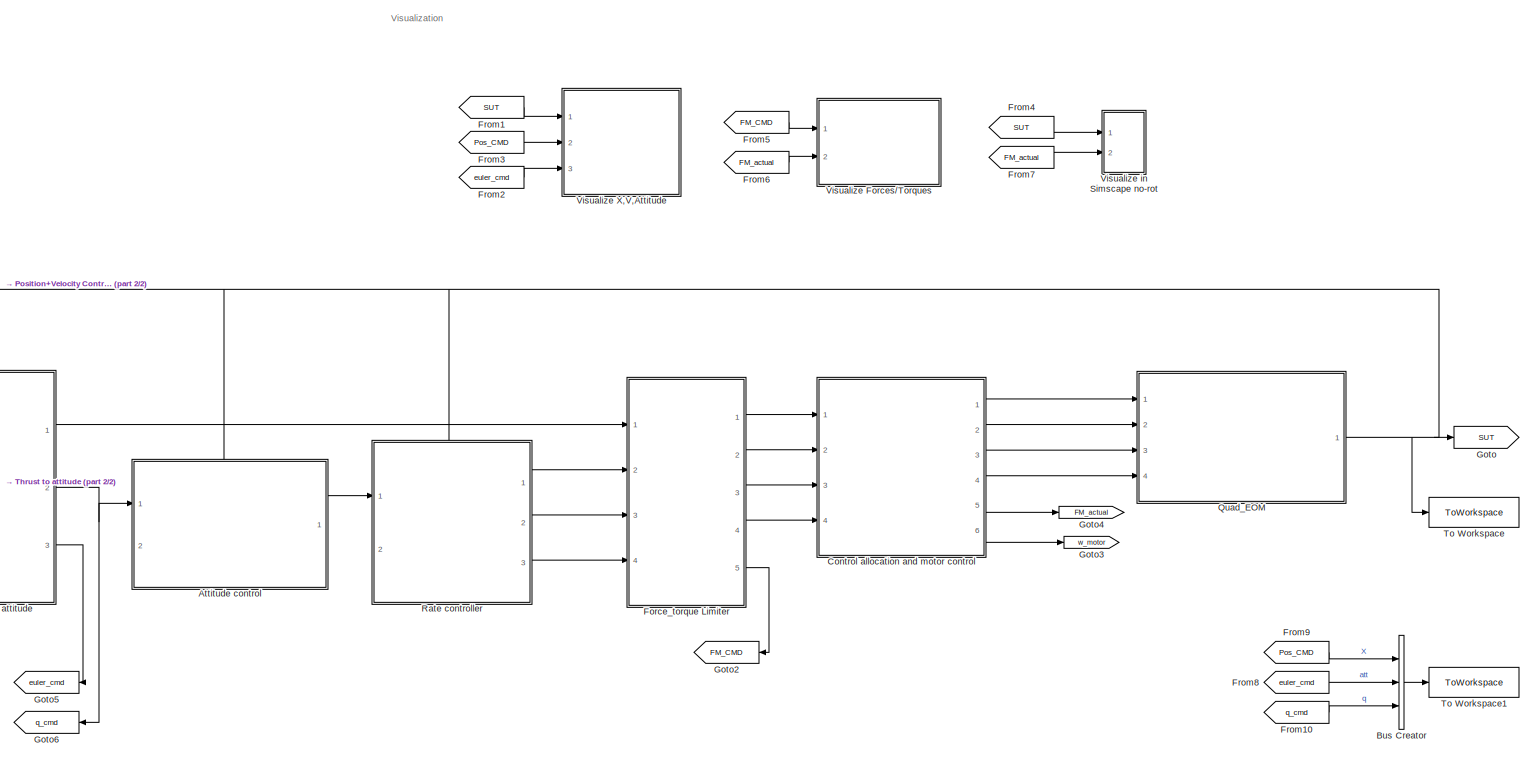
[diagram: root canvas - part 1/2, most of the canvas]
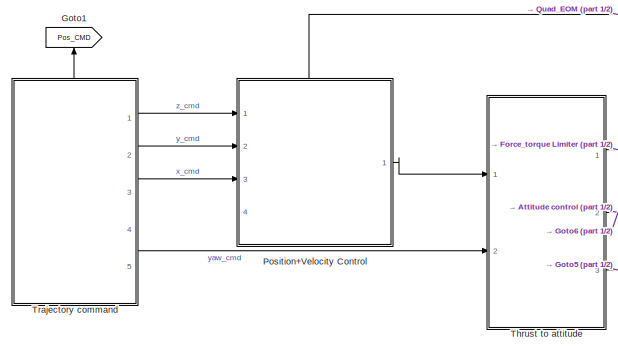
[diagram: root canvas - part 2/2, middle left region]
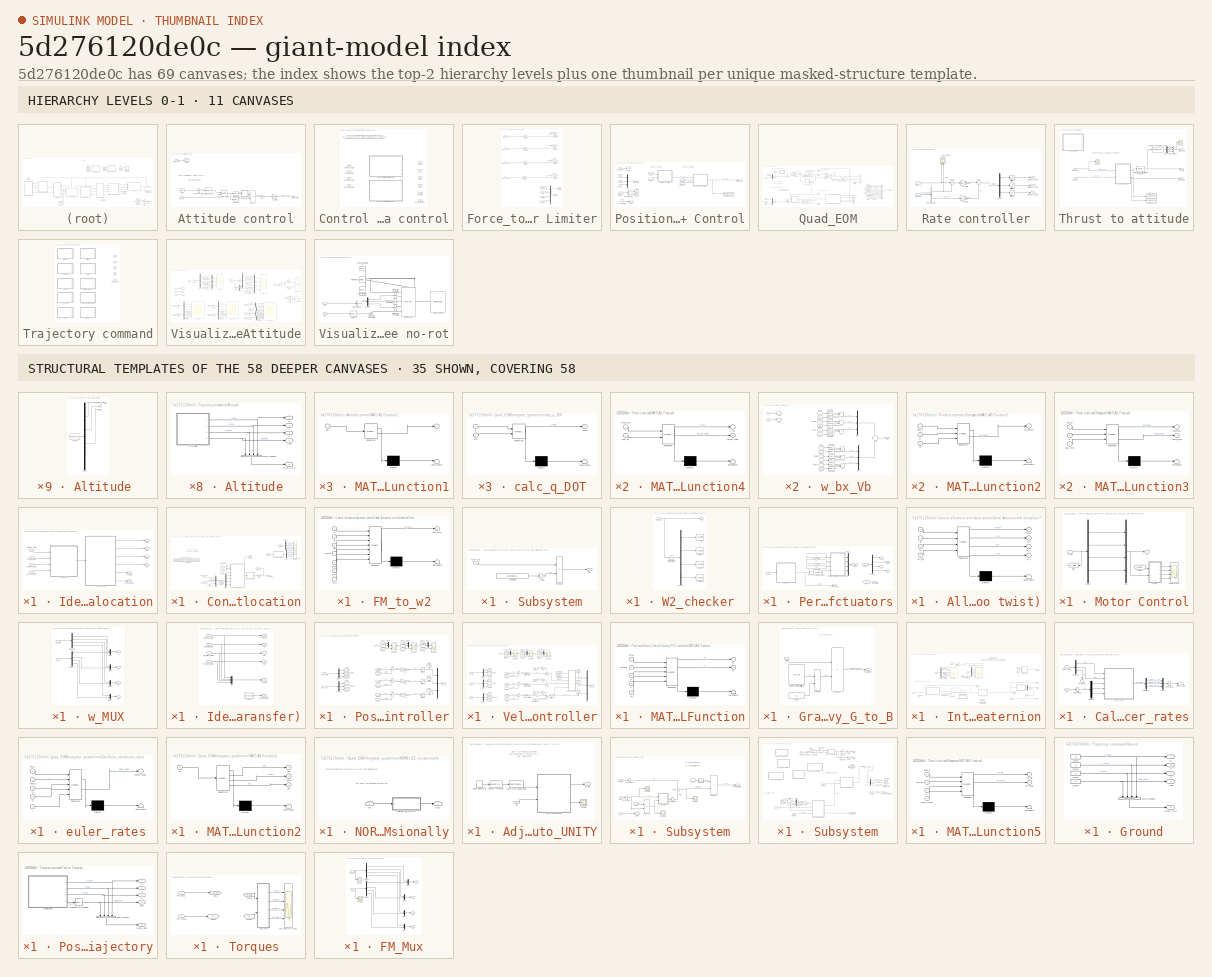
[diagram: thumbnail index - top-2 hierarchy levels (11 canvases) + 35 structural-template representatives of the remaining 58 canvases]
MODEL slx_5d276120de0c
KIND model
CONFIG AbsTol = auto
CONFIG EnableMultiTasking = off
CONFIG FixedStep = auto
CONFIG MaxStep = auto
CONFIG MinStep = auto
CONFIG RelTol = 1e-5
CONFIG SampleTimeConstraint = Unconstrained
CONFIG SolverName = ode23t
CONFIG StartTime = 0.0
CONFIG StopTime = 200
BLOCK [SubSystem] Attitude control
  PortSchema = {"entries":[{"content":{"sides":[{"content":{"connectorIds":["In1"]},"type":"ConnectorPlacement.EquallySpacedRectSide","uuid":"19a574f6-5314-4727-8968-5b1c9712010e"},{"content":{"connectorIds":["Out1"],"side":"RIGHT"},"type":"ConnectorPlacement.EquallySpacedRectSide","uuid":"5cd6813f-6e17-48c1-918b-7c366c6d9cfa"},{"content":{"connectorIds":["In2"],"side":"TOP"},"type":"ConnectorPlacement.EquallySp...<+245ch>
  Ports = [2, 1]
  RequestExecContextInheritance = off
BLOCK [BusSelector] Attitude control/Bus Selector3
  OutputSignals = q
  Ports = [1, 1]
BLOCK [From] Attitude control/From2
  GotoTag = SUT
BLOCK [Goto] Attitude control/Goto
  GotoTag = SUT
BLOCK [Gain] Attitude control/K_attitude
  Gain = Kp_att
BLOCK [SubSystem] Attitude control/MATLAB Function1
  ErrorFcn = Stateflow.Translate.translate
  PermitHierarchicalResolution = ExplicitOnly
  Ports = [1, 1]
  RequestExecContextInheritance = off
  SFBlockType = MATLAB Function
  TreatAsAtomicUnit = on
BLOCK [Demux] Attitude control/MATLAB Function1/ Demux 
  Outputs = 1
  Ports = [1, 1]
BLOCK [S-Function] Attitude control/MATLAB Function1/ SFunction 
  EnableBusSupport = on
  FunctionName = sf_sfun
  PortCounts = [1 2]
  Ports = [1, 2]
  SFcnIsStateOwnerBlock = off
  SFunctionDeploymentMode = off
  Tag = Stateflow S-Function 2
BLOCK [Terminator] Attitude control/MATLAB Function1/ Terminator 
BLOCK [Inport] Attitude control/MATLAB Function1/q0
BLOCK [Outport] Attitude control/MATLAB Function1/y
BLOCK [Product] Attitude control/Product
  Ports = [2, 1]
BLOCK [Reference] Attitude control/Quaternion Inverse  REF=aerolibutil/Quaternion
Inverse
  Ports = [1, 1]
  SourceBlock = aerolibutil/Quaternion\nInverse
  SourceProductBaseCode = AE
  SourceType = Quaternion Inverse
BLOCK [Reference] Attitude control/Quaternion multiply  REF=aerolibutil/Quaternion
Multiplication
  Ports = [2, 1]
  SourceBlock = aerolibutil/Quaternion\nMultiplication
  SourceProductBaseCode = AE
  SourceType = Quaternion Multiplication
BLOCK [Inport] Attitude control/SUT_BUS
  Port = 2
BLOCK [Selector] Attitude control/Selector1
  IndexOptions = Index vector (dialog)
  Indices = 1
  InputPortWidth = 4
  OutputSizes = 1
  Ports = [1, 1]
BLOCK [Selector] Attitude control/Selector2
  IndexOptions = Index vector (dialog)
  Indices = 2:4
  InputPortWidth = 4
  OutputSizes = 1
  Ports = [1, 1]
BLOCK [Gain] Attitude control/k
  Gain = 2
BLOCK [Inport] Attitude control/q_cmd
BLOCK [Outport] Attitude control/rates_cmd
  VectorParamsAs1DForOutWhenUnconnected = off
BLOCK [BusCreator] Bus Creator
  DisplayOption = bar
  InheritFromInputs = on
  Inputs = 3
  Ports = [3, 1]
BLOCK [SubSystem] Control allocation and motor control
  LabelModeActiveChoice = Choice1
  Ports = [4, 6]
  RequestExecContextInheritance = off
  Variant = on
  VariantControlMode = label
BLOCK [SubSystem] Control allocation and motor control/Ideal Actuators with allocation
  Ports = [4, 6]
  RequestExecContextInheritance = off
  VariantControl = Choice2
BLOCK [SubSystem] Control allocation and motor control/Ideal Actuators with allocation/Control allocation
  NameLocation = top
  Ports = [4, 1]
  RequestExecContextInheritance = off
BLOCK [Scope] Control allocation and motor control/Ideal Actuators with allocation/Control allocation/CMD F_and_M and wRPS
  Floating = off
  NumInputPorts = 8
  Ports = [8]
  ScopeSpecificationString = Simulink.scopes.TimeScopeBlockCfg('CurrentConfiguration', extmgr.ConfigurationSet(extmgr.Configuration('Core','General UI',true),extmgr.Configuration('Core','Source UI',true),extmgr.Configuration('Sources','WiredSimulink',true,'DataLoggingVariableName','ScopeData2'),extmgr.Configuration('Visuals','Time Domain',true,'SerializedDisplays',{struct('MinYLimReal','9.095831992','MaxYLimReal','9.095832064...<+6307ch>
BLOCK [Constant] Control allocation and motor control/Ideal Actuators with allocation/Control allocation/Constant
  Value = kt
BLOCK [Constant] Control allocation and motor control/Ideal Actuators with allocation/Control allocation/Constant1
  Value = km
BLOCK [Constant] Control allocation and motor control/Ideal Actuators with allocation/Control allocation/Constant2
  Value = L
BLOCK [Demux] Control allocation and motor control/Ideal Actuators with allocation/Control allocation/Demux1
  Ports = [1, 4]
BLOCK [Demux] Control allocation and motor control/Ideal Actuators with allocation/Control allocation/Demux2
  Ports = [1, 4]
BLOCK [Demux] Control allocation and motor control/Ideal Actuators with allocation/Control allocation/Demux3
  Ports = [1, 4]
BLOCK [SubSystem] Control allocation and motor control/Ideal Actuators with allocation/Control allocation/FM_to_w2
  ErrorFcn = Stateflow.Translate.translate
  PermitHierarchicalResolution = ExplicitOnly
  Ports = [7, 1]
  RequestExecContextInheritance = off
  SFBlockType = MATLAB Function
  TreatAsAtomicUnit = on
BLOCK [Demux] Control allocation and motor control/Ideal Actuators with allocation/Control allocation/FM_to_w2/ Demux 
  Outputs = 1
  Ports = [1, 1]
BLOCK [S-Function] Control allocation and motor control/Ideal Actuators with allocation/Control allocation/FM_to_w2/ SFunction 
  EnableBusSupport = on
  FunctionName = sf_sfun
  PortCounts = [7 2]
  Ports = [7, 2]
  SFcnIsStateOwnerBlock = off
  SFunctionDeploymentMode = off
  Tag = Stateflow S-Function 3
BLOCK [Terminator] Control allocation and motor control/Ideal Actuators with allocation/Control allocation/FM_to_w2/ Terminator 
BLOCK [Inport] Control allocation and motor control/Ideal Actuators with allocation/Control allocation/FM_to_w2/L
BLOCK [Inport] Control allocation and motor control/Ideal Actuators with allocation/Control allocation/FM_to_w2/M_x
  Port = 5
BLOCK [Inport] Control allocation and motor control/Ideal Actuators with allocation/Control allocation/FM_to_w2/M_y
  Port = 6
BLOCK [Inport] Control allocation and motor control/Ideal Actuators with allocation/Control allocation/FM_to_w2/M_z
  Port = 7
BLOCK [Inport] Control allocation and motor control/Ideal Actuators with allocation/Control allocation/FM_to_w2/Thrust
  Port = 4
BLOCK [Inport] Control allocation and motor control/Ideal Actuators with allocation/Control allocation/FM_to_w2/km
  Port = 3
BLOCK [Inport] Control allocation and motor control/Ideal Actuators with allocation/Control allocation/FM_to_w2/kt
  Port = 2
BLOCK [Outport] Control allocation and motor control/Ideal Actuators with allocation/Control allocation/FM_to_w2/w2_cmd
  VectorParamsAs1DForOutWhenUnconnected = off
BLOCK [From] Control allocation and motor control/Ideal Actuators with allocation/Control allocation/From1
  GotoTag = FM_CMD
BLOCK [From] Control allocation and motor control/Ideal Actuators with allocation/Control allocation/From2
  GotoTag = w_CMD
BLOCK [From] Control allocation and motor control/Ideal Actuators with allocation/Control allocation/From3
  GotoTag = FM_CMD
BLOCK [Goto] Control allocation and motor control/Ideal Actuators with allocation/Control allocation/Goto
  GotoTag = FM_CMD
BLOCK [Goto] Control allocation and motor control/Ideal Actuators with allocation/Control allocation/Goto1
  GotoTag = w_CMD
  NameLocation = top
BLOCK [Mux] Control allocation and motor control/Ideal Actuators with allocation/Control allocation/Mux
  DisplayOption = bar
  Ports = [4, 1]
BLOCK [Scope] Control allocation and motor control/Ideal Actuators with allocation/Control allocation/Scope
  Floating = off
  NumInputPorts = 1
  Ports = [1]
  ScopeSpecificationString = Simulink.scopes.TimeScopeBlockCfg('CurrentConfiguration', extmgr.ConfigurationSet(extmgr.Configuration('Core','General UI',true),extmgr.Configuration('Core','Source UI',true),extmgr.Configuration('Sources','WiredSimulink',true,'DataLoggingVariableName','ScopeData4'),extmgr.Configuration('Visuals','Time Domain',true,'SerializedDisplays',{struct('MinYLimReal','-60714.54586','MaxYLimReal','546430.912...<+1604ch>
BLOCK [Sqrt] Control allocation and motor control/Ideal Actuators with allocation/Control allocation/Sqrt
BLOCK [SubSystem] Control allocation and motor control/Ideal Actuators with allocation/Control allocation/Subsystem
  Ports = [1, 1]
  RequestExecContextInheritance = off
BLOCK [Constant] Control allocation and motor control/Ideal Actuators with allocation/Control allocation/Subsystem/Constant3
  Value = 3.141592653589793
BLOCK [Gain] Control allocation and motor control/Ideal Actuators with allocation/Control allocation/Subsystem/Gain1
  Gain = 2
BLOCK [Product] Control allocation and motor control/Ideal Actuators with allocation/Control allocation/Subsystem/Product
  Inputs = */
  Ports = [2, 1]
BLOCK [Outport] Control allocation and motor control/Ideal Actuators with allocation/Control allocation/Subsystem/RPS
BLOCK [Inport] Control allocation and motor control/Ideal Actuators with allocation/Control allocation/Subsystem/w_per_sec
BLOCK [Inport] Control allocation and motor control/Ideal Actuators with allocation/Control allocation/THRUST_CMD
BLOCK [Inport] Control allocation and motor control/Ideal Actuators with allocation/Control allocation/TQ_Pitch_CMD
  Port = 3
BLOCK [Inport] Control allocation and motor control/Ideal Actuators with allocation/Control allocation/TQ_Roll_CMD
  Port = 2
BLOCK [Inport] Control allocation and motor control/Ideal Actuators with allocation/Control allocation/TQ_Yaw_CMD
  Port = 4
BLOCK [SubSystem] Control allocation and motor control/Ideal Actuators with allocation/Control allocation/W2_checker
  Ports = [1, 1]
  RequestExecContextInheritance = off
BLOCK [Assertion] Control allocation and motor control/Ideal Actuators with allocation/Control allocation/W2_checker/Assertion
BLOCK [Assertion] Control allocation and motor control/Ideal Actuators with allocation/Control allocation/W2_checker/Assertion1
BLOCK [Assertion] Control allocation and motor control/Ideal Actuators with allocation/Control allocation/W2_checker/Assertion2
BLOCK [Assertion] Control allocation and motor control/Ideal Actuators with allocation/Control allocation/W2_checker/Assertion3
BLOCK [Reference] Control allocation and motor control/Ideal Actuators with allocation/Control allocation/W2_checker/Compare To Constant  REF=simulink/Logic and Bit
Operations/Compare
To Constant
  Ports = [1, 1]
  SourceBlock = simulink/Logic and Bit\nOperations/Compare\nTo Constant
  SourceProductBaseCode = SL
  SourceType = Compare To Constant
BLOCK [Demux] Control allocation and motor control/Ideal Actuators with allocation/Control allocation/W2_checker/Demux
  Ports = [1, 4]
BLOCK [Outport] Control allocation and motor control/Ideal Actuators with allocation/Control allocation/W2_checker/w2
  VectorParamsAs1DForOutWhenUnconnected = off
BLOCK [Inport] Control allocation and motor control/Ideal Actuators with allocation/Control allocation/W2_checker/w2_CMD
BLOCK [Outport] Control allocation and motor control/Ideal Actuators with allocation/Control allocation/w_command
  VectorParamsAs1DForOutWhenUnconnected = off
BLOCK [Outport] Control allocation and motor control/Ideal Actuators with allocation/Mx
  Port = 2
BLOCK [Outport] Control allocation and motor control/Ideal Actuators with allocation/My
  Port = 3
BLOCK [Outport] Control allocation and motor control/Ideal Actuators with allocation/Mz
  Port = 4
BLOCK [SubSystem] Control allocation and motor control/Ideal Actuators with allocation/Perfect actuators
  Ports = [1, 6]
  RequestExecContextInheritance = off
  VariantControl = Choice2
BLOCK [SubSystem] Control allocation and motor control/Ideal Actuators with allocation/Perfect actuators/Allocation matrix (motor speed to twist)
  ErrorFcn = Stateflow.Translate.translate
  NameLocation = top
  PermitHierarchicalResolution = ExplicitOnly
  Ports = [4, 4]
  RequestExecContextInheritance = off
  SFBlockType = MATLAB Function
  TreatAsAtomicUnit = on
BLOCK [Demux] Control allocation and motor control/Ideal Actuators with allocation/Perfect actuators/Allocation matrix (motor speed to twist)/ Demux 
  Outputs = 1
  Ports = [1, 1]
BLOCK [S-Function] Control allocation and motor control/Ideal Actuators with allocation/Perfect actuators/Allocation matrix (motor speed to twist)/ SFunction 
  EnableBusSupport = on
  FunctionName = sf_sfun
  PortCounts = [4 5]
  Ports = [4, 5]
  SFcnIsStateOwnerBlock = off
  SFunctionDeploymentMode = off
  Tag = Stateflow S-Function 12
BLOCK [Terminator] Control allocation and motor control/Ideal Actuators with allocation/Perfect actuators/Allocation matrix (motor speed to twist)/ Terminator 
BLOCK [Inport] Control allocation and motor control/Ideal Actuators with allocation/Perfect actuators/Allocation matrix (motor speed to twist)/L
BLOCK [Outport] Control allocation and motor control/Ideal Actuators with allocation/Perfect actuators/Allocation matrix (motor speed to twist)/M_x
  Port = 2
  VectorParamsAs1DForOutWhenUnconnected = off
BLOCK [Outport] Control allocation and motor control/Ideal Actuators with allocation/Perfect actuators/Allocation matrix (motor speed to twist)/M_y
  Port = 3
  VectorParamsAs1DForOutWhenUnconnected = off
BLOCK [Outport] Control allocation and motor control/Ideal Actuators with allocation/Perfect actuators/Allocation matrix (motor speed to twist)/M_z
  Port = 4
  VectorParamsAs1DForOutWhenUnconnected = off
BLOCK [Outport] Control allocation and motor control/Ideal Actuators with allocation/Perfect actuators/Allocation matrix (motor speed to twist)/Thrust
  VectorParamsAs1DForOutWhenUnconnected = off
BLOCK [Inport] Control allocation and motor control/Ideal Actuators with allocation/Perfect actuators/Allocation matrix (motor speed to twist)/km
  Port = 3
BLOCK [Inport] Control allocation and motor control/Ideal Actuators with allocation/Perfect actuators/Allocation matrix (motor speed to twist)/kt
  Port = 2
BLOCK [Inport] Control allocation and motor control/Ideal Actuators with allocation/Perfect actuators/Allocation matrix (motor speed to twist)/w2_col
  Port = 4
BLOCK [Constant] Control allocation and motor control/Ideal Actuators with allocation/Perfect actuators/Constant3
  Value = kt
BLOCK [Constant] Control allocation and motor control/Ideal Actuators with allocation/Perfect actuators/Constant4
  Value = km
BLOCK [Constant] Control allocation and motor control/Ideal Actuators with allocation/Perfect actuators/Constant5
  Value = L
BLOCK [Demux] Control allocation and motor control/Ideal Actuators with allocation/Perfect actuators/Demux
  Ports = [1, 4]
BLOCK [From] Control allocation and motor control/Ideal Actuators with allocation/Perfect actuators/From4
  GotoTag = FM
BLOCK [From] Control allocation and motor control/Ideal Actuators with allocation/Perfect actuators/From5
  GotoTag = FM
BLOCK [Goto] Control allocation and motor control/Ideal Actuators with allocation/Perfect actuators/Goto2
  GotoTag = FM
BLOCK [Math] Control allocation and motor control/Ideal Actuators with allocation/Perfect actuators/Math Function1
  Operator = square
  Ports = [1, 1]
  SignedPower = on
BLOCK [SubSystem] Control allocation and motor control/Ideal Actuators with allocation/Perfect actuators/Motor Control
  Ports = [1, 1]
  RequestExecContextInheritance = off
BLOCK [Demux] Control allocation and motor control/Ideal Actuators with allocation/Perfect actuators/Motor Control/Demux
  Ports = [1, 4]
BLOCK [From] Control allocation and motor control/Ideal Actuators with allocation/Perfect actuators/Motor Control/From1
  GotoTag = W_CMD
BLOCK [Goto] Control allocation and motor control/Ideal Actuators with allocation/Perfect actuators/Motor Control/Goto
  GotoTag = W_CMD
  NameLocation = top
BLOCK [Mux] Control allocation and motor control/Ideal Actuators with allocation/Perfect actuators/Motor Control/Mux
  DisplayOption = bar
  Ports = [4, 1]
BLOCK [Outport] Control allocation and motor control/Ideal Actuators with allocation/Perfect actuators/Motor Control/w
  VectorParamsAs1DForOutWhenUnconnected = off
BLOCK [Scope] Control allocation and motor control/Ideal Actuators with allocation/Perfect actuators/Motor Control/w CMD vs Actual
  Floating = off
  NameLocation = top
  NumInputPorts = 4
  Ports = [4]
  ScopeSpecificationString = Simulink.scopes.TimeScopeBlockCfg('CurrentConfiguration', extmgr.ConfigurationSet(extmgr.Configuration('Core','General UI',true),extmgr.Configuration('Core','Source UI',true),extmgr.Configuration('Sources','WiredSimulink',true,'DataLoggingVariableName','ScopeData3'),extmgr.Configuration('Visuals','Time Domain',true,'SerializedDisplays',{struct('MinYLimReal','-72.71853','MaxYLimReal','654.46676','Y...<+3524ch>
BLOCK [Inport] Control allocation and motor control/Ideal Actuators with allocation/Perfect actuators/Motor Control/w_CMD
BLOCK [SubSystem] Control allocation and motor control/Ideal Actuators with allocation/Perfect actuators/Motor Control/w_MUX
  NameLocation = top
  Ports = [2, 4]
  RequestExecContextInheritance = off
BLOCK [Demux] Control allocation and motor control/Ideal Actuators with allocation/Perfect actuators/Motor Control/w_MUX/Demux1
  Ports = [1, 4]
BLOCK [Demux] Control allocation and motor control/Ideal Actuators with allocation/Perfect actuators/Motor Control/w_MUX/Demux2
  Ports = [1, 4]
BLOCK [Mux] Control allocation and motor control/Ideal Actuators with allocation/Perfect actuators/Motor Control/w_MUX/Mux
  DisplayOption = bar
  Inputs = 2
  Ports = [2, 1]
BLOCK [Mux] Control allocation and motor control/Ideal Actuators with allocation/Perfect actuators/Motor Control/w_MUX/Mux1
  DisplayOption = bar
  Inputs = 2
  Ports = [2, 1]
BLOCK [Mux] Control allocation and motor control/Ideal Actuators with allocation/Perfect actuators/Motor Control/w_MUX/Mux2
  DisplayOption = bar
  Inputs = 2
  Ports = [2, 1]
BLOCK [Mux] Control allocation and motor control/Ideal Actuators with allocation/Perfect actuators/Motor Control/w_MUX/Mux3
  DisplayOption = bar
  Inputs = 2
  Ports = [2, 1]
BLOCK [Inport] Control allocation and motor control/Ideal Actuators with allocation/Perfect actuators/Motor Control/w_MUX/W
  Port = 2
BLOCK [Inport] Control allocation and motor control/Ideal Actuators with allocation/Perfect actuators/Motor Control/w_MUX/W_CMD
BLOCK [Outport] Control allocation and motor control/Ideal Actuators with allocation/Perfect actuators/Motor Control/w_MUX/w1
  VectorParamsAs1DForOutWhenUnconnected = off
BLOCK [Outport] Control allocation and motor control/Ideal Actuators with allocation/Perfect actuators/Motor Control/w_MUX/w2
  Port = 2
  VectorParamsAs1DForOutWhenUnconnected = off
BLOCK [Outport] Control allocation and motor control/Ideal Actuators with allocation/Perfect actuators/Motor Control/w_MUX/w3
  Port = 3
  VectorParamsAs1DForOutWhenUnconnected = off
BLOCK [Outport] Control allocation and motor control/Ideal Actuators with allocation/Perfect actuators/Motor Control/w_MUX/w4
  Port = 4
  VectorParamsAs1DForOutWhenUnconnected = off
BLOCK [Mux] Control allocation and motor control/Ideal Actuators with allocation/Perfect actuators/Mux1
  DisplayOption = bar
  Ports = [4, 1]
BLOCK [Outport] Control allocation and motor control/Ideal Actuators with allocation/Perfect actuators/Mx
  Port = 2
  VectorParamsAs1DForOutWhenUnconnected = off
BLOCK [Outport] Control allocation and motor control/Ideal Actuators with allocation/Perfect actuators/My
  Port = 3
  VectorParamsAs1DForOutWhenUnconnected = off
BLOCK [Outport] Control allocation and motor control/Ideal Actuators with allocation/Perfect actuators/Mz
  Port = 4
  VectorParamsAs1DForOutWhenUnconnected = off
BLOCK [Reshape] Control allocation and motor control/Ideal Actuators with allocation/Perfect actuators/Reshape1
  OutputDimensionality = Column vector (2-D)
  Ports = [1, 1]
BLOCK [Outport] Control allocation and motor control/Ideal Actuators with allocation/Perfect actuators/T_actual
  Port = 5
  VectorParamsAs1DForOutWhenUnconnected = off
BLOCK [Outport] Control allocation and motor control/Ideal Actuators with allocation/Perfect actuators/Thrust
  NameLocation = top
  VectorParamsAs1DForOutWhenUnconnected = off
BLOCK [Inport] Control allocation and motor control/Ideal Actuators with allocation/Perfect actuators/w_cmd
BLOCK [Outport] Control allocation and motor control/Ideal Actuators with allocation/Perfect actuators/w_mot_actual
  Port = 6
  VectorParamsAs1DForOutWhenUnconnected = off
BLOCK [Inport] Control allocation and motor control/Ideal Actuators with allocation/THRUST_CMD
BLOCK [Inport] Control allocation and motor control/Ideal Actuators with allocation/TQ_Pitch_CMD
  Port = 3
BLOCK [Inport] Control allocation and motor control/Ideal Actuators with allocation/TQ_Roll_CMD
  Port = 2
BLOCK [Inport] Control allocation and motor control/Ideal Actuators with allocation/TQ_Yaw_CMD
  Port = 4
BLOCK [Outport] Control allocation and motor control/Ideal Actuators with allocation/T_actual
  Port = 5
BLOCK [Outport] Control allocation and motor control/Ideal Actuators with allocation/Thrust
BLOCK [Outport] Control allocation and motor control/Ideal Actuators with allocation/w_mot_actual
  Port = 6
BLOCK [SubSystem] Control allocation and motor control/Ideal Actuattion (direct transfer)
  Ports = [4, 6]
  RequestExecContextInheritance = off
  VariantControl = Choice1
BLOCK [Mux] Control allocation and motor control/Ideal Actuattion (direct transfer)/Mux
  DisplayOption = bar
  Ports = [4, 1]
BLOCK [Outport] Control allocation and motor control/Ideal Actuattion (direct transfer)/Mx
  Port = 2
BLOCK [Outport] Control allocation and motor control/Ideal Actuattion (direct transfer)/My
  Port = 3
BLOCK [Outport] Control allocation and motor control/Ideal Actuattion (direct transfer)/Mz
  Port = 4
BLOCK [Inport] Control allocation and motor control/Ideal Actuattion (direct transfer)/THRUST_CMD
BLOCK [Inport] Control allocation and motor control/Ideal Actuattion (direct transfer)/TQ_Pitch_CMD
  Port = 3
BLOCK [Inport] Control allocation and motor control/Ideal Actuattion (direct transfer)/TQ_Roll_CMD
  Port = 2
BLOCK [Inport] Control allocation and motor control/Ideal Actuattion (direct transfer)/TQ_Yaw_CMD
  Port = 4
BLOCK [Outport] Control allocation and motor control/Ideal Actuattion (direct transfer)/T_actual
  Port = 5
BLOCK [Outport] Control allocation and motor control/Ideal Actuattion (direct transfer)/Thrust
BLOCK [Constant] Control allocation and motor control/Ideal Actuattion (direct transfer)/Zero
  OutDataTypeStr = Inherit: Inherit via back propagation
  Value = [0;0;0;0]
BLOCK [Outport] Control allocation and motor control/Ideal Actuattion (direct transfer)/w_mot_actual
  Port = 6
BLOCK [Outport] Control allocation and motor control/Mx
  Port = 2
BLOCK [Outport] Control allocation and motor control/My
  Port = 3
BLOCK [Outport] Control allocation and motor control/Mz
  Port = 4
BLOCK [Inport] Control allocation and motor control/THRUST_CMD
BLOCK [Inport] Control allocation and motor control/TQ_Pitch_CMD
  Port = 3
BLOCK [Inport] Control allocation and motor control/TQ_Roll_CMD
  Port = 2
BLOCK [Inport] Control allocation and motor control/TQ_Yaw_CMD
  Port = 4
BLOCK [Outport] Control allocation and motor control/T_actual
  Port = 5
BLOCK [Outport] Control allocation and motor control/Thrust
BLOCK [Outport] Control allocation and motor control/w_mot_actual
  Port = 6
BLOCK [SubSystem] Force_torque Limiter
  NameLocation = top
  Ports = [4, 5]
  RequestExecContextInheritance = off
BLOCK [Outport] Force_torque Limiter/CMD_VEC
  Port = 5
  VectorParamsAs1DForOutWhenUnconnected = off
BLOCK [From] Force_torque Limiter/From
  GotoTag = TQ_Roll_X
BLOCK [From] Force_torque Limiter/From1
  GotoTag = THRUST
BLOCK [From] Force_torque Limiter/From2
  GotoTag = TQ_Pitch_Y
BLOCK [From] Force_torque Limiter/From3
  GotoTag = TQ_Yaw_Z
BLOCK [Goto] Force_torque Limiter/Goto
  GotoTag = THRUST
BLOCK [Goto] Force_torque Limiter/Goto1
  GotoTag = TQ_Roll_X
BLOCK [Goto] Force_torque Limiter/Goto2
  GotoTag = TQ_Pitch_Y
BLOCK [Goto] Force_torque Limiter/Goto3
  GotoTag = TQ_Yaw_Z
BLOCK [Mux] Force_torque Limiter/Mux
  DisplayOption = bar
  Ports = [4, 1]
BLOCK [Saturate] Force_torque Limiter/Saturation
  AttributesFormatString = MAX =    %<UpperLimit>\nMIN = %<LowerLimit>
  LowerLimit = -thrust_max
  UpperLimit = thrust_max
BLOCK [Saturate] Force_torque Limiter/Saturation1
  AttributesFormatString = MAX =    %<UpperLimit>\nMIN = %<LowerLimit>
  LowerLimit = -2*TQ_max_per_motor
  UpperLimit = 2*TQ_max_per_motor
BLOCK [Saturate] Force_torque Limiter/Saturation2
  AttributesFormatString = MAX =    %<UpperLimit>\nMIN = %<LowerLimit>
  LowerLimit = -thrust_max_per_motor *L
  UpperLimit = thrust_max_per_motor*L
BLOCK [Saturate] Force_torque Limiter/Saturation3
  AttributesFormatString = MAX =    %<UpperLimit>\nMIN = %<LowerLimit>
  LowerLimit = -thrust_max_per_motor *L
  UpperLimit = thrust_max_per_motor*L
BLOCK [Scope] Force_torque Limiter/Scope
  Floating = off
  NumInputPorts = 1
  Ports = [1]
  ScopeSpecificationString = Simulink.scopes.TimeScopeBlockCfg('CurrentConfiguration', extmgr.ConfigurationSet(extmgr.Configuration('Core','General UI',true),extmgr.Configuration('Core','Source UI',true),extmgr.Configuration('Sources','WiredSimulink',true,'DataLoggingVariableName','ScopeData3'),extmgr.Configuration('Visuals','Time Domain',true,'SerializedDisplays',{struct('MinYLimReal','-10.23281','MaxYLimReal','1.13698','YLa...<+1415ch>
BLOCK [Outport] Force_torque Limiter/thrust
  VectorParamsAs1DForOutWhenUnconnected = off
BLOCK [Inport] Force_torque Limiter/thrust_cmd
BLOCK [Outport] Force_torque Limiter/torque_x
  Port = 2
  VectorParamsAs1DForOutWhenUnconnected = off
BLOCK [Inport] Force_torque Limiter/torque_x_cmd
  Port = 2
BLOCK [Outport] Force_torque Limiter/torque_y
  Port = 3
  VectorParamsAs1DForOutWhenUnconnected = off
BLOCK [Inport] Force_torque Limiter/torque_y_cmd
  Port = 3
BLOCK [Outport] Force_torque Limiter/torque_z
  Port = 4
  VectorParamsAs1DForOutWhenUnconnected = off
BLOCK [Inport] Force_torque Limiter/torque_z_cmd
  Port = 4
BLOCK [From] From1
  GotoTag = SUT
BLOCK [From] From10
  GotoTag = q_cmd
BLOCK [From] From2
  GotoTag = euler_cmd
BLOCK [From] From3
  GotoTag = Pos_CMD
BLOCK [From] From4
  Commented = on
  GotoTag = SUT
BLOCK [From] From5
  GotoTag = FM_CMD
BLOCK [From] From6
  GotoTag = FM_actual
BLOCK [From] From7
  Commented = on
  GotoTag = FM_actual
BLOCK [From] From8
  GotoTag = euler_cmd
BLOCK [From] From9
  GotoTag = Pos_CMD
BLOCK [Goto] Goto
  GotoTag = SUT
BLOCK [Goto] Goto1
  GotoTag = Pos_CMD
  NameLocation = right
BLOCK [Goto] Goto2
  GotoTag = FM_CMD
  NameLocation = top
BLOCK [Goto] Goto3
  GotoTag = w_motor
BLOCK [Goto] Goto4
  GotoTag = FM_actual
BLOCK [Goto] Goto5
  GotoTag = euler_cmd
  NameLocation = top
BLOCK [Goto] Goto6
  GotoTag = q_cmd
  NameLocation = top
BLOCK [SubSystem] Position+Velocity Control
  PortSchema = {"entries":[{"content":{"sides":[{"content":{"connectorIds":["In1","In2","In3"]},"type":"ConnectorPlacement.EquallySpacedRectSide","uuid":"cfe37ea9-b8e2-443a-9d65-596f0fda79c9"},{"content":{"connectorIds":["Out1"],"side":"RIGHT"},"type":"ConnectorPlacement.EquallySpacedRectSide","uuid":"f39f64e1-4b16-444a-b7d2-95ecb1b2a6fa"},{"content":{"connectorIds":["In4"],"side":"TOP"},"type":"ConnectorPlaceme...<+257ch>
  Ports = [4, 1]
  RequestExecContextInheritance = off
BLOCK [BusSelector] Position+Velocity Control/Bus Selector3
  OutputSignals = Xe,Ve
  Ports = [1, 2]
BLOCK [From] Position+Velocity Control/From12
  GotoTag = acc_sp
BLOCK [From] Position+Velocity Control/From2
  GotoTag = SUT
BLOCK [From] Position+Velocity Control/From3
  GotoTag = V
BLOCK [From] Position+Velocity Control/From7
  GotoTag = P_sp
BLOCK [From] Position+Velocity Control/From8
  GotoTag = P
BLOCK [Goto] Position+Velocity Control/Goto
  GotoTag = SUT
BLOCK [Goto] Position+Velocity Control/Goto11
  GotoTag = V
BLOCK [Goto] Position+Velocity Control/Goto12
  GotoTag = P
BLOCK [Goto] Position+Velocity Control/Goto13
  GotoTag = P_sp
BLOCK [Goto] Position+Velocity Control/Goto16
  GotoTag = acc_sp
BLOCK [Mux] Position+Velocity Control/Mux
  DisplayOption = bar
  Inputs = 3
  Ports = [3, 1]
BLOCK [SubSystem] Position+Velocity Control/Position P Controller
  Ports = [2, 1]
  RequestExecContextInheritance = off
BLOCK [Demux] Position+Velocity Control/Position P Controller/Demux
  Outputs = 3
  Ports = [1, 3]
BLOCK [Demux] Position+Velocity Control/Position P Controller/Demux1
  Outputs = 3
  Ports = [1, 3]
BLOCK [From] Position+Velocity Control/Position P Controller/From1
  GotoTag = x
BLOCK [From] Position+Velocity Control/Position P Controller/From10
  GotoTag = y_cmd
BLOCK [From] Position+Velocity Control/Position P Controller/From11
  GotoTag = z_cmd
BLOCK [From] Position+Velocity Control/Position P Controller/From12
  GotoTag = z
BLOCK [From] Position+Velocity Control/Position P Controller/From13
  GotoTag = x
BLOCK [From] Position+Velocity Control/Position P Controller/From14
  GotoTag = vx_out
BLOCK [From] Position+Velocity Control/Position P Controller/From15
  GotoTag = vz_out
BLOCK [From] Position+Velocity Control/Position P Controller/From2
  GotoTag = x_cmd
BLOCK [From] Position+Velocity Control/Position P Controller/From3
  GotoTag = x_cmd
BLOCK [From] Position+Velocity Control/Position P Controller/From4
  GotoTag = z
BLOCK [From] Position+Velocity Control/Position P Controller/From5
  GotoTag = z_cmd
BLOCK [From] Position+Velocity Control/Position P Controller/From6
  GotoTag = y
BLOCK [From] Position+Velocity Control/Position P Controller/From7
  GotoTag = y_cmd
BLOCK [From] Position+Velocity Control/Position P Controller/From8
  GotoTag = y
BLOCK [From] Position+Velocity Control/Position P Controller/From9
  GotoTag = vy_out
BLOCK [Goto] Position+Velocity Control/Position P Controller/Goto
  GotoTag = x_cmd
BLOCK [Goto] Position+Velocity Control/Position P Controller/Goto1
  GotoTag = y_cmd
BLOCK [Goto] Position+Velocity Control/Position P Controller/Goto2
  GotoTag = z_cmd
BLOCK [Goto] Position+Velocity Control/Position P Controller/Goto3
  GotoTag = x
BLOCK [Goto] Position+Velocity Control/Position P Controller/Goto4
  GotoTag = y
BLOCK [Goto] Position+Velocity Control/Position P Controller/Goto5
  GotoTag = z
BLOCK [Goto] Position+Velocity Control/Position P Controller/Goto6
  GotoTag = vx_out
  NameLocation = right
BLOCK [Goto] Position+Velocity Control/Position P Controller/Goto7
  GotoTag = vy_out
  NameLocation = right
BLOCK [Goto] Position+Velocity Control/Position P Controller/Goto8
  GotoTag = vz_out
  NameLocation = right
BLOCK [Gain] Position+Velocity Control/Position P Controller/Kp_x
  Gain = Kp_pos(1)
BLOCK [Gain] Position+Velocity Control/Position P Controller/Kp_y
  Gain = Kp_pos(2)
BLOCK [Gain] Position+Velocity Control/Position P Controller/Kp_z
  Gain = Kp_pos(3)
BLOCK [Mux] Position+Velocity Control/Position P Controller/Mux
  DisplayOption = bar
  Inputs = 3
  Ports = [3, 1]
BLOCK [Mux] Position+Velocity Control/Position P Controller/Mux1
  DisplayOption = bar
  Inputs = 2
  Ports = [2, 1]
BLOCK [Mux] Position+Velocity Control/Position P Controller/Mux2
  DisplayOption = bar
  Inputs = 2
  Ports = [2, 1]
BLOCK [Mux] Position+Velocity Control/Position P Controller/Mux3
  DisplayOption = bar
  Inputs = 2
  Ports = [2, 1]
BLOCK [Scope] Position+Velocity Control/Position P Controller/Scope1
  Floating = off
  NumInputPorts = 2
  Ports = [2]
  ScopeSpecificationString = Simulink.scopes.TimeScopeBlockCfg('CurrentConfiguration', extmgr.ConfigurationSet(extmgr.Configuration('Core','General UI',true),extmgr.Configuration('Core','Source UI',true),extmgr.Configuration('Sources','WiredSimulink',true,'DataLoggingVariableName','ScopeData7'),extmgr.Configuration('Visuals','Time Domain',true,'SerializedDisplays',{struct('MinYLimReal','-0.13476','MaxYLimReal','1.12608','YLab...<+2132ch>
BLOCK [Scope] Position+Velocity Control/Position P Controller/Scope2
  Floating = off
  NumInputPorts = 2
  Ports = [2]
  ScopeSpecificationString = Simulink.scopes.TimeScopeBlockCfg('CurrentConfiguration', extmgr.ConfigurationSet(extmgr.Configuration('Core','General UI',true),extmgr.Configuration('Core','Source UI',true),extmgr.Configuration('Sources','WiredSimulink',true,'DataLoggingVariableName','ScopeData2'),extmgr.Configuration('Visuals','Time Domain',true,'SerializedDisplays',{struct('MinYLimReal','-0.00000000000000003','MaxYLimReal','0....<+2204ch>
BLOCK [Scope] Position+Velocity Control/Position P Controller/Scope3
  Floating = off
  NumInputPorts = 2
  Ports = [2]
  ScopeSpecificationString = Simulink.scopes.TimeScopeBlockCfg('CurrentConfiguration', extmgr.ConfigurationSet(extmgr.Configuration('Core','General UI',true),extmgr.Configuration('Core','Source UI',true),extmgr.Configuration('Sources','WiredSimulink',true,'DataLoggingVariableName','ScopeData3'),extmgr.Configuration('Visuals','Time Domain',true,'SerializedDisplays',{struct('MinYLimReal','-0.01078','MaxYLimReal','0.00173','YLab...<+2132ch>
BLOCK [Sum] Position+Velocity Control/Position P Controller/Sum
  Inputs = |+-
  Ports = [2, 1]
BLOCK [Sum] Position+Velocity Control/Position P Controller/Sum1
  Inputs = |+-
  Ports = [2, 1]
BLOCK [Sum] Position+Velocity Control/Position P Controller/Sum3
  Inputs = |+-
  Ports = [2, 1]
BLOCK [Outport] Position+Velocity Control/Position P Controller/V_sp
BLOCK [Saturate] Position+Velocity Control/Position P Controller/limit vel x
  LowerLimit = -vel_xy_max
  UpperLimit = vel_xy_max
BLOCK [Saturate] Position+Velocity Control/Position P Controller/limit vel y
  LowerLimit = -vel_xy_max
  UpperLimit = vel_xy_max
BLOCK [Saturate] Position+Velocity Control/Position P Controller/limit vel z
  LowerLimit = -vel_z_max
  UpperLimit = vel_z_max
BLOCK [Inport] Position+Velocity Control/Position P Controller/pos_cmd
BLOCK [Inport] Position+Velocity Control/Position P Controller/pos_cur
  Port = 2
BLOCK [Inport] Position+Velocity Control/SUT_BUS
  Port = 4
BLOCK [ToWorkspace] Position+Velocity Control/To Workspace2
  FixptAsFi = on
  MaxDataPoints = inf
  Ports = [1]
  SampleTime = -1
  SaveFormat = Timeseries
  VariableName = thrust_sp
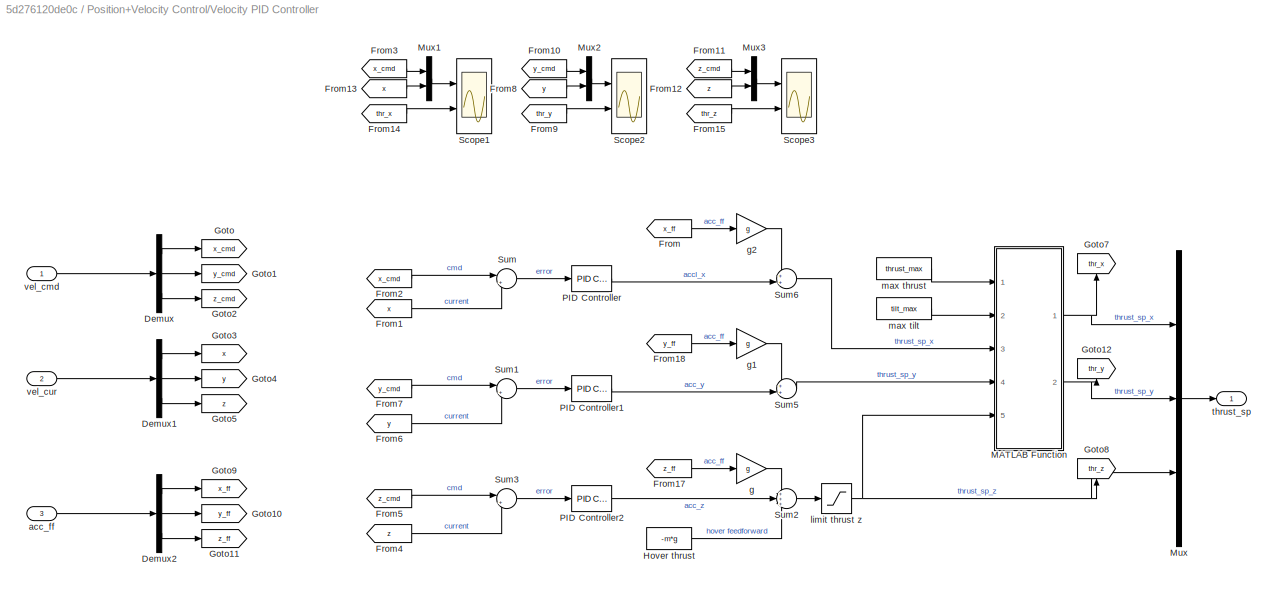
BLOCK [SubSystem] Position+Velocity Control/Velocity PID Controller
  Ports = [3, 1]
  RequestExecContextInheritance = off
BLOCK [Demux] Position+Velocity Control/Velocity PID Controller/Demux
  Outputs = 3
  Ports = [1, 3]
BLOCK [Demux] Position+Velocity Control/Velocity PID Controller/Demux1
  Outputs = 3
  Ports = [1, 3]
BLOCK [Demux] Position+Velocity Control/Velocity PID Controller/Demux2
  Outputs = 3
  Ports = [1, 3]
BLOCK [From] Position+Velocity Control/Velocity PID Controller/From
  GotoTag = x_ff
BLOCK [From] Position+Velocity Control/Velocity PID Controller/From1
  GotoTag = x
BLOCK [From] Position+Velocity Control/Velocity PID Controller/From10
  GotoTag = y_cmd
BLOCK [From] Position+Velocity Control/Velocity PID Controller/From11
  GotoTag = z_cmd
BLOCK [From] Position+Velocity Control/Velocity PID Controller/From12
  GotoTag = z
BLOCK [From] Position+Velocity Control/Velocity PID Controller/From13
  GotoTag = x
BLOCK [From] Position+Velocity Control/Velocity PID Controller/From14
  GotoTag = thr_x
BLOCK [From] Position+Velocity Control/Velocity PID Controller/From15
  GotoTag = thr_z
BLOCK [From] Position+Velocity Control/Velocity PID Controller/From17
  GotoTag = z_ff
BLOCK [From] Position+Velocity Control/Velocity PID Controller/From18
  GotoTag = y_ff
BLOCK [From] Position+Velocity Control/Velocity PID Controller/From2
  GotoTag = x_cmd
BLOCK [From] Position+Velocity Control/Velocity PID Controller/From3
  GotoTag = x_cmd
BLOCK [From] Position+Velocity Control/Velocity PID Controller/From4
  GotoTag = z
BLOCK [From] Position+Velocity Control/Velocity PID Controller/From5
  GotoTag = z_cmd
BLOCK [From] Position+Velocity Control/Velocity PID Controller/From6
  GotoTag = y
BLOCK [From] Position+Velocity Control/Velocity PID Controller/From7
  GotoTag = y_cmd
BLOCK [From] Position+Velocity Control/Velocity PID Controller/From8
  GotoTag = y
BLOCK [From] Position+Velocity Control/Velocity PID Controller/From9
  GotoTag = thr_y
BLOCK [Goto] Position+Velocity Control/Velocity PID Controller/Goto
  GotoTag = x_cmd
BLOCK [Goto] Position+Velocity Control/Velocity PID Controller/Goto1
  GotoTag = y_cmd
BLOCK [Goto] Position+Velocity Control/Velocity PID Controller/Goto10
  GotoTag = y_ff
BLOCK [Goto] Position+Velocity Control/Velocity PID Controller/Goto11
  GotoTag = z_ff
BLOCK [Goto] Position+Velocity Control/Velocity PID Controller/Goto12
  GotoTag = thr_y
  NameLocation = right
BLOCK [Goto] Position+Velocity Control/Velocity PID Controller/Goto2
  GotoTag = z_cmd
BLOCK [Goto] Position+Velocity Control/Velocity PID Controller/Goto3
  GotoTag = x
BLOCK [Goto] Position+Velocity Control/Velocity PID Controller/Goto4
  GotoTag = y
BLOCK [Goto] Position+Velocity Control/Velocity PID Controller/Goto5
  GotoTag = z
BLOCK [Goto] Position+Velocity Control/Velocity PID Controller/Goto7
  GotoTag = thr_x
  NameLocation = right
BLOCK [Goto] Position+Velocity Control/Velocity PID Controller/Goto8
  GotoTag = thr_z
  NameLocation = right
BLOCK [Goto] Position+Velocity Control/Velocity PID Controller/Goto9
  GotoTag = x_ff
BLOCK [Constant] Position+Velocity Control/Velocity PID Controller/Hover thrust
  Value = -m*g
BLOCK [SubSystem] Position+Velocity Control/Velocity PID Controller/MATLAB Function
  ErrorFcn = Stateflow.Translate.translate
  PermitHierarchicalResolution = ExplicitOnly
  Ports = [5, 2]
  RequestExecContextInheritance = off
  SFBlockType = MATLAB Function
  TreatAsAtomicUnit = on
BLOCK [Demux] Position+Velocity Control/Velocity PID Controller/MATLAB Function/ Demux 
  Outputs = 1
  Ports = [1, 1]
BLOCK [S-Function] Position+Velocity Control/Velocity PID Controller/MATLAB Function/ SFunction 
  EnableBusSupport = on
  FunctionName = sf_sfun
  PortCounts = [5 3]
  Ports = [5, 3]
  SFcnIsStateOwnerBlock = off
  SFunctionDeploymentMode = off
  Tag = Stateflow S-Function 4
BLOCK [Terminator] Position+Velocity Control/Velocity PID Controller/MATLAB Function/ Terminator 
BLOCK [Inport] Position+Velocity Control/Velocity PID Controller/MATLAB Function/Tmax
BLOCK [Outport] Position+Velocity Control/Velocity PID Controller/MATLAB Function/Tx
BLOCK [Inport] Position+Velocity Control/Velocity PID Controller/MATLAB Function/Tx 
  Port = 3
BLOCK [Outport] Position+Velocity Control/Velocity PID Controller/MATLAB Function/Ty
  Port = 2
BLOCK [Inport] Position+Velocity Control/Velocity PID Controller/MATLAB Function/Ty 
  Port = 4
BLOCK [Inport] Position+Velocity Control/Velocity PID Controller/MATLAB Function/Tz
  Port = 5
BLOCK [Inport] Position+Velocity Control/Velocity PID Controller/MATLAB Function/tilt_max
  Port = 2
BLOCK [Mux] Position+Velocity Control/Velocity PID Controller/Mux
  DisplayOption = bar
  Inputs = 3
  Ports = [3, 1]
BLOCK [Mux] Position+Velocity Control/Velocity PID Controller/Mux1
  DisplayOption = bar
  Inputs = 2
  Ports = [2, 1]
BLOCK [Mux] Position+Velocity Control/Velocity PID Controller/Mux2
  DisplayOption = bar
  Inputs = 2
  Ports = [2, 1]
BLOCK [Mux] Position+Velocity Control/Velocity PID Controller/Mux3
  DisplayOption = bar
  Inputs = 2
  Ports = [2, 1]
BLOCK [Reference] Position+Velocity Control/Velocity PID Controller/PID Controller  REF=pid_lib/PID Controller
  Ports = [1, 1]
  SourceBlock = pid_lib/PID Controller
  SourceProductBaseCode = SL
  SourceType = PID 1dof
BLOCK [Reference] Position+Velocity Control/Velocity PID Controller/PID Controller1  REF=pid_lib/PID Controller
  Ports = [1, 1]
  SourceBlock = pid_lib/PID Controller
  SourceProductBaseCode = SL
  SourceType = PID 1dof
BLOCK [Reference] Position+Velocity Control/Velocity PID Controller/PID Controller2  REF=pid_lib/PID Controller
  Ports = [1, 1]
  SourceBlock = pid_lib/PID Controller
  SourceProductBaseCode = SL
  SourceType = PID 1dof
BLOCK [Scope] Position+Velocity Control/Velocity PID Controller/Scope1
  Floating = off
  NumInputPorts = 2
  Ports = [2]
  ScopeSpecificationString = Simulink.scopes.TimeScopeBlockCfg('CurrentConfiguration', extmgr.ConfigurationSet(extmgr.Configuration('Core','General UI',true),extmgr.Configuration('Core','Source UI',true),extmgr.Configuration('Sources','WiredSimulink',true,'DataLoggingVariableName','ScopeData1'),extmgr.Configuration('Visuals','Time Domain',true,'SerializedDisplays',{struct('MinYLimReal','-0.72603','MaxYLimReal','0.97915','YLab...<+2134ch>
BLOCK [Scope] Position+Velocity Control/Velocity PID Controller/Scope2
  Floating = off
  NumInputPorts = 2
  Ports = [2]
  ScopeSpecificationString = Simulink.scopes.TimeScopeBlockCfg('CurrentConfiguration', extmgr.ConfigurationSet(extmgr.Configuration('Core','General UI',true),extmgr.Configuration('Core','Source UI',true),extmgr.Configuration('Sources','WiredSimulink',true,'DataLoggingVariableName','ScopeData5'),extmgr.Configuration('Visuals','Time Domain',true,'SerializedDisplays',{struct('MinYLimReal','-0.0000000000000006','MaxYLimReal','0.0...<+2198ch>
BLOCK [Scope] Position+Velocity Control/Velocity PID Controller/Scope3
  Floating = off
  NumInputPorts = 2
  Ports = [2]
  ScopeSpecificationString = Simulink.scopes.TimeScopeBlockCfg('CurrentConfiguration', extmgr.ConfigurationSet(extmgr.Configuration('Core','General UI',true),extmgr.Configuration('Core','Source UI',true),extmgr.Configuration('Sources','WiredSimulink',true,'DataLoggingVariableName','ScopeData6'),extmgr.Configuration('Visuals','Time Domain',true,'SerializedDisplays',{struct('MinYLimReal','-0.08311','MaxYLimReal','0.04099','YLab...<+2135ch>
BLOCK [Sum] Position+Velocity Control/Velocity PID Controller/Sum
  Inputs = |+-
  Ports = [2, 1]
BLOCK [Sum] Position+Velocity Control/Velocity PID Controller/Sum1
  Inputs = |+-
  Ports = [2, 1]
BLOCK [Sum] Position+Velocity Control/Velocity PID Controller/Sum2
  Inputs = +++
  Ports = [3, 1]
BLOCK [Sum] Position+Velocity Control/Velocity PID Controller/Sum3
  Inputs = |+-
  Ports = [2, 1]
BLOCK [Sum] Position+Velocity Control/Velocity PID Controller/Sum5
  Inputs = ++|
  Ports = [2, 1]
BLOCK [Sum] Position+Velocity Control/Velocity PID Controller/Sum6
  Inputs = ++|
  Ports = [2, 1]
BLOCK [Inport] Position+Velocity Control/Velocity PID Controller/acc_ff
  Port = 3
BLOCK [Gain] Position+Velocity Control/Velocity PID Controller/g
  Gain = g
BLOCK [Gain] Position+Velocity Control/Velocity PID Controller/g1
  Gain = g
BLOCK [Gain] Position+Velocity Control/Velocity PID Controller/g2
  Gain = g
BLOCK [Saturate] Position+Velocity Control/Velocity PID Controller/limit thrust z
  LowerLimit = -thrust_max
  UpperLimit = thrust_max
BLOCK [Constant] Position+Velocity Control/Velocity PID Controller/max thrust
  Value = thrust_max
BLOCK [Constant] Position+Velocity Control/Velocity PID Controller/max tilt
  Value = tilt_max
BLOCK [Outport] Position+Velocity Control/Velocity PID Controller/thrust_sp
BLOCK [Inport] Position+Velocity Control/Velocity PID Controller/vel_cmd
BLOCK [Inport] Position+Velocity Control/Velocity PID Controller/vel_cur
  Port = 2
BLOCK [Inport] Position+Velocity Control/X_cmd
  Port = 3
BLOCK [Inport] Position+Velocity Control/Y_cmd
  Port = 2
BLOCK [Inport] Position+Velocity Control/Z_cmd
BLOCK [Constant] Position+Velocity Control/acc setpoint
  Value = [0;0;0]
BLOCK [Outport] Position+Velocity Control/thrust_cmd
BLOCK [SubSystem] Quad_EOM
  Ports = [4, 1]
  RequestExecContextInheritance = off
BLOCK [BusCreator] Quad_EOM/Bus Creator
  DisplayOption = bar
  InheritFromInputs = on
  Inputs = 12
  Ports = [12, 1]
BLOCK [Constant] Quad_EOM/Constant
  OutDataTypeStr = Inherit: Inherit via back propagation
  Value = m
BLOCK [Constant] Quad_EOM/Constant1
  OutDataTypeStr = Inherit: Inherit via back propagation
  Value = I
BLOCK [Constant] Quad_EOM/Constant2
  OutDataTypeStr = Inherit: Inherit via back propagation
  Value = Vb_init
BLOCK [Constant] Quad_EOM/Constant3
  OutDataTypeStr = Inherit: Inherit via back propagation
  Value = wb_init
BLOCK [Constant] Quad_EOM/Constant4
  OutDataTypeStr = Inherit: Inherit via back propagation
  Value = Xe_init
BLOCK [Constant] Quad_EOM/Constant6
  Value = 0
BLOCK [Derivative] Quad_EOM/Derivative
BLOCK [From] Quad_EOM/From
  GotoTag = Ve
BLOCK [From] Quad_EOM/From1
  GotoTag = Xe
BLOCK [From] Quad_EOM/From10
  GotoTag = q
BLOCK [From] Quad_EOM/From11
  GotoTag = Ab
BLOCK [From] Quad_EOM/From12
  GotoTag = bRg
BLOCK [From] Quad_EOM/From2
  GotoTag = Euler
BLOCK [From] Quad_EOM/From3
  GotoTag = bRg
BLOCK [From] Quad_EOM/From4
  GotoTag = Vb
BLOCK [From] Quad_EOM/From5
  GotoTag = wb
BLOCK [From] Quad_EOM/From6
  GotoTag = wb_dot
BLOCK [From] Quad_EOM/From7
  GotoTag = Ab
BLOCK [From] Quad_EOM/From8
  GotoTag = Euler_rates
BLOCK [From] Quad_EOM/From9
  GotoTag = bRg
BLOCK [Goto] Quad_EOM/Goto
  GotoTag = Ve
BLOCK [Goto] Quad_EOM/Goto1
  GotoTag = Xe
BLOCK [Goto] Quad_EOM/Goto10
  GotoTag = Aw
BLOCK [Goto] Quad_EOM/Goto2
  GotoTag = Euler
BLOCK [Goto] Quad_EOM/Goto3
  GotoTag = bRg
BLOCK [Goto] Quad_EOM/Goto4
  GotoTag = Vb
BLOCK [Goto] Quad_EOM/Goto5
  GotoTag = Ab
BLOCK [Goto] Quad_EOM/Goto6
  GotoTag = Euler_rates
BLOCK [Goto] Quad_EOM/Goto7
  GotoTag = wb
BLOCK [Goto] Quad_EOM/Goto8
  GotoTag = wb_dot
BLOCK [Goto] Quad_EOM/Goto9
  GotoTag = q
BLOCK [SubSystem] Quad_EOM/Gravity_G_to_B
  Ports = [1, 1]
  RequestExecContextInheritance = off
BLOCK [Outport] Quad_EOM/Gravity_G_to_B/Fb_gravity
  VectorParamsAs1DForOutWhenUnconnected = off
BLOCK [Product] Quad_EOM/Gravity_G_to_B/Product
  Multiplication = Matrix(*)
  Ports = [2, 1]
BLOCK [Product] Quad_EOM/Gravity_G_to_B/Product1
  Ports = [2, 1]
BLOCK [Inport] Quad_EOM/Gravity_G_to_B/bRg
BLOCK [Constant] Quad_EOM/Gravity_G_to_B/gravity vector in inertial frame
  Value = [0;0;g]
  VectorParams1D = off
BLOCK [Constant] Quad_EOM/Gravity_G_to_B/mass
  Value = m
BLOCK [SubSystem] Quad_EOM/Integrate_quaternion
  Ports = [1, 4]
  RequestExecContextInheritance = off
BLOCK [SubSystem] Quad_EOM/Integrate_quaternion/Calc Euler_rates
  Ports = [2, 1]
  RequestExecContextInheritance = off
BLOCK [Demux] Quad_EOM/Integrate_quaternion/Calc Euler_rates/Demux1
  Outputs = 3
  Ports = [1, 3]
BLOCK [Demux] Quad_EOM/Integrate_quaternion/Calc Euler_rates/Demux2
  Outputs = 3
  Ports = [1, 3]
BLOCK [Demux] Quad_EOM/Integrate_quaternion/Calc Euler_rates/Demux3
  Outputs = 3
  Ports = [1, 3]
BLOCK [Inport] Quad_EOM/Integrate_quaternion/Calc Euler_rates/Euler_angs
  Port = 2
BLOCK [Outport] Quad_EOM/Integrate_quaternion/Calc Euler_rates/Euler_rates
BLOCK [Mux] Quad_EOM/Integrate_quaternion/Calc Euler_rates/Mux1
  DisplayOption = bar
  Inputs = 3
  Ports = [3, 1]
BLOCK [Reshape] Quad_EOM/Integrate_quaternion/Calc Euler_rates/Reshape1
  OutputDimensionality = Column vector (2-D)
  Ports = [1, 1]
BLOCK [Reshape] Quad_EOM/Integrate_quaternion/Calc Euler_rates/Reshape2
  OutputDimensionality = Column vector (2-D)
  Ports = [1, 1]
BLOCK [Terminator] Quad_EOM/Integrate_quaternion/Calc Euler_rates/Terminator
  NameLocation = left
BLOCK [SubSystem] Quad_EOM/Integrate_quaternion/Calc Euler_rates/euler_rates
  ErrorFcn = Stateflow.Translate.translate
  PermitHierarchicalResolution = ExplicitOnly
  Ports = [5, 1]
  RequestExecContextInheritance = off
  SFBlockType = MATLAB Function
  TreatAsAtomicUnit = on
BLOCK [Demux] Quad_EOM/Integrate_quaternion/Calc Euler_rates/euler_rates/ Demux 
  Outputs = 1
  Ports = [1, 1]
BLOCK [S-Function] Quad_EOM/Integrate_quaternion/Calc Euler_rates/euler_rates/ SFunction 
  EnableBusSupport = on
  FunctionName = sf_sfun
  PortCounts = [5 2]
  Ports = [5, 2]
  SFcnIsStateOwnerBlock = off
  SFunctionDeploymentMode = off
  Tag = Stateflow S-Function 7
BLOCK [Terminator] Quad_EOM/Integrate_quaternion/Calc Euler_rates/euler_rates/ Terminator 
BLOCK [Outport] Quad_EOM/Integrate_quaternion/Calc Euler_rates/euler_rates/euler_rates
BLOCK [Inport] Quad_EOM/Integrate_quaternion/Calc Euler_rates/euler_rates/p
  Port = 3
BLOCK [Inport] Quad_EOM/Integrate_quaternion/Calc Euler_rates/euler_rates/phi_t
BLOCK [Inport] Quad_EOM/Integrate_quaternion/Calc Euler_rates/euler_rates/q
  Port = 4
BLOCK [Inport] Quad_EOM/Integrate_quaternion/Calc Euler_rates/euler_rates/r
  Port = 5
BLOCK [Inport] Quad_EOM/Integrate_quaternion/Calc Euler_rates/euler_rates/theta_t
  Port = 2
BLOCK [Inport] Quad_EOM/Integrate_quaternion/Calc Euler_rates/p q r 
BLOCK [Constant] Quad_EOM/Integrate_quaternion/Constant5
  OutDataTypeStr = Inherit: Inherit via back propagation
  Value = q_init
BLOCK [Demux] Quad_EOM/Integrate_quaternion/Demux1
  Outputs = 3
  Ports = [1, 3]
BLOCK [Demux] Quad_EOM/Integrate_quaternion/Demux2
  Ports = [1, 4]
BLOCK [Display] Quad_EOM/Integrate_quaternion/Display
  Decimation = 1
  Ports = [1]
BLOCK [DotProduct] Quad_EOM/Integrate_quaternion/Dot Product
  OutDataTypeStr = Inherit: Inherit via internal rule
BLOCK [DotProduct] Quad_EOM/Integrate_quaternion/Dot Product1
  OutDataTypeStr = Inherit: Inherit via internal rule
BLOCK [Scope] Quad_EOM/Integrate_quaternion/EYES_CMD
  Floating = off
  NumInputPorts = 3
  Ports = [3]
  ScopeSpecificationString = Simulink.scopes.TimeScopeBlockCfg('CurrentConfiguration', extmgr.ConfigurationSet(extmgr.Configuration('Core','General UI',true),extmgr.Configuration('Core','Source UI',true),extmgr.Configuration('Sources','WiredSimulink',true,'DataLoggingVariableName','ScopeData1'),extmgr.Configuration('Visuals','Time Domain',true,'SerializedDisplays',{struct('MinYLimReal','-225.00000','MaxYLimReal','225.00000','...<+2791ch>
BLOCK [Scope] Quad_EOM/Integrate_quaternion/EYES_q
  Floating = off
  NumInputPorts = 5
  Ports = [5]
  ScopeSpecificationString = Simulink.scopes.TimeScopeBlockCfg('CurrentConfiguration', extmgr.ConfigurationSet(extmgr.Configuration('Core','General UI',true),extmgr.Configuration('Core','Source UI',true),extmgr.Configuration('Sources','WiredSimulink',true,'DataLoggingVariableName','ScopeData8'),extmgr.Configuration('Visuals','Time Domain',true,'SerializedDisplays',{struct('MinYLimReal','0.94031','MaxYLimReal','1.00663','YLabe...<+6464ch>
BLOCK [Outport] Quad_EOM/Integrate_quaternion/Euler
  Port = 3
BLOCK [Outport] Quad_EOM/Integrate_quaternion/Euler_rates
BLOCK [From] Quad_EOM/Integrate_quaternion/From
  GotoTag = wb
BLOCK [From] Quad_EOM/Integrate_quaternion/From1
  GotoTag = Eul
BLOCK [From] Quad_EOM/Integrate_quaternion/From2
  GotoTag = Eul
BLOCK [From] Quad_EOM/Integrate_quaternion/From3
  GotoTag = q
BLOCK [From] Quad_EOM/Integrate_quaternion/From4
  GotoTag = q
BLOCK [From] Quad_EOM/Integrate_quaternion/From5
  GotoTag = q
BLOCK [From] Quad_EOM/Integrate_quaternion/From6
  GotoTag = q
BLOCK [Goto] Quad_EOM/Integrate_quaternion/Goto
  GotoTag = wb
  NameLocation = top
BLOCK [Goto] Quad_EOM/Integrate_quaternion/Goto1
  GotoTag = Eul
  NameLocation = top
BLOCK [Goto] Quad_EOM/Integrate_quaternion/Goto3
  GotoTag = bRg
BLOCK [Goto] Quad_EOM/Integrate_quaternion/Goto4
  GotoTag = q
BLOCK [Integrator] Quad_EOM/Integrate_quaternion/Integrator1
  InitialConditionSource = external
  Ports = [2, 1]
BLOCK [SubSystem] Quad_EOM/Integrate_quaternion/MATLAB Function2
  ErrorFcn = Stateflow.Translate.translate
  PermitHierarchicalResolution = ExplicitOnly
  Ports = [1, 3]
  RequestExecContextInheritance = off
  SFBlockType = MATLAB Function
  TreatAsAtomicUnit = on
BLOCK [Demux] Quad_EOM/Integrate_quaternion/MATLAB Function2/ Demux 
  Outputs = 1
  Ports = [1, 1]
BLOCK [S-Function] Quad_EOM/Integrate_quaternion/MATLAB Function2/ SFunction 
  EnableBusSupport = on
  FunctionName = sf_sfun
  PortCounts = [1 4]
  Ports = [1, 4]
  SFcnIsStateOwnerBlock = off
  SFunctionDeploymentMode = off
  Tag = Stateflow S-Function 10
BLOCK [Terminator] Quad_EOM/Integrate_quaternion/MATLAB Function2/ Terminator 
BLOCK [Inport] Quad_EOM/Integrate_quaternion/MATLAB Function2/R
BLOCK [Outport] Quad_EOM/Integrate_quaternion/MATLAB Function2/phi
BLOCK [Outport] Quad_EOM/Integrate_quaternion/MATLAB Function2/psi
  Port = 3
BLOCK [Outport] Quad_EOM/Integrate_quaternion/MATLAB Function2/theta
  Port = 2
BLOCK [Mux] Quad_EOM/Integrate_quaternion/Mux
  DisplayOption = bar
  Inputs = 3
  Ports = [3, 1]
BLOCK [SubSystem] Quad_EOM/Integrate_quaternion/NORMLIZE_occasionally
  Commented = on
  Ports = [1, 1]
  RequestExecContextInheritance = off
BLOCK [SubSystem] Quad_EOM/Integrate_quaternion/NORMLIZE_occasionally/Adjust_to_UNITY
  Ports = [1, 1]
  RequestExecContextInheritance = off
BLOCK [DataTypeConversion] Quad_EOM/Integrate_quaternion/NORMLIZE_occasionally/Adjust_to_UNITY/Data Type Conversion
  OutDataTypeStr = double
  RndMeth = Floor
  SaturateOnIntegerOverflow = off
BLOCK [Reference] Quad_EOM/Integrate_quaternion/NORMLIZE_occasionally/Adjust_to_UNITY/Detect Increase  REF=simulink/Logic and Bit
Operations/Detect
Increase
  Ports = [1, 1]
  SourceBlock = simulink/Logic and Bit\nOperations/Detect\nIncrease
  SourceProductBaseCode = SL
  SourceType = Detect Increase
BLOCK [SubSystem] Quad_EOM/Integrate_quaternion/NORMLIZE_occasionally/Adjust_to_UNITY/MATLAB Function
  ErrorFcn = Stateflow.Translate.translate
  PermitHierarchicalResolution = ExplicitOnly
  Ports = [2, 2]
  RequestExecContextInheritance = off
  SFBlockType = MATLAB Function
  TreatAsAtomicUnit = on
BLOCK [Demux] Quad_EOM/Integrate_quaternion/NORMLIZE_occasionally/Adjust_to_UNITY/MATLAB Function/ Demux 
  Outputs = 1
  Ports = [1, 1]
BLOCK [S-Function] Quad_EOM/Integrate_quaternion/NORMLIZE_occasionally/Adjust_to_UNITY/MATLAB Function/ SFunction 
  EnableBusSupport = on
  FunctionName = sf_sfun
  PortCounts = [2 3]
  Ports = [2, 3]
  SFcnIsStateOwnerBlock = off
  SFunctionDeploymentMode = off
  Tag = Stateflow S-Function 1
BLOCK [Terminator] Quad_EOM/Integrate_quaternion/NORMLIZE_occasionally/Adjust_to_UNITY/MATLAB Function/ Terminator 
BLOCK [Inport] Quad_EOM/Integrate_quaternion/NORMLIZE_occasionally/Adjust_to_UNITY/MATLAB Function/change_signal
BLOCK [Outport] Quad_EOM/Integrate_quaternion/NORMLIZE_occasionally/Adjust_to_UNITY/MATLAB Function/mag_of_q
  Port = 2
BLOCK [Outport] Quad_EOM/Integrate_quaternion/NORMLIZE_occasionally/Adjust_to_UNITY/MATLAB Function/q
BLOCK [Inport] Quad_EOM/Integrate_quaternion/NORMLIZE_occasionally/Adjust_to_UNITY/MATLAB Function/q_in
  Port = 2
BLOCK [DiscretePulseGenerator] Quad_EOM/Integrate_quaternion/NORMLIZE_occasionally/Adjust_to_UNITY/Pulse Generator
  NameLocation = top
  Period = 10
  Ports = [0, 1]
  PulseType = Time based
  PulseWidth = 50
BLOCK [Scope] Quad_EOM/Integrate_quaternion/NORMLIZE_occasionally/Adjust_to_UNITY/Scope
  Floating = off
  NumInputPorts = 1
  Ports = [1]
  ScopeSpecificationString = Simulink.scopes.TimeScopeBlockCfg('CurrentConfiguration', extmgr.ConfigurationSet(extmgr.Configuration('Core','General UI',true),extmgr.Configuration('Core','Source UI',true),extmgr.Configuration('Sources','WiredSimulink',true,'DataLoggingVariableName','ScopeData3'),extmgr.Configuration('Visuals','Time Domain',true,'SerializedDisplays',{struct('MinYLimReal','-1.00000','MaxYLimReal','1.00000','YLab...<+1481ch>
BLOCK [Outport] Quad_EOM/Integrate_quaternion/NORMLIZE_occasionally/Adjust_to_UNITY/q_unit
BLOCK [Inport] Quad_EOM/Integrate_quaternion/NORMLIZE_occasionally/Adjust_to_UNITY/qin
BLOCK [Inport] Quad_EOM/Integrate_quaternion/NORMLIZE_occasionally/In1
BLOCK [Outport] Quad_EOM/Integrate_quaternion/NORMLIZE_occasionally/Out1
BLOCK [Reference] Quad_EOM/Integrate_quaternion/Quaternion Normalize  REF=sharedutil/Quaternion
Normalize
  Ports = [1, 1]
  SourceBlock = sharedutil/Quaternion\nNormalize
  SourceProductBaseCode = AE,PW,DR,MT,UV,VE
  SourceType = Quaternion Normalize
BLOCK [Reference] Quad_EOM/Integrate_quaternion/Quaternions to Direction Cosine Matrix  REF=sharedtransform/Quaternions to 
Direction Cosine Matrix
  Commented = on
  Ports = [1, 1]
  SourceBlock = sharedtransform/Quaternions to \nDirection Cosine Matrix
  SourceProductBaseCode = AE,PW,DR,MT,UV,VE
  SourceType = Quaternion2DCM
BLOCK [Reference] Quad_EOM/Integrate_quaternion/Radians to Degrees  REF=simulink_extras/Transformations/Radians
to Degrees
  Ports = [1, 1]
  SourceBlock = simulink_extras/Transformations/Radians\nto Degrees
  SourceProductBaseCode = SL
  SourceType = RadiansToDegrees
BLOCK [Reference] Quad_EOM/Integrate_quaternion/Radians to Degrees1  REF=simulink_extras/Transformations/Radians
to Degrees
  Ports = [1, 1]
  SourceBlock = simulink_extras/Transformations/Radians\nto Degrees
  SourceProductBaseCode = SL
  SourceType = RadiansToDegrees
BLOCK [Reference] Quad_EOM/Integrate_quaternion/Radians to Degrees2  REF=simulink_extras/Transformations/Radians
to Degrees
  Ports = [1, 1]
  SourceBlock = simulink_extras/Transformations/Radians\nto Degrees
  SourceProductBaseCode = SL
  SourceType = RadiansToDegrees
BLOCK [Reshape] Quad_EOM/Integrate_quaternion/Reshape1
  OutputDimensionality = Column vector (2-D)
  Ports = [1, 1]
BLOCK [Reshape] Quad_EOM/Integrate_quaternion/Reshape3
  OutputDimensionality = Column vector (2-D)
  Ports = [1, 1]
BLOCK [Outport] Quad_EOM/Integrate_quaternion/bRg
  Port = 2
BLOCK [SubSystem] Quad_EOM/Integrate_quaternion/calc_bRg
  ErrorFcn = Stateflow.Translate.translate
  PermitHierarchicalResolution = ExplicitOnly
  Ports = [1, 1]
  RequestExecContextInheritance = off
  SFBlockType = MATLAB Function
  TreatAsAtomicUnit = on
BLOCK [Demux] Quad_EOM/Integrate_quaternion/calc_bRg/ Demux 
  Outputs = 1
  Ports = [1, 1]
BLOCK [S-Function] Quad_EOM/Integrate_quaternion/calc_bRg/ SFunction 
  EnableBusSupport = on
  FunctionName = sf_sfun
  PortCounts = [1 2]
  Ports = [1, 2]
  SFcnIsStateOwnerBlock = off
  SFunctionDeploymentMode = off
  Tag = Stateflow S-Function 13
BLOCK [Terminator] Quad_EOM/Integrate_quaternion/calc_bRg/ Terminator 
BLOCK [Outport] Quad_EOM/Integrate_quaternion/calc_bRg/bRg
BLOCK [Inport] Quad_EOM/Integrate_quaternion/calc_bRg/q
BLOCK [SubSystem] Quad_EOM/Integrate_quaternion/calc_q_DOT
  ErrorFcn = Stateflow.Translate.translate
  PermitHierarchicalResolution = ExplicitOnly
  Ports = [2, 1]
  RequestExecContextInheritance = off
  SFBlockType = MATLAB Function
  TreatAsAtomicUnit = on
BLOCK [Demux] Quad_EOM/Integrate_quaternion/calc_q_DOT/ Demux 
  Outputs = 1
  Ports = [1, 1]
BLOCK [S-Function] Quad_EOM/Integrate_quaternion/calc_q_DOT/ SFunction 
  EnableBusSupport = on
  FunctionName = sf_sfun
  PortCounts = [2 2]
  Ports = [2, 2]
  SFcnIsStateOwnerBlock = off
  SFunctionDeploymentMode = off
  Tag = Stateflow S-Function 14
BLOCK [Terminator] Quad_EOM/Integrate_quaternion/calc_q_DOT/ Terminator 
BLOCK [Inport] Quad_EOM/Integrate_quaternion/calc_q_DOT/q
BLOCK [Outport] Quad_EOM/Integrate_quaternion/calc_q_DOT/q_dot
BLOCK [Inport] Quad_EOM/Integrate_quaternion/calc_q_DOT/wb
  Port = 2
BLOCK [Outport] Quad_EOM/Integrate_quaternion/q
  Port = 4
BLOCK [Inport] Quad_EOM/Integrate_quaternion/wb
BLOCK [Inport] Quad_EOM/Moment_x
  Port = 2
BLOCK [Inport] Quad_EOM/Moment_y
  Port = 3
BLOCK [Inport] Quad_EOM/Moment_z
  Port = 4
BLOCK [Mux] Quad_EOM/Mux
  DisplayOption = bar
  Inputs = 3
  Ports = [3, 1]
BLOCK [Mux] Quad_EOM/Mux1
  DisplayOption = bar
  Inputs = 3
  Ports = [3, 1]
BLOCK [Product] Quad_EOM/Product
  Inputs = */
  OutDataTypeStr = Inherit: Same as first input
  Ports = [2, 1]
  SaturateOnIntegerOverflow = on
BLOCK [Reference] Quad_EOM/Quaternion Inverse  REF=aerolibutil/Quaternion
Inverse
  Ports = [1, 1]
  SourceBlock = aerolibutil/Quaternion\nInverse
  SourceProductBaseCode = AE
  SourceType = Quaternion Inverse
BLOCK [Reference] Quad_EOM/Quaternion Rotation (q*v*q^-1)  REF=aerolibutil/Quaternion
Rotation
  Ports = [2, 1]
  SourceBlock = aerolibutil/Quaternion\nRotation
  SourceProductBaseCode = AE
  SourceType = Quaternion Rotation
BLOCK [Reshape] Quad_EOM/Reshape
  OutputDimensionality = Column vector (2-D)
  Ports = [1, 1]
BLOCK [Reshape] Quad_EOM/Reshape1
  OutputDimensionality = Column vector (2-D)
  Ports = [1, 1]
BLOCK [Reshape] Quad_EOM/Reshape2
  OutputDimensionality = Column vector (2-D)
  Ports = [1, 1]
BLOCK [Reshape] Quad_EOM/Reshape3
  OutputDimensionality = Column vector (2-D)
  Ports = [1, 1]
BLOCK [Reshape] Quad_EOM/Reshape5
  OutputDimensionality = Column vector (2-D)
  Ports = [1, 1]
BLOCK [Reshape] Quad_EOM/Reshape6
  OutputDimensionality = Column vector (2-D)
  Ports = [1, 1]
BLOCK [Reshape] Quad_EOM/Reshape7
  OutputDimensionality = Column vector (2-D)
  Ports = [1, 1]
BLOCK [Reshape] Quad_EOM/Reshape8
  OutputDimensionality = Column vector (2-D)
  Ports = [1, 1]
BLOCK [Scope] Quad_EOM/Scope
  Floating = off
  NumInputPorts = 1
  Ports = [1]
  ScopeSpecificationString = Simulink.scopes.TimeScopeBlockCfg('CurrentConfiguration', extmgr.ConfigurationSet(extmgr.Configuration('Core','General UI',true),extmgr.Configuration('Core','Source UI',true),extmgr.Configuration('Sources','WiredSimulink',true,'DataLoggingVariableName','ScopeData5'),extmgr.Configuration('Visuals','Time Domain',true,'SerializedDisplays',{struct('MinYLimReal','-5.88764','MaxYLimReal','8.9371','YLabe...<+1416ch>
BLOCK [SubSystem] Quad_EOM/Subsystem
  Ports = [3, 1]
  RequestExecContextInheritance = off
BLOCK [From] Quad_EOM/Subsystem/From10
  GotoTag = I
BLOCK [From] Quad_EOM/Subsystem/From9
  GotoTag = I
BLOCK [Goto] Quad_EOM/Subsystem/Goto9
  GotoTag = I
BLOCK [Inport] Quad_EOM/Subsystem/I
  Port = 2
BLOCK [Inport] Quad_EOM/Subsystem/Moment
  Port = 3
BLOCK [Product] Quad_EOM/Subsystem/Product2
  InputSameDT = on
  Multiplication = Matrix(*)
  OutDataTypeStr = Inherit: Same as first input
  Ports = [2, 1]
  SaturateOnIntegerOverflow = on
BLOCK [Product] Quad_EOM/Subsystem/Product3
  Inputs = /
  Multiplication = Matrix(*)
  NameLocation = top
  OutDataTypeStr = Inherit: Same as first input
  Ports = [1, 1]
  SaturateOnIntegerOverflow = on
BLOCK [Product] Quad_EOM/Subsystem/Product4
  Multiplication = Matrix(*)
  NameLocation = top
  OutDataTypeStr = Inherit: Same as first input
  Ports = [2, 1]
  SaturateOnIntegerOverflow = on
BLOCK [Reshape] Quad_EOM/Subsystem/Reshape10
  OutputDimensionality = Column vector (2-D)
  Ports = [1, 1]
BLOCK [Reshape] Quad_EOM/Subsystem/Reshape8
  OutputDimensionality = Column vector (2-D)
  Ports = [1, 1]
BLOCK [Reshape] Quad_EOM/Subsystem/Reshape9
  OutputDimensionality = Column vector (2-D)
  Ports = [1, 1]
BLOCK [Scope] Quad_EOM/Subsystem/Scope
  Floating = off
  NumInputPorts = 1
  Ports = [1]
  ScopeSpecificationString = Simulink.scopes.TimeScopeBlockCfg('CurrentConfiguration', extmgr.ConfigurationSet(extmgr.Configuration('Core','General UI',true),extmgr.Configuration('Core','Source UI',true),extmgr.Configuration('Sources','WiredSimulink',true,'DataLoggingVariableName','ScopeData2'),extmgr.Configuration('Visuals','Time Domain',true,'SerializedDisplays',{struct('MinYLimReal','-2.5809','MaxYLimReal','2.44453','YLabe...<+1370ch>
BLOCK [Scope] Quad_EOM/Subsystem/Scope1
  Floating = off
  NumInputPorts = 1
  Ports = [1]
  ScopeSpecificationString = Simulink.scopes.TimeScopeBlockCfg('CurrentConfiguration', extmgr.ConfigurationSet(extmgr.Configuration('Core','General UI',true),extmgr.Configuration('Core','Source UI',true),extmgr.Configuration('Sources','WiredSimulink',true,'DataLoggingVariableName','ScopeData3'),extmgr.Configuration('Visuals','Time Domain',true,'SerializedDisplays',{struct('MinYLimReal','-0.01846','MaxYLimReal','0.01744','YLab...<+1380ch>
BLOCK [Scope] Quad_EOM/Subsystem/Scope2
  Floating = off
  NumInputPorts = 1
  Ports = [1]
  ScopeSpecificationString = Simulink.scopes.TimeScopeBlockCfg('CurrentConfiguration', extmgr.ConfigurationSet(extmgr.Configuration('Core','General UI',true),extmgr.Configuration('Core','Source UI',true),extmgr.Configuration('Sources','WiredSimulink',true,'DataLoggingVariableName','ScopeData4'),extmgr.Configuration('Visuals','Time Domain',true,'SerializedDisplays',{struct('MinYLimReal','-1.99998','MaxYLimReal','2.00009','YLab...<+1419ch>
BLOCK [Sum] Quad_EOM/Subsystem/Sum2
  Inputs = +|-
  Ports = [2, 1]
  SaturateOnIntegerOverflow = on
BLOCK [Outport] Quad_EOM/Subsystem/pdot qdot rdot
BLOCK [Inport] Quad_EOM/Subsystem/pqr
BLOCK [SubSystem] Quad_EOM/Subsystem/w_x_(I.w)
  Ports = [2, 1]
  RequestExecContextInheritance = off
BLOCK [Inport] Quad_EOM/Subsystem/w_x_(I.w)/A
BLOCK [Inport] Quad_EOM/Subsystem/w_x_(I.w)/B
  Port = 2
BLOCK [Outport] Quad_EOM/Subsystem/w_x_(I.w)/C
BLOCK [From] Quad_EOM/Subsystem/w_x_(I.w)/From
BLOCK [From] Quad_EOM/Subsystem/w_x_(I.w)/From1
  GotoTag = B
BLOCK [From] Quad_EOM/Subsystem/w_x_(I.w)/From10
BLOCK [From] Quad_EOM/Subsystem/w_x_(I.w)/From11
  GotoTag = B
BLOCK [From] Quad_EOM/Subsystem/w_x_(I.w)/From2
BLOCK [From] Quad_EOM/Subsystem/w_x_(I.w)/From3
  GotoTag = B
BLOCK [From] Quad_EOM/Subsystem/w_x_(I.w)/From4
BLOCK [From] Quad_EOM/Subsystem/w_x_(I.w)/From5
  GotoTag = B
BLOCK [From] Quad_EOM/Subsystem/w_x_(I.w)/From6
BLOCK [From] Quad_EOM/Subsystem/w_x_(I.w)/From7
  GotoTag = B
BLOCK [From] Quad_EOM/Subsystem/w_x_(I.w)/From8
BLOCK [From] Quad_EOM/Subsystem/w_x_(I.w)/From9
  GotoTag = B
BLOCK [Goto] Quad_EOM/Subsystem/w_x_(I.w)/Goto
BLOCK [Goto] Quad_EOM/Subsystem/w_x_(I.w)/Goto1
  GotoTag = B
BLOCK [Mux] Quad_EOM/Subsystem/w_x_(I.w)/Mux
  DisplayOption = bar
  Inputs = 3
  Ports = [3, 1]
BLOCK [Mux] Quad_EOM/Subsystem/w_x_(I.w)/Mux1
  DisplayOption = bar
  Inputs = 3
  Ports = [3, 1]
BLOCK [Selector] Quad_EOM/Subsystem/w_x_(I.w)/Selector
  IndexOptions = Index vector (dialog)
  Indices = 1
  InputPortWidth = 3
  OutputSizes = 1
  Ports = [1, 1]
BLOCK [Selector] Quad_EOM/Subsystem/w_x_(I.w)/Selector1
  IndexOptions = Index vector (dialog)
  Indices = 2
  InputPortWidth = 3
  OutputSizes = 1
  Ports = [1, 1]
BLOCK [Selector] Quad_EOM/Subsystem/w_x_(I.w)/Selector10
  IndexOptions = Index vector (dialog)
  Indices = 3
  InputPortWidth = 3
  OutputSizes = 1
  Ports = [1, 1]
BLOCK [Selector] Quad_EOM/Subsystem/w_x_(I.w)/Selector11
  IndexOptions = Index vector (dialog)
  Indices = 3
  InputPortWidth = 3
  OutputSizes = 1
  Ports = [1, 1]
BLOCK [Selector] Quad_EOM/Subsystem/w_x_(I.w)/Selector12
  IndexOptions = Index vector (dialog)
  Indices = 2
  InputPortWidth = 3
  OutputSizes = 1
  Ports = [1, 1]
BLOCK [Selector] Quad_EOM/Subsystem/w_x_(I.w)/Selector13
  IndexOptions = Index vector (dialog)
  Indices = 1
  InputPortWidth = 3
  OutputSizes = 1
  Ports = [1, 1]
BLOCK [Selector] Quad_EOM/Subsystem/w_x_(I.w)/Selector14
  IndexOptions = Index vector (dialog)
  Indices = 2
  InputPortWidth = 3
  OutputSizes = 1
  Ports = [1, 1]
BLOCK [Selector] Quad_EOM/Subsystem/w_x_(I.w)/Selector15
  IndexOptions = Index vector (dialog)
  Indices = 1
  InputPortWidth = 3
  OutputSizes = 1
  Ports = [1, 1]
BLOCK [Selector] Quad_EOM/Subsystem/w_x_(I.w)/Selector2
  IndexOptions = Index vector (dialog)
  Indices = 3
  InputPortWidth = 3
  OutputSizes = 1
  Ports = [1, 1]
BLOCK [Selector] Quad_EOM/Subsystem/w_x_(I.w)/Selector6
  IndexOptions = Index vector (dialog)
  Indices = 3
  InputPortWidth = 3
  OutputSizes = 1
  Ports = [1, 1]
BLOCK [Selector] Quad_EOM/Subsystem/w_x_(I.w)/Selector8
  IndexOptions = Index vector (dialog)
  Indices = 1
  InputPortWidth = 3
  OutputSizes = 1
  Ports = [1, 1]
BLOCK [Selector] Quad_EOM/Subsystem/w_x_(I.w)/Selector9
  IndexOptions = Index vector (dialog)
  Indices = 2
  InputPortWidth = 3
  OutputSizes = 1
  Ports = [1, 1]
BLOCK [Sum] Quad_EOM/Subsystem/w_x_(I.w)/Sum1
  InputSameDT = on
  Inputs = +|-
  OutDataTypeStr = Inherit: Same as first input
  Ports = [2, 1]
  SaturateOnIntegerOverflow = on
BLOCK [Product] Quad_EOM/Subsystem/w_x_(I.w)/i x j
  InputSameDT = on
  OutDataTypeStr = Inherit: Same as first input
  Ports = [2, 1]
  SaturateOnIntegerOverflow = on
BLOCK [Product] Quad_EOM/Subsystem/w_x_(I.w)/i x j1
  InputSameDT = on
  OutDataTypeStr = Inherit: Same as first input
  Ports = [2, 1]
  SaturateOnIntegerOverflow = on
BLOCK [Product] Quad_EOM/Subsystem/w_x_(I.w)/j x k
  InputSameDT = on
  NameLocation = top
  OutDataTypeStr = Inherit: Same as first input
  Ports = [2, 1]
  SaturateOnIntegerOverflow = on
BLOCK [Product] Quad_EOM/Subsystem/w_x_(I.w)/j x k1
  InputSameDT = on
  NameLocation = top
  OutDataTypeStr = Inherit: Same as first input
  Ports = [2, 1]
  SaturateOnIntegerOverflow = on
BLOCK [Product] Quad_EOM/Subsystem/w_x_(I.w)/k x i
  InputSameDT = on
  OutDataTypeStr = Inherit: Same as first input
  Ports = [2, 1]
  SaturateOnIntegerOverflow = on
BLOCK [Product] Quad_EOM/Subsystem/w_x_(I.w)/k x i1
  InputSameDT = on
  OutDataTypeStr = Inherit: Same as first input
  Ports = [2, 1]
  SaturateOnIntegerOverflow = on
BLOCK [Sum] Quad_EOM/Sum
  Inputs = |+-
  Ports = [2, 1]
  SaturateOnIntegerOverflow = on
BLOCK [Sum] Quad_EOM/Sum1
  Inputs = ++|
  Ports = [2, 1]
BLOCK [Inport] Quad_EOM/Thrust
BLOCK [Math] Quad_EOM/Transpose
  Operator = transpose
  Ports = [1, 1]
BLOCK [Outport] Quad_EOM/VEH_BUS
  VectorParamsAs1DForOutWhenUnconnected = off
BLOCK [Integrator] Quad_EOM/p,q,r 
  InitialCondition = pm_0
  InitialConditionSource = external
  NameLocation = top
  Ports = [2, 1]
BLOCK [Integrator] Quad_EOM/ub,vb,wb
  InitialCondition = Vm_0
  InitialConditionSource = external
  Ports = [2, 1]
BLOCK [SubSystem] Quad_EOM/w_bx_Vb
  NameLocation = top
  Ports = [2, 1]
  RequestExecContextInheritance = off
BLOCK [Inport] Quad_EOM/w_bx_Vb/A
BLOCK [Inport] Quad_EOM/w_bx_Vb/B
  Port = 2
BLOCK [Outport] Quad_EOM/w_bx_Vb/C
BLOCK [From] Quad_EOM/w_bx_Vb/From
BLOCK [From] Quad_EOM/w_bx_Vb/From1
  GotoTag = B
BLOCK [From] Quad_EOM/w_bx_Vb/From10
BLOCK [From] Quad_EOM/w_bx_Vb/From11
  GotoTag = B
BLOCK [From] Quad_EOM/w_bx_Vb/From2
BLOCK [From] Quad_EOM/w_bx_Vb/From3
  GotoTag = B
BLOCK [From] Quad_EOM/w_bx_Vb/From4
BLOCK [From] Quad_EOM/w_bx_Vb/From5
  GotoTag = B
BLOCK [From] Quad_EOM/w_bx_Vb/From6
BLOCK [From] Quad_EOM/w_bx_Vb/From7
  GotoTag = B
BLOCK [From] Quad_EOM/w_bx_Vb/From8
BLOCK [From] Quad_EOM/w_bx_Vb/From9
  GotoTag = B
BLOCK [Goto] Quad_EOM/w_bx_Vb/Goto
BLOCK [Goto] Quad_EOM/w_bx_Vb/Goto1
  GotoTag = B
BLOCK [Mux] Quad_EOM/w_bx_Vb/Mux
  DisplayOption = bar
  Inputs = 3
  Ports = [3, 1]
BLOCK [Mux] Quad_EOM/w_bx_Vb/Mux1
  DisplayOption = bar
  Inputs = 3
  Ports = [3, 1]
BLOCK [Selector] Quad_EOM/w_bx_Vb/Selector
  IndexOptions = Index vector (dialog)
  Indices = 1
  InputPortWidth = 3
  OutputSizes = 1
  Ports = [1, 1]
BLOCK [Selector] Quad_EOM/w_bx_Vb/Selector1
  IndexOptions = Index vector (dialog)
  Indices = 2
  InputPortWidth = 3
  OutputSizes = 1
  Ports = [1, 1]
BLOCK [Selector] Quad_EOM/w_bx_Vb/Selector10
  IndexOptions = Index vector (dialog)
  Indices = 3
  InputPortWidth = 3
  OutputSizes = 1
  Ports = [1, 1]
BLOCK [Selector] Quad_EOM/w_bx_Vb/Selector11
  IndexOptions = Index vector (dialog)
  Indices = 3
  InputPortWidth = 3
  OutputSizes = 1
  Ports = [1, 1]
BLOCK [Selector] Quad_EOM/w_bx_Vb/Selector12
  IndexOptions = Index vector (dialog)
  Indices = 2
  InputPortWidth = 3
  OutputSizes = 1
  Ports = [1, 1]
BLOCK [Selector] Quad_EOM/w_bx_Vb/Selector13
  IndexOptions = Index vector (dialog)
  Indices = 1
  InputPortWidth = 3
  OutputSizes = 1
  Ports = [1, 1]
BLOCK [Selector] Quad_EOM/w_bx_Vb/Selector14
  IndexOptions = Index vector (dialog)
  Indices = 2
  InputPortWidth = 3
  OutputSizes = 1
  Ports = [1, 1]
BLOCK [Selector] Quad_EOM/w_bx_Vb/Selector15
  IndexOptions = Index vector (dialog)
  Indices = 1
  InputPortWidth = 3
  OutputSizes = 1
  Ports = [1, 1]
BLOCK [Selector] Quad_EOM/w_bx_Vb/Selector2
  IndexOptions = Index vector (dialog)
  Indices = 3
  InputPortWidth = 3
  OutputSizes = 1
  Ports = [1, 1]
BLOCK [Selector] Quad_EOM/w_bx_Vb/Selector6
  IndexOptions = Index vector (dialog)
  Indices = 3
  InputPortWidth = 3
  OutputSizes = 1
  Ports = [1, 1]
BLOCK [Selector] Quad_EOM/w_bx_Vb/Selector8
  IndexOptions = Index vector (dialog)
  Indices = 1
  InputPortWidth = 3
  OutputSizes = 1
  Ports = [1, 1]
BLOCK [Selector] Quad_EOM/w_bx_Vb/Selector9
  IndexOptions = Index vector (dialog)
  Indices = 2
  InputPortWidth = 3
  OutputSizes = 1
  Ports = [1, 1]
BLOCK [Sum] Quad_EOM/w_bx_Vb/Sum1
  InputSameDT = on
  Inputs = +|-
  OutDataTypeStr = Inherit: Same as first input
  Ports = [2, 1]
  SaturateOnIntegerOverflow = on
BLOCK [Product] Quad_EOM/w_bx_Vb/i x j
  InputSameDT = on
  OutDataTypeStr = Inherit: Same as first input
  Ports = [2, 1]
  SaturateOnIntegerOverflow = on
BLOCK [Product] Quad_EOM/w_bx_Vb/i x j1
  InputSameDT = on
  OutDataTypeStr = Inherit: Same as first input
  Ports = [2, 1]
  SaturateOnIntegerOverflow = on
BLOCK [Product] Quad_EOM/w_bx_Vb/j x k
  InputSameDT = on
  NameLocation = top
  OutDataTypeStr = Inherit: Same as first input
  Ports = [2, 1]
  SaturateOnIntegerOverflow = on
BLOCK [Product] Quad_EOM/w_bx_Vb/j x k1
  InputSameDT = on
  NameLocation = top
  OutDataTypeStr = Inherit: Same as first input
  Ports = [2, 1]
  SaturateOnIntegerOverflow = on
BLOCK [Product] Quad_EOM/w_bx_Vb/k x i
  InputSameDT = on
  OutDataTypeStr = Inherit: Same as first input
  Ports = [2, 1]
  SaturateOnIntegerOverflow = on
BLOCK [Product] Quad_EOM/w_bx_Vb/k x i1
  InputSameDT = on
  OutDataTypeStr = Inherit: Same as first input
  Ports = [2, 1]
  SaturateOnIntegerOverflow = on
BLOCK [Integrator] Quad_EOM/xe,ye,ze
  InitialCondition = xme_0
  InitialConditionSource = external
  Ports = [2, 1]
BLOCK [SubSystem] Rate controller
  PortSchema = {"entries":[{"content":{"sides":[{"content":{"connectorIds":["In1"]},"type":"ConnectorPlacement.EquallySpacedRectSide","uuid":"0af60e35-7b10-4750-a6af-1a3d920b4771"},{"content":{"connectorIds":["Out1","Out2","Out3"],"side":"RIGHT"},"type":"ConnectorPlacement.EquallySpacedRectSide","uuid":"931b0f34-b3f1-4a41-949f-3d763eca3151"},{"content":{"connectorIds":["In2"],"side":"TOP"},"type":"ConnectorPlace...<+259ch>
  Ports = [2, 3]
  RequestExecContextInheritance = off
BLOCK [BusSelector] Rate controller/Bus Selector1
  OutputSignals = wb,wb_dot
  Ports = [1, 2]
BLOCK [Demux] Rate controller/Demux
  Outputs = 3
  Ports = [1, 3]
BLOCK [Gain] Rate controller/Kd_rates
  Gain = Kd_rates
BLOCK [Gain] Rate controller/Kp_rates
  Gain = Kp_rates
BLOCK [Inport] Rate controller/SUB_BUS
  Port = 2
BLOCK [Scope] Rate controller/Scope
  Floating = off
  NameLocation = right
  NumInputPorts = 2
  Ports = [2]
  ScopeSpecificationString = Simulink.scopes.TimeScopeBlockCfg('CurrentConfiguration', extmgr.ConfigurationSet(extmgr.Configuration('Core','General UI',true),extmgr.Configuration('Core','Source UI',true),extmgr.Configuration('Sources','WiredSimulink',true,'DataLoggingVariableName','ScopeData1'),extmgr.Configuration('Visuals','Time Domain',true,'SerializedDisplays',{struct('MinYLimReal','-6.53431','MaxYLimReal','6.41166','YLab...<+1612ch>
BLOCK [Sum] Rate controller/Sum
  Inputs = |+-
  Ports = [2, 1]
BLOCK [Sum] Rate controller/Sum1
  Inputs = |+-
  Ports = [2, 1]
BLOCK [Saturate] Rate controller/limit rate p
  LowerLimit = -rate_p_max
  UpperLimit = rate_p_max
BLOCK [Saturate] Rate controller/limit rate q
  LowerLimit = -rate_p_max
  UpperLimit = rate_p_max
BLOCK [Saturate] Rate controller/limit rate r
  LowerLimit = -rate_p_max
  UpperLimit = rate_p_max
BLOCK [Inport] Rate controller/rates_d
BLOCK [Outport] Rate controller/torque_x_cmd
BLOCK [Outport] Rate controller/torque_y_cmd
  Port = 2
BLOCK [Outport] Rate controller/torque_z_cmd
  Port = 3
BLOCK [SubSystem] Thrust to attitude
  NameLocation = top
  Ports = [2, 3]
  RequestExecContextInheritance = off
BLOCK [BusCreator] Thrust to attitude/Bus Creator
  DisplayOption = bar
  InheritFromInputs = on
  Inputs = 3
  Ports = [3, 1]
BLOCK [Demux] Thrust to attitude/Demux4
  Outputs = 3
  Ports = [1, 3]
BLOCK [Reference] Thrust to attitude/Direction Cosine Matrix to Quaternions  REF=sharedtransform/Direction Cosine Matrix 
to Quaternions
  Ports = [1, 1]
  SourceBlock = sharedtransform/Direction Cosine Matrix \nto Quaternions
  SourceProductBaseCode = AE,PW,DR,MT,UV,VE
  SourceType = DCM2Quaternion
BLOCK [SubSystem] Thrust to attitude/MATLAB Function4
  ErrorFcn = Stateflow.Translate.translate
  PermitHierarchicalResolution = ExplicitOnly
  Ports = [2, 2]
  RequestExecContextInheritance = off
  SFBlockType = MATLAB Function
  TreatAsAtomicUnit = on
BLOCK [Demux] Thrust to attitude/MATLAB Function4/ Demux 
  Outputs = 1
  Ports = [1, 1]
BLOCK [S-Function] Thrust to attitude/MATLAB Function4/ SFunction 
  EnableBusSupport = on
  FunctionName = sf_sfun
  PortCounts = [2 3]
  Ports = [2, 3]
  SFcnIsStateOwnerBlock = off
  SFunctionDeploymentMode = off
  Tag = Stateflow S-Function 5
BLOCK [Terminator] Thrust to attitude/MATLAB Function4/ Terminator 
BLOCK [Outport] Thrust to attitude/MATLAB Function4/R_sp
BLOCK [Outport] Thrust to attitude/MATLAB Function4/thrust_mag
  Port = 2
BLOCK [Inport] Thrust to attitude/MATLAB Function4/thrust_sp
BLOCK [Inport] Thrust to attitude/MATLAB Function4/yaw_sp
  Port = 2
BLOCK [Reference] Thrust to attitude/Quaternions to Rotation Angles  REF=sharedtransform/Quaternions to Rotation Angles
  AttributesFormatString = Rotation Order: %<rotationOrder>
  Ports = [1, 1]
  SourceBlock = sharedtransform/Quaternions to Rotation Angles
  SourceProductBaseCode = AE,PW,DR,MT,UV,VE
  SourceType = Quat2Ang
BLOCK [Scope] Thrust to attitude/Scope1
  Floating = off
  NumInputPorts = 1
  Ports = [1]
  ScopeSpecificationString = Simulink.scopes.TimeScopeBlockCfg('CurrentConfiguration', extmgr.ConfigurationSet(extmgr.Configuration('Core','General UI',true),extmgr.Configuration('Core','Source UI',true),extmgr.Configuration('Sources','WiredSimulink',true,'DataLoggingVariableName','ScopeData4'),extmgr.Configuration('Visuals','Time Domain',true,'SerializedDisplays',{struct('MinYLimReal','-10.91265','MaxYLimReal','7.02586','YLa...<+1500ch>
BLOCK [Scope] Thrust to attitude/Scope2
  Floating = off
  NumInputPorts = 1
  Ports = [1]
  ScopeSpecificationString = Simulink.scopes.TimeScopeBlockCfg('CurrentConfiguration', extmgr.ConfigurationSet(extmgr.Configuration('Core','General UI',true),extmgr.Configuration('Core','Source UI',true),extmgr.Configuration('Sources','WiredSimulink',true,'DataLoggingVariableName','ScopeData4'),extmgr.Configuration('Visuals','Time Domain',true,'SerializedDisplays',{struct('MinYLimReal','-0.69149','MaxYLimReal','0.65465','YLab...<+1474ch>
BLOCK [SubSystem] Thrust to attitude/Subsystem
  Commented = on
  Ports = [3, 7]
  RequestExecContextInheritance = off
BLOCK [BusSelector] Thrust to attitude/Subsystem/Bus Selector4
  Commented = on
  OutputSignals = phi; theta; psi
  Ports = [1, 1]
BLOCK [Constant] Thrust to attitude/Subsystem/Constant2
  Commented = on
  Value = g
BLOCK [Constant] Thrust to attitude/Subsystem/Constant3
  Commented = on
  Value = m*g
BLOCK [Demux] Thrust to attitude/Subsystem/Demux3
  Commented = on
  Outputs = 3
  Ports = [1, 3]
BLOCK [From] Thrust to attitude/Subsystem/From14
  Commented = on
  GotoTag = SUT
BLOCK [From] Thrust to attitude/Subsystem/From15
  Commented = on
  GotoTag = yaw_sp
BLOCK [From] Thrust to attitude/Subsystem/From16
  Commented = on
  GotoTag = Pz_sp
BLOCK [From] Thrust to attitude/Subsystem/From17
  Commented = on
  GotoTag = P_sp
BLOCK [Gain] Thrust to attitude/Subsystem/Gain
  Commented = on
BLOCK [Gain] Thrust to attitude/Subsystem/Gain1
  Commented = on
BLOCK [Goto] Thrust to attitude/Subsystem/Goto19
  GotoTag = thrust_cmd
BLOCK [Goto] Thrust to attitude/Subsystem/Goto20
  Commented = on
  GotoTag = att_sp
BLOCK [Inport] Thrust to attitude/Subsystem/In1
BLOCK [Inport] Thrust to attitude/Subsystem/In2
  Port = 2
BLOCK [SubSystem] Thrust to attitude/Subsystem/MATLAB Function
  Commented = on
  ErrorFcn = Stateflow.Translate.translate
  PermitHierarchicalResolution = ExplicitOnly
  Ports = [1, 1]
  RequestExecContextInheritance = off
  SFBlockType = MATLAB Function
  TreatAsAtomicUnit = on
BLOCK [Demux] Thrust to attitude/Subsystem/MATLAB Function/ Demux 
  Outputs = 1
  Ports = [1, 1]
BLOCK [S-Function] Thrust to attitude/Subsystem/MATLAB Function/ SFunction 
  EnableBusSupport = on
  FunctionName = sf_sfun
  PortCounts = [1 2]
  Ports = [1, 2]
  SFcnIsStateOwnerBlock = off
  SFunctionDeploymentMode = off
  Tag = Stateflow S-Function 6
BLOCK [Terminator] Thrust to attitude/Subsystem/MATLAB Function/ Terminator 
BLOCK [Outport] Thrust to attitude/Subsystem/MATLAB Function/cur_thrust_z
BLOCK [Inport] Thrust to attitude/Subsystem/MATLAB Function/dcm
BLOCK [SubSystem] Thrust to attitude/Subsystem/MATLAB Function1
  Commented = on
  ErrorFcn = Stateflow.Translate.translate
  PermitHierarchicalResolution = ExplicitOnly
  Ports = [2, 1]
  RequestExecContextInheritance = off
  SFBlockType = MATLAB Function
  TreatAsAtomicUnit = on
BLOCK [Demux] Thrust to attitude/Subsystem/MATLAB Function1/ Demux 
  Outputs = 1
  Ports = [1, 1]
BLOCK [S-Function] Thrust to attitude/Subsystem/MATLAB Function1/ SFunction 
  EnableBusSupport = on
  FunctionName = sf_sfun
  PortCounts = [2 2]
  Ports = [2, 2]
  SFcnIsStateOwnerBlock = off
  SFunctionDeploymentMode = off
  Tag = Stateflow S-Function 8
BLOCK [Terminator] Thrust to attitude/Subsystem/MATLAB Function1/ Terminator 
BLOCK [Outport] Thrust to attitude/Subsystem/MATLAB Function1/acc_b
BLOCK [Inport] Thrust to attitude/Subsystem/MATLAB Function1/acc_w
BLOCK [Inport] Thrust to attitude/Subsystem/MATLAB Function1/yaw
  Port = 2
BLOCK [SubSystem] Thrust to attitude/Subsystem/MATLAB Function2
  Commented = on
  ErrorFcn = Stateflow.Translate.translate
  PermitHierarchicalResolution = ExplicitOnly
  Ports = [3, 1]
  RequestExecContextInheritance = off
  SFBlockType = MATLAB Function
  TreatAsAtomicUnit = on
BLOCK [Demux] Thrust to attitude/Subsystem/MATLAB Function2/ Demux 
  Outputs = 1
  Ports = [1, 1]
BLOCK [S-Function] Thrust to attitude/Subsystem/MATLAB Function2/ SFunction 
  EnableBusSupport = on
  FunctionName = sf_sfun
  PortCounts = [3 2]
  Ports = [3, 2]
  SFcnIsStateOwnerBlock = off
  SFunctionDeploymentMode = off
  Tag = Stateflow S-Function 9
BLOCK [Terminator] Thrust to attitude/Subsystem/MATLAB Function2/ Terminator 
BLOCK [Inport] Thrust to attitude/Subsystem/MATLAB Function2/acc_w
BLOCK [Inport] Thrust to attitude/Subsystem/MATLAB Function2/g
  Port = 2
BLOCK [Inport] Thrust to attitude/Subsystem/MATLAB Function2/m
  Port = 3
BLOCK [Outport] Thrust to attitude/Subsystem/MATLAB Function2/u1_thrust
BLOCK [SubSystem] Thrust to attitude/Subsystem/MATLAB Function3
  Commented = on
  ErrorFcn = Stateflow.Translate.translate
  PermitHierarchicalResolution = ExplicitOnly
  Ports = [3, 2]
  RequestExecContextInheritance = off
  SFBlockType = MATLAB Function
  TreatAsAtomicUnit = on
BLOCK [Demux] Thrust to attitude/Subsystem/MATLAB Function3/ Demux 
  Outputs = 1
  Ports = [1, 1]
BLOCK [S-Function] Thrust to attitude/Subsystem/MATLAB Function3/ SFunction 
  EnableBusSupport = on
  FunctionName = sf_sfun
  PortCounts = [3 3]
  Ports = [3, 3]
  SFcnIsStateOwnerBlock = off
  SFunctionDeploymentMode = off
  Tag = Stateflow S-Function 11
BLOCK [Terminator] Thrust to attitude/Subsystem/MATLAB Function3/ Terminator 
BLOCK [Inport] Thrust to attitude/Subsystem/MATLAB Function3/acc_w
BLOCK [Inport] Thrust to attitude/Subsystem/MATLAB Function3/g
  Port = 2
BLOCK [Outport] Thrust to attitude/Subsystem/MATLAB Function3/phi_cmd
BLOCK [Outport] Thrust to attitude/Subsystem/MATLAB Function3/theta_cmd
  Port = 2
BLOCK [Inport] Thrust to attitude/Subsystem/MATLAB Function3/yaw_cmd
  Port = 3
BLOCK [SubSystem] Thrust to attitude/Subsystem/MATLAB Function5
  Commented = on
  ErrorFcn = Stateflow.Translate.translate
  PermitHierarchicalResolution = ExplicitOnly
  Ports = [4, 2]
  RequestExecContextInheritance = off
  SFBlockType = MATLAB Function
  TreatAsAtomicUnit = on
BLOCK [Demux] Thrust to attitude/Subsystem/MATLAB Function5/ Demux 
  Outputs = 1
  Ports = [1, 1]
BLOCK [S-Function] Thrust to attitude/Subsystem/MATLAB Function5/ SFunction 
  EnableBusSupport = on
  FunctionName = sf_sfun
  PortCounts = [4 3]
  Ports = [4, 3]
  SFcnIsStateOwnerBlock = off
  SFunctionDeploymentMode = off
  Tag = Stateflow S-Function 16
BLOCK [Terminator] Thrust to attitude/Subsystem/MATLAB Function5/ Terminator 
BLOCK [Inport] Thrust to attitude/Subsystem/MATLAB Function5/acc_sp
  Port = 2
BLOCK [Inport] Thrust to attitude/Subsystem/MATLAB Function5/body_z
BLOCK [Inport] Thrust to attitude/Subsystem/MATLAB Function5/g
  Port = 3
BLOCK [Inport] Thrust to attitude/Subsystem/MATLAB Function5/hover_thrust
  Port = 4
BLOCK [Outport] Thrust to attitude/Subsystem/MATLAB Function5/thr_dir
BLOCK [Outport] Thrust to attitude/Subsystem/MATLAB Function5/thr_mag
  Port = 2
BLOCK [SubSystem] Thrust to attitude/Subsystem/MATLAB Function6
  Commented = on
  ErrorFcn = Stateflow.Translate.translate
  PermitHierarchicalResolution = ExplicitOnly
  Ports = [3, 1]
  RequestExecContextInheritance = off
  SFBlockType = MATLAB Function
  TreatAsAtomicUnit = on
BLOCK [Demux] Thrust to attitude/Subsystem/MATLAB Function6/ Demux 
  Outputs = 1
  Ports = [1, 1]
BLOCK [S-Function] Thrust to attitude/Subsystem/MATLAB Function6/ SFunction 
  EnableBusSupport = on
  FunctionName = sf_sfun
  PortCounts = [3 2]
  Ports = [3, 2]
  SFcnIsStateOwnerBlock = off
  SFunctionDeploymentMode = off
  Tag = Stateflow S-Function 17
BLOCK [Terminator] Thrust to attitude/Subsystem/MATLAB Function6/ Terminator 
BLOCK [Inport] Thrust to attitude/Subsystem/MATLAB Function6/acc_w
BLOCK [Inport] Thrust to attitude/Subsystem/MATLAB Function6/g
  Port = 2
BLOCK [Inport] Thrust to attitude/Subsystem/MATLAB Function6/m
  Port = 3
BLOCK [Outport] Thrust to attitude/Subsystem/MATLAB Function6/u1_thrust
BLOCK [SubSystem] Thrust to attitude/Subsystem/MATLAB Function7
  Commented = on
  ErrorFcn = Stateflow.Translate.translate
  PermitHierarchicalResolution = ExplicitOnly
  Ports = [3, 2]
  RequestExecContextInheritance = off
  SFBlockType = MATLAB Function
  TreatAsAtomicUnit = on
BLOCK [Demux] Thrust to attitude/Subsystem/MATLAB Function7/ Demux 
  Outputs = 1
  Ports = [1, 1]
BLOCK [S-Function] Thrust to attitude/Subsystem/MATLAB Function7/ SFunction 
  EnableBusSupport = on
  FunctionName = sf_sfun
  PortCounts = [3 3]
  Ports = [3, 3]
  SFcnIsStateOwnerBlock = off
  SFunctionDeploymentMode = off
  Tag = Stateflow S-Function 18
BLOCK [Terminator] Thrust to attitude/Subsystem/MATLAB Function7/ Terminator 
BLOCK [Inport] Thrust to attitude/Subsystem/MATLAB Function7/acc_w
BLOCK [Inport] Thrust to attitude/Subsystem/MATLAB Function7/g
  Port = 2
BLOCK [Outport] Thrust to attitude/Subsystem/MATLAB Function7/phi_cmd
BLOCK [Outport] Thrust to attitude/Subsystem/MATLAB Function7/theta_cmd
  Port = 2
BLOCK [Inport] Thrust to attitude/Subsystem/MATLAB Function7/yaw_cmd
  Port = 3
BLOCK [SubSystem] Thrust to attitude/Subsystem/MATLAB Function8
  Commented = on
  ErrorFcn = Stateflow.Translate.translate
  PermitHierarchicalResolution = ExplicitOnly
  Ports = [2, 1]
  RequestExecContextInheritance = off
  SFBlockType = MATLAB Function
  TreatAsAtomicUnit = on
BLOCK [Demux] Thrust to attitude/Subsystem/MATLAB Function8/ Demux 
  Outputs = 1
  Ports = [1, 1]
BLOCK [S-Function] Thrust to attitude/Subsystem/MATLAB Function8/ SFunction 
  EnableBusSupport = on
  FunctionName = sf_sfun
  PortCounts = [2 2]
  Ports = [2, 2]
  SFcnIsStateOwnerBlock = off
  SFunctionDeploymentMode = off
  Tag = Stateflow S-Function 19
BLOCK [Terminator] Thrust to attitude/Subsystem/MATLAB Function8/ Terminator 
BLOCK [Inport] Thrust to attitude/Subsystem/MATLAB Function8/heading_angle
  Port = 2
BLOCK [Outport] Thrust to attitude/Subsystem/MATLAB Function8/q_sp
BLOCK [Inport] Thrust to attitude/Subsystem/MATLAB Function8/thrust_vec
BLOCK [Mux] Thrust to attitude/Subsystem/Mux2
  Commented = on
  DisplayOption = bar
  Inputs = 2
  Ports = [2, 1]
BLOCK [Reference] Thrust to attitude/Subsystem/Normalize Vector1  REF=vrlib/Utilities/Normalize Vector
  Commented = on
  Ports = [1, 1]
  SourceBlock = vrlib/Utilities/Normalize Vector
  SourceProductBaseCode = SL
  SourceType = Normalize Vector
BLOCK [Outport] Thrust to attitude/Subsystem/Out1
BLOCK [Outport] Thrust to attitude/Subsystem/Out2
  Port = 2
BLOCK [Selector] Thrust to attitude/Subsystem/Selector
  Commented = on
  IndexOptions = Index vector (dialog)
  Indices = 1
  InputPortWidth = 2
  OutputSizes = 1
  Ports = [1, 1]
BLOCK [Selector] Thrust to attitude/Subsystem/Selector1
  Commented = on
  IndexOptions = Index vector (dialog)
  Indices = 3
  InputPortWidth = 3
  OutputSizes = 1
  Ports = [1, 1]
BLOCK [Selector] Thrust to attitude/Subsystem/Selector2
  Commented = on
  IndexOptions = Index vector (dialog)
  Indices = [1 2]
  InputPortWidth = 3
  OutputSizes = 1
  Ports = [1, 1]
BLOCK [Selector] Thrust to attitude/Subsystem/Selector3
  Commented = on
  IndexOptions = Index vector (dialog)
  Indices = 2
  InputPortWidth = 2
  OutputSizes = 1
  Ports = [1, 1]
BLOCK [Selector] Thrust to attitude/Subsystem/Selector4
  Commented = on
  IndexOptions = Index vector (dialog)
  Indices = [1,2]
  InputPortWidth = 3
  OutputSizes = 1
  Ports = [1, 1]
BLOCK [UnaryMinus] Thrust to attitude/Subsystem/Unary Minus1
  Commented = on
BLOCK [Inport] Thrust to attitude/Subsystem/acc_b
  Port = 3
BLOCK [Outport] Thrust to attitude/Subsystem/pitch_cmd
  Port = 6
BLOCK [Outport] Thrust to attitude/Subsystem/q_sp
  Port = 3
BLOCK [Outport] Thrust to attitude/Subsystem/roll_cmd
  Port = 5
BLOCK [Outport] Thrust to attitude/Subsystem/velocity_feedforwad
  Port = 7
BLOCK [Outport] Thrust to attitude/Subsystem/yaw_cmd
  Port = 4
BLOCK [ToWorkspace] Thrust to attitude/To Workspace
  FixptAsFi = on
  MaxDataPoints = inf
  Ports = [1]
  SampleTime = -1
  SaveFormat = Timeseries
  VariableName = thrust_unit_dir
BLOCK [ToWorkspace] Thrust to attitude/To Workspace1
  FixptAsFi = on
  MaxDataPoints = inf
  Ports = [1]
  SampleTime = -1
  SaveFormat = Timeseries
  VariableName = thrust_mag
BLOCK [Outport] Thrust to attitude/euler_cmd
  Port = 3
BLOCK [Outport] Thrust to attitude/q_cmd
  Port = 2
BLOCK [Outport] Thrust to attitude/thrust_mag
BLOCK [Inport] Thrust to attitude/thrust_sp
BLOCK [Inport] Thrust to attitude/yaw_sp
  Port = 2
BLOCK [ToWorkspace] To Workspace
  FixptAsFi = on
  MaxDataPoints = inf
  Ports = [1]
  SampleTime = -1
  SaveFormat = Timeseries
  VariableName = state
BLOCK [ToWorkspace] To Workspace1
  FixptAsFi = on
  MaxDataPoints = inf
  Ports = [1]
  SampleTime = -1
  SaveFormat = Timeseries
  VariableName = cmd
BLOCK [SubSystem] Trajectory command
  LabelModeActiveChoice = 6
  PortSchema = {"entries":[{"content":{"sides":[{"content":{"connectorIds":[]},"type":"ConnectorPlacement.EquallySpacedRectSide","uuid":"8b658e99-682c-4d99-9859-63a6cdcf875c"},{"content":{"connectorIds":["Out1","Out2","Out3","Out4"],"side":"RIGHT"},"type":"ConnectorPlacement.EquallySpacedRectSide","uuid":"566e7e32-52b1-45cc-9bb3-5343461c1cc0"},{"content":{"connectorIds":["Out5"],"side":"TOP"},"type":"ConnectorPl...<+262ch>
  Ports = [0, 5]
  RequestExecContextInheritance = off
  ShowPortLabels = none
  Variant = on
  VariantControlMode = label
BLOCK [SubSystem] Trajectory command/Altitude
  Ports = [0, 5]
  RequestExecContextInheritance = off
  VariantControl = 1
BLOCK [SubSystem] Trajectory command/Altitude/Altitude 
  ClipboardFcn = sigbuilder_block('clipboard');
  CloseFcn = sigbuilder_block('close');
  ContinueFcn = sigbuilder_block('continue');
  CopyFcn = sigbuilder_block('copy');
  DeleteFcn = sigbuilder_block('delete');
  LoadFcn = sigbuilder_block('load');
  MaskHideContents = on
  ModelCloseFcn = sigbuilder_block('modelClose');
  NameChangeFcn = sigbuilder_block('namechange');
  NameLocation = top
  OpenFcn = sigbuilder_block('open',[200.1 155.1 551.4 400.5 ]);
  PauseFcn = sigbuilder_block('pause');
  Ports = [0, 4]
  PreSaveFcn = sigbuilder_block('preSave');
  RequestExecContextInheritance = off
  StartFcn = sigbuilder_block('start');
  StopFcn = sigbuilder_block('stop');
  Tag = STV Subsys
  VariantControl = Choice_1
BLOCK [Demux] Trajectory command/Altitude/Altitude /Demux
  DisplayOption = none
  Ports = [1, 4]
  Tag = STV Demux
BLOCK [FromWorkspace] Trajectory command/Altitude/Altitude /FromWs
  Tag = STV FromWs
  VariableName = tuvar
BLOCK [Outport] Trajectory command/Altitude/Altitude /X
  Port = 3
  Tag = STV Outport
  VectorParamsAs1DForOutWhenUnconnected = off
BLOCK [Outport] Trajectory command/Altitude/Altitude /Y
  Port = 2
  Tag = STV Outport
  VectorParamsAs1DForOutWhenUnconnected = off
BLOCK [Outport] Trajectory command/Altitude/Altitude /Yaw
  Port = 4
  Tag = STV Outport
BLOCK [Outport] Trajectory command/Altitude/Altitude /Z
  VectorParamsAs1DForOutWhenUnconnected = off
BLOCK [BusCreator] Trajectory command/Altitude/Bus Creator
  DisplayOption = bar
  InheritFromInputs = on
  Inputs = 4
  NameLocation = left
  Ports = [4, 1]
BLOCK [Outport] Trajectory command/Altitude/CMD_VEC
  Port = 5
BLOCK [Outport] Trajectory command/Altitude/X
  Port = 3
BLOCK [Outport] Trajectory command/Altitude/Y
  Port = 2
BLOCK [Outport] Trajectory command/Altitude/Yaw
  Port = 4
BLOCK [Outport] Trajectory command/Altitude/Z
BLOCK [Outport] Trajectory command/CMD_VEC
  Port = 5
BLOCK [SubSystem] Trajectory command/Ground
  Ports = [0, 5]
  RequestExecContextInheritance = off
  VariantControl = 0
BLOCK [BusCreator] Trajectory command/Ground/Bus Creator
  DisplayOption = bar
  InheritFromInputs = on
  Inputs = 4
  NameLocation = left
  Ports = [4, 1]
BLOCK [Outport] Trajectory command/Ground/CMD_VEC
  Port = 5
BLOCK [Outport] Trajectory command/Ground/X
  Port = 3
BLOCK [Outport] Trajectory command/Ground/Y
  Port = 2
BLOCK [Outport] Trajectory command/Ground/Yaw
  Port = 4
BLOCK [Outport] Trajectory command/Ground/Z
BLOCK [Constant] Trajectory command/Ground/Zero
  OutDataTypeStr = Inherit: Inherit via back propagation
  Value = 0
BLOCK [Constant] Trajectory command/Ground/Zero1
  OutDataTypeStr = Inherit: Inherit via back propagation
  Value = 0
BLOCK [Constant] Trajectory command/Ground/Zero2
  OutDataTypeStr = Inherit: Inherit via back propagation
  Value = 0
BLOCK [Constant] Trajectory command/Ground/Zero3
  OutDataTypeStr = Inherit: Inherit via back propagation
  Value = 0
BLOCK [SubSystem] Trajectory command/Position Trajectory
  Ports = [0, 5]
  RequestExecContextInheritance = off
  VariantControl = 5
BLOCK [BusCreator] Trajectory command/Position Trajectory/Bus Creator
  DisplayOption = bar
  InheritFromInputs = on
  Inputs = 4
  NameLocation = left
  Ports = [4, 1]
BLOCK [Outport] Trajectory command/Position Trajectory/CMD_VEC
  Port = 5
BLOCK [Reference] Trajectory command/Position Trajectory/Degrees to Radians  REF=simulink_extras/Transformations/Degrees to
Radians
  Ports = [1, 1]
  SourceBlock = simulink_extras/Transformations/Degrees to\nRadians
  SourceProductBaseCode = SL
  SourceType = DegreesToRadians
BLOCK [Outport] Trajectory command/Position Trajectory/X
  Port = 3
BLOCK [Outport] Trajectory command/Position Trajectory/Y
  Port = 2
BLOCK [Outport] Trajectory command/Position Trajectory/Yaw
  Port = 4
BLOCK [Outport] Trajectory command/Position Trajectory/Z
BLOCK [SubSystem] Trajectory command/Position Trajectory/multisteps
  ClipboardFcn = sigbuilder_block('clipboard');
  CloseFcn = sigbuilder_block('close');
  ContinueFcn = sigbuilder_block('continue');
  CopyFcn = sigbuilder_block('copy');
  DeleteFcn = sigbuilder_block('delete');
  LoadFcn = sigbuilder_block('load');
  MaskHideContents = on
  ModelCloseFcn = sigbuilder_block('modelClose');
  NameChangeFcn = sigbuilder_block('namechange');
  NameLocation = top
  OpenFcn = sigbuilder_block('open',[4.8 36 1142.4 525.6 ]);
  PauseFcn = sigbuilder_block('pause');
  Ports = [0, 4]
  PreSaveFcn = sigbuilder_block('preSave');
  RequestExecContextInheritance = off
  StartFcn = sigbuilder_block('start');
  StopFcn = sigbuilder_block('stop');
  Tag = STV Subsys
  VariantControl = Choice_5
BLOCK [Demux] Trajectory command/Position Trajectory/multisteps/Demux
  DisplayOption = none
  Ports = [1, 4]
  Tag = STV Demux
BLOCK [FromWorkspace] Trajectory command/Position Trajectory/multisteps/FromWs
  Tag = STV FromWs
  VariableName = tuvar
BLOCK [Outport] Trajectory command/Position Trajectory/multisteps/X
  Port = 3
  Tag = STV Outport
  VectorParamsAs1DForOutWhenUnconnected = off
BLOCK [Outport] Trajectory command/Position Trajectory/multisteps/Y
  Port = 2
  Tag = STV Outport
  VectorParamsAs1DForOutWhenUnconnected = off
BLOCK [Outport] Trajectory command/Position Trajectory/multisteps/Yaw
  Port = 4
  Tag = STV Outport
BLOCK [Outport] Trajectory command/Position Trajectory/multisteps/Z
  VectorParamsAs1DForOutWhenUnconnected = off
BLOCK [SubSystem] Trajectory command/Test to visualize thrust dir
  Ports = [0, 5]
  RequestExecContextInheritance = off
  VariantControl = 6
BLOCK [BusCreator] Trajectory command/Test to visualize thrust dir/Bus Creator
  DisplayOption = bar
  InheritFromInputs = on
  Inputs = 4
  NameLocation = left
  Ports = [4, 1]
BLOCK [Outport] Trajectory command/Test to visualize thrust dir/CMD_VEC
  Port = 5
BLOCK [Outport] Trajectory command/Test to visualize thrust dir/X
  Port = 3
BLOCK [Outport] Trajectory command/Test to visualize thrust dir/Y
  Port = 2
BLOCK [Outport] Trajectory command/Test to visualize thrust dir/Yaw
  Port = 4
BLOCK [Outport] Trajectory command/Test to visualize thrust dir/Z
BLOCK [SubSystem] Trajectory command/Test to visualize thrust dir/multisteps
  ClipboardFcn = sigbuilder_block('clipboard');
  CloseFcn = sigbuilder_block('close');
  ContinueFcn = sigbuilder_block('continue');
  CopyFcn = sigbuilder_block('copy');
  DeleteFcn = sigbuilder_block('delete');
  LoadFcn = sigbuilder_block('load',[4.8 36 1142.4 525.6 ]);
  MaskHideContents = on
  ModelCloseFcn = sigbuilder_block('modelClose');
  NameChangeFcn = sigbuilder_block('namechange');
  NameLocation = top
  OpenFcn = sigbuilder_block('open',[0 36 1152 560.4 ]);
  PauseFcn = sigbuilder_block('pause');
  Ports = [0, 4]
  PreSaveFcn = sigbuilder_block('preSave');
  RequestExecContextInheritance = off
  StartFcn = sigbuilder_block('start');
  StopFcn = sigbuilder_block('stop');
  Tag = STV Subsys
  VariantControl = Choice_5
BLOCK [Demux] Trajectory command/Test to visualize thrust dir/multisteps/Demux
  DisplayOption = none
  Ports = [1, 4]
  Tag = STV Demux
BLOCK [FromWorkspace] Trajectory command/Test to visualize thrust dir/multisteps/FromWs
  Tag = STV FromWs
  VariableName = tuvar
BLOCK [Outport] Trajectory command/Test to visualize thrust dir/multisteps/X
  Port = 3
  Tag = STV Outport
  VectorParamsAs1DForOutWhenUnconnected = off
BLOCK [Outport] Trajectory command/Test to visualize thrust dir/multisteps/Y
  Port = 2
  Tag = STV Outport
  VectorParamsAs1DForOutWhenUnconnected = off
BLOCK [Outport] Trajectory command/Test to visualize thrust dir/multisteps/Yaw
  Port = 4
  Tag = STV Outport
BLOCK [Outport] Trajectory command/Test to visualize thrust dir/multisteps/Z
  VectorParamsAs1DForOutWhenUnconnected = off
BLOCK [Outport] Trajectory command/X
  Port = 3
BLOCK [SubSystem] Trajectory command/X Sine
  Ports = [0, 5]
  RequestExecContextInheritance = off
  VariantControl = 4
BLOCK [BusCreator] Trajectory command/X Sine/Bus Creator
  DisplayOption = bar
  InheritFromInputs = on
  Inputs = 4
  NameLocation = left
  Ports = [4, 1]
BLOCK [Outport] Trajectory command/X Sine/CMD_VEC
  Port = 5
BLOCK [Outport] Trajectory command/X Sine/X
  Port = 3
BLOCK [Outport] Trajectory command/X Sine/Y
  Port = 2
BLOCK [Outport] Trajectory command/X Sine/Yaw
  Port = 4
BLOCK [Outport] Trajectory command/X Sine/Z
BLOCK [SubSystem] Trajectory command/X Sine/sine wave on X
  ClipboardFcn = sigbuilder_block('clipboard');
  CloseFcn = sigbuilder_block('close');
  ContinueFcn = sigbuilder_block('continue');
  CopyFcn = sigbuilder_block('copy');
  DeleteFcn = sigbuilder_block('delete');
  LoadFcn = sigbuilder_block('load');
  MaskHideContents = on
  ModelCloseFcn = sigbuilder_block('modelClose');
  NameChangeFcn = sigbuilder_block('namechange');
  NameLocation = top
  OpenFcn = sigbuilder_block('open',[452.4 149.7 551.4 400.5 ]);
  PauseFcn = sigbuilder_block('pause');
  Ports = [0, 4]
  PreSaveFcn = sigbuilder_block('preSave');
  RequestExecContextInheritance = off
  StartFcn = sigbuilder_block('start');
  StopFcn = sigbuilder_block('stop');
  Tag = STV Subsys
  VariantControl = Choice_3
BLOCK [Demux] Trajectory command/X Sine/sine wave on X/Demux
  DisplayOption = none
  Ports = [1, 4]
  Tag = STV Demux
BLOCK [FromWorkspace] Trajectory command/X Sine/sine wave on X/FromWs
  Tag = STV FromWs
  VariableName = tuvar
BLOCK [Outport] Trajectory command/X Sine/sine wave on X/X
  Port = 3
  Tag = STV Outport
  VectorParamsAs1DForOutWhenUnconnected = off
BLOCK [Outport] Trajectory command/X Sine/sine wave on X/Y
  Port = 2
  Tag = STV Outport
  VectorParamsAs1DForOutWhenUnconnected = off
BLOCK [Outport] Trajectory command/X Sine/sine wave on X/Yaw
  Port = 4
  Tag = STV Outport
BLOCK [Outport] Trajectory command/X Sine/sine wave on X/Z
  VectorParamsAs1DForOutWhenUnconnected = off
BLOCK [SubSystem] Trajectory command/X ramp
  Ports = [0, 5]
  RequestExecContextInheritance = off
  VariantControl = 9
BLOCK [SubSystem] Trajectory command/X ramp/ ramp on X
  ClipboardFcn = sigbuilder_block('clipboard');
  CloseFcn = sigbuilder_block('close');
  ContinueFcn = sigbuilder_block('continue');
  CopyFcn = sigbuilder_block('copy');
  DeleteFcn = sigbuilder_block('delete');
  LoadFcn = sigbuilder_block('load');
  MaskHideContents = on
  ModelCloseFcn = sigbuilder_block('modelClose');
  NameChangeFcn = sigbuilder_block('namechange');
  NameLocation = top
  OpenFcn = sigbuilder_block('open',[76.2 101.7 551.4 400.5 ]);
  PauseFcn = sigbuilder_block('pause');
  Ports = [0, 4]
  PreSaveFcn = sigbuilder_block('preSave');
  RequestExecContextInheritance = off
  StartFcn = sigbuilder_block('start');
  StopFcn = sigbuilder_block('stop');
  Tag = STV Subsys
  VariantControl = Choice_3
BLOCK [Demux] Trajectory command/X ramp/ ramp on X/Demux
  DisplayOption = none
  Ports = [1, 4]
  Tag = STV Demux
BLOCK [FromWorkspace] Trajectory command/X ramp/ ramp on X/FromWs
  Tag = STV FromWs
  VariableName = tuvar
BLOCK [Outport] Trajectory command/X ramp/ ramp on X/X
  Port = 3
  Tag = STV Outport
  VectorParamsAs1DForOutWhenUnconnected = off
BLOCK [Outport] Trajectory command/X ramp/ ramp on X/Y
  Port = 2
  Tag = STV Outport
  VectorParamsAs1DForOutWhenUnconnected = off
BLOCK [Outport] Trajectory command/X ramp/ ramp on X/Yaw
  Port = 4
  Tag = STV Outport
BLOCK [Outport] Trajectory command/X ramp/ ramp on X/Z
  VectorParamsAs1DForOutWhenUnconnected = off
BLOCK [BusCreator] Trajectory command/X ramp/Bus Creator
  DisplayOption = bar
  InheritFromInputs = on
  Inputs = 4
  NameLocation = left
  Ports = [4, 1]
BLOCK [Outport] Trajectory command/X ramp/CMD_VEC
  Port = 5
BLOCK [Outport] Trajectory command/X ramp/X
  Port = 3
BLOCK [Outport] Trajectory command/X ramp/Y
  Port = 2
BLOCK [Outport] Trajectory command/X ramp/Yaw
  Port = 4
BLOCK [Outport] Trajectory command/X ramp/Z
BLOCK [SubSystem] Trajectory command/X square
  Ports = [0, 5]
  RequestExecContextInheritance = off
  VariantControl = 7
BLOCK [BusCreator] Trajectory command/X square/Bus Creator
  DisplayOption = bar
  InheritFromInputs = on
  Inputs = 4
  NameLocation = left
  Ports = [4, 1]
BLOCK [Outport] Trajectory command/X square/CMD_VEC
  Port = 5
BLOCK [Outport] Trajectory command/X square/X
  Port = 3
BLOCK [Outport] Trajectory command/X square/Y
  Port = 2
BLOCK [Outport] Trajectory command/X square/Yaw
  Port = 4
BLOCK [Outport] Trajectory command/X square/Z
BLOCK [SubSystem] Trajectory command/X square/sine wave on X
  ClipboardFcn = sigbuilder_block('clipboard');
  CloseFcn = sigbuilder_block('close');
  ContinueFcn = sigbuilder_block('continue');
  CopyFcn = sigbuilder_block('copy');
  DeleteFcn = sigbuilder_block('delete');
  LoadFcn = sigbuilder_block('load');
  MaskHideContents = on
  ModelCloseFcn = sigbuilder_block('modelClose');
  NameChangeFcn = sigbuilder_block('namechange');
  NameLocation = top
  OpenFcn = sigbuilder_block('open',[452.4 149.7 551.4 400.5 ]);
  PauseFcn = sigbuilder_block('pause');
  Ports = [0, 4]
  PreSaveFcn = sigbuilder_block('preSave');
  RequestExecContextInheritance = off
  StartFcn = sigbuilder_block('start');
  StopFcn = sigbuilder_block('stop');
  Tag = STV Subsys
  VariantControl = Choice_3
BLOCK [Demux] Trajectory command/X square/sine wave on X/Demux
  DisplayOption = none
  Ports = [1, 4]
  Tag = STV Demux
BLOCK [FromWorkspace] Trajectory command/X square/sine wave on X/FromWs
  Tag = STV FromWs
  VariableName = tuvar
BLOCK [Outport] Trajectory command/X square/sine wave on X/X
  Port = 3
  Tag = STV Outport
  VectorParamsAs1DForOutWhenUnconnected = off
BLOCK [Outport] Trajectory command/X square/sine wave on X/Y
  Port = 2
  Tag = STV Outport
  VectorParamsAs1DForOutWhenUnconnected = off
BLOCK [Outport] Trajectory command/X square/sine wave on X/Yaw
  Port = 4
  Tag = STV Outport
BLOCK [Outport] Trajectory command/X square/sine wave on X/Z
  VectorParamsAs1DForOutWhenUnconnected = off
BLOCK [Outport] Trajectory command/Y
  Port = 2
BLOCK [SubSystem] Trajectory command/Y Sine
  Ports = [0, 5]
  RequestExecContextInheritance = off
  VariantControl = 3
BLOCK [BusCreator] Trajectory command/Y Sine/Bus Creator
  DisplayOption = bar
  InheritFromInputs = on
  Inputs = 4
  NameLocation = left
  Ports = [4, 1]
BLOCK [Outport] Trajectory command/Y Sine/CMD_VEC
  Port = 5
BLOCK [Outport] Trajectory command/Y Sine/X
  Port = 3
BLOCK [Outport] Trajectory command/Y Sine/Y
  Port = 2
BLOCK [Outport] Trajectory command/Y Sine/Yaw
  Port = 4
BLOCK [Outport] Trajectory command/Y Sine/Z
BLOCK [SubSystem] Trajectory command/Y Sine/sine wave on Y
  ClipboardFcn = sigbuilder_block('clipboard');
  CloseFcn = sigbuilder_block('close');
  ContinueFcn = sigbuilder_block('continue');
  CopyFcn = sigbuilder_block('copy');
  DeleteFcn = sigbuilder_block('delete');
  LoadFcn = sigbuilder_block('load');
  MaskHideContents = on
  ModelCloseFcn = sigbuilder_block('modelClose');
  NameChangeFcn = sigbuilder_block('namechange');
  NameLocation = top
  OpenFcn = sigbuilder_block('open',[4.8 36 1142.4 525.6 ]);
  PauseFcn = sigbuilder_block('pause');
  Ports = [0, 4]
  PreSaveFcn = sigbuilder_block('preSave');
  RequestExecContextInheritance = off
  StartFcn = sigbuilder_block('start');
  StopFcn = sigbuilder_block('stop');
  Tag = STV Subsys
  VariantControl = Choice_3
BLOCK [Demux] Trajectory command/Y Sine/sine wave on Y/Demux
  DisplayOption = none
  Ports = [1, 4]
  Tag = STV Demux
BLOCK [FromWorkspace] Trajectory command/Y Sine/sine wave on Y/FromWs
  Tag = STV FromWs
  VariableName = tuvar
BLOCK [Outport] Trajectory command/Y Sine/sine wave on Y/X
  Port = 3
  Tag = STV Outport
  VectorParamsAs1DForOutWhenUnconnected = off
BLOCK [Outport] Trajectory command/Y Sine/sine wave on Y/Y
  Port = 2
  Tag = STV Outport
  VectorParamsAs1DForOutWhenUnconnected = off
BLOCK [Outport] Trajectory command/Y Sine/sine wave on Y/Yaw
  Port = 4
  Tag = STV Outport
BLOCK [Outport] Trajectory command/Y Sine/sine wave on Y/Z
  VectorParamsAs1DForOutWhenUnconnected = off
BLOCK [SubSystem] Trajectory command/Y ramp
  Ports = [0, 5]
  RequestExecContextInheritance = off
  VariantControl = 8
BLOCK [BusCreator] Trajectory command/Y ramp/Bus Creator
  DisplayOption = bar
  InheritFromInputs = on
  Inputs = 4
  NameLocation = left
  Ports = [4, 1]
BLOCK [Outport] Trajectory command/Y ramp/CMD_VEC
  Port = 5
BLOCK [Outport] Trajectory command/Y ramp/X
  Port = 3
BLOCK [Outport] Trajectory command/Y ramp/Y
  Port = 2
BLOCK [Outport] Trajectory command/Y ramp/Yaw
  Port = 4
BLOCK [Outport] Trajectory command/Y ramp/Z
BLOCK [SubSystem] Trajectory command/Y ramp/square on Y
  ClipboardFcn = sigbuilder_block('clipboard');
  CloseFcn = sigbuilder_block('close');
  ContinueFcn = sigbuilder_block('continue');
  CopyFcn = sigbuilder_block('copy');
  DeleteFcn = sigbuilder_block('delete');
  LoadFcn = sigbuilder_block('load');
  MaskHideContents = on
  ModelCloseFcn = sigbuilder_block('modelClose');
  NameChangeFcn = sigbuilder_block('namechange');
  NameLocation = top
  OpenFcn = sigbuilder_block('open',[4.8 36 1142.4 525.6 ]);
  PauseFcn = sigbuilder_block('pause');
  Ports = [0, 4]
  PreSaveFcn = sigbuilder_block('preSave');
  RequestExecContextInheritance = off
  StartFcn = sigbuilder_block('start');
  StopFcn = sigbuilder_block('stop');
  Tag = STV Subsys
  VariantControl = Choice_3
BLOCK [Demux] Trajectory command/Y ramp/square on Y/Demux
  DisplayOption = none
  Ports = [1, 4]
  Tag = STV Demux
BLOCK [FromWorkspace] Trajectory command/Y ramp/square on Y/FromWs
  Tag = STV FromWs
  VariableName = tuvar
BLOCK [Outport] Trajectory command/Y ramp/square on Y/X
  Port = 3
  Tag = STV Outport
  VectorParamsAs1DForOutWhenUnconnected = off
BLOCK [Outport] Trajectory command/Y ramp/square on Y/Y
  Port = 2
  Tag = STV Outport
  VectorParamsAs1DForOutWhenUnconnected = off
BLOCK [Outport] Trajectory command/Y ramp/square on Y/Yaw
  Port = 4
  Tag = STV Outport
BLOCK [Outport] Trajectory command/Y ramp/square on Y/Z
  VectorParamsAs1DForOutWhenUnconnected = off
BLOCK [Outport] Trajectory command/Yaw
  Port = 4
BLOCK [SubSystem] Trajectory command/Yaw Sine
  Ports = [0, 5]
  RequestExecContextInheritance = off
  VariantControl = 2
BLOCK [BusCreator] Trajectory command/Yaw Sine/Bus Creator
  DisplayOption = bar
  InheritFromInputs = on
  Inputs = 4
  NameLocation = left
  Ports = [4, 1]
BLOCK [Outport] Trajectory command/Yaw Sine/CMD_VEC
  Port = 5
BLOCK [Outport] Trajectory command/Yaw Sine/X
  Port = 3
BLOCK [Outport] Trajectory command/Yaw Sine/Y
  Port = 2
BLOCK [Outport] Trajectory command/Yaw Sine/Yaw
  Port = 4
BLOCK [Outport] Trajectory command/Yaw Sine/Z
BLOCK [SubSystem] Trajectory command/Yaw Sine/yaw
  ClipboardFcn = sigbuilder_block('clipboard');
  CloseFcn = sigbuilder_block('close');
  ContinueFcn = sigbuilder_block('continue');
  CopyFcn = sigbuilder_block('copy');
  DeleteFcn = sigbuilder_block('delete');
  LoadFcn = sigbuilder_block('load');
  MaskHideContents = on
  ModelCloseFcn = sigbuilder_block('modelClose');
  NameChangeFcn = sigbuilder_block('namechange');
  NameLocation = top
  OpenFcn = sigbuilder_block('open',[452.4 149.7 551.4 400.5 ]);
  PauseFcn = sigbuilder_block('pause');
  Ports = [0, 4]
  PreSaveFcn = sigbuilder_block('preSave');
  RequestExecContextInheritance = off
  StartFcn = sigbuilder_block('start');
  StopFcn = sigbuilder_block('stop');
  Tag = STV Subsys
  VariantControl = Choice_4
BLOCK [Demux] Trajectory command/Yaw Sine/yaw/Demux
  DisplayOption = none
  Ports = [1, 4]
  Tag = STV Demux
BLOCK [FromWorkspace] Trajectory command/Yaw Sine/yaw/FromWs
  Tag = STV FromWs
  VariableName = tuvar
BLOCK [Outport] Trajectory command/Yaw Sine/yaw/X
  Port = 3
  Tag = STV Outport
  VectorParamsAs1DForOutWhenUnconnected = off
BLOCK [Outport] Trajectory command/Yaw Sine/yaw/Y
  Port = 2
  Tag = STV Outport
  VectorParamsAs1DForOutWhenUnconnected = off
BLOCK [Outport] Trajectory command/Yaw Sine/yaw/Yaw
  Port = 4
  Tag = STV Outport
BLOCK [Outport] Trajectory command/Yaw Sine/yaw/Z
  VectorParamsAs1DForOutWhenUnconnected = off
BLOCK [Outport] Trajectory command/Z
BLOCK [SubSystem] Visualize Forces//Torques
  NameLocation = top
  Ports = [2]
  RequestExecContextInheritance = off
BLOCK [Scope] Visualize Forces//Torques/FM CMD vs Actual
  Floating = off
  NumInputPorts = 4
  Ports = [4]
  ScopeSpecificationString = Simulink.scopes.TimeScopeBlockCfg('CurrentConfiguration', extmgr.ConfigurationSet(extmgr.Configuration('Core','General UI',true),extmgr.Configuration('Core','Source UI',true),extmgr.Configuration('Sources','WiredSimulink',true,'DataLoggingVariableName','ScopeData5'),extmgr.Configuration('Visuals','Time Domain',true,'SerializedDisplays',{struct('MinYLimReal','-10.73411','MaxYLimReal','-8.42258','YL...<+3569ch>
BLOCK [Inport] Visualize Forces//Torques/FM_ACTUAL
  Port = 2
BLOCK [Inport] Visualize Forces//Torques/FM_CMD
BLOCK [SubSystem] Visualize Forces//Torques/FM_Mux
  Ports = [2, 4]
  RequestExecContextInheritance = off
BLOCK [Demux] Visualize Forces//Torques/FM_Mux/Demux1
  Ports = [1, 4]
BLOCK [Demux] Visualize Forces//Torques/FM_Mux/Demux2
  Ports = [1, 4]
BLOCK [Inport] Visualize Forces//Torques/FM_Mux/FM
  Port = 2
BLOCK [Inport] Visualize Forces//Torques/FM_Mux/FM_CMD
BLOCK [Mux] Visualize Forces//Torques/FM_Mux/Mux
  DisplayOption = bar
  Inputs = 2
  Ports = [2, 1]
BLOCK [Mux] Visualize Forces//Torques/FM_Mux/Mux1
  DisplayOption = bar
  Inputs = 2
  Ports = [2, 1]
BLOCK [Mux] Visualize Forces//Torques/FM_Mux/Mux2
  DisplayOption = bar
  Inputs = 2
  Ports = [2, 1]
BLOCK [Mux] Visualize Forces//Torques/FM_Mux/Mux3
  DisplayOption = bar
  Inputs = 2
  Ports = [2, 1]
BLOCK [Scope] Visualize Forces//Torques/FM_Mux/Scope
  Floating = off
  NumInputPorts = 1
  Ports = [1]
  ScopeSpecificationString = Simulink.scopes.TimeScopeBlockCfg('CurrentConfiguration', extmgr.ConfigurationSet(extmgr.Configuration('Core','General UI',true),extmgr.Configuration('Core','Source UI',true),extmgr.Configuration('Sources','WiredSimulink',true,'DataLoggingVariableName','ScopeData4'),extmgr.Configuration('Visuals','Time Domain',true,'SerializedDisplays',{struct('MinYLimReal','-10.23281','MaxYLimReal','1.13698','YLa...<+1402ch>
BLOCK [Scope] Visualize Forces//Torques/FM_Mux/Scope1
  Floating = off
  NumInputPorts = 1
  Ports = [1]
  ScopeSpecificationString = Simulink.scopes.TimeScopeBlockCfg('CurrentConfiguration', extmgr.ConfigurationSet(extmgr.Configuration('Core','General UI',true),extmgr.Configuration('Core','Source UI',true),extmgr.Configuration('Sources','WiredSimulink',true,'DataLoggingVariableName','ScopeData5'),extmgr.Configuration('Visuals','Time Domain',true,'SerializedDisplays',{struct('MinYLimReal','-12.00984','MaxYLimReal','1.33476','YLa...<+1386ch>
BLOCK [Outport] Visualize Forces//Torques/FM_Mux/Y1
  VectorParamsAs1DForOutWhenUnconnected = off
BLOCK [Outport] Visualize Forces//Torques/FM_Mux/Y2
  Port = 2
  VectorParamsAs1DForOutWhenUnconnected = off
BLOCK [Outport] Visualize Forces//Torques/FM_Mux/Y4
  Port = 4
  VectorParamsAs1DForOutWhenUnconnected = off
BLOCK [Outport] Visualize Forces//Torques/FM_Mux/w3
  Port = 3
  VectorParamsAs1DForOutWhenUnconnected = off
BLOCK [From] Visualize Forces//Torques/From5
  GotoTag = FM_CMD
BLOCK [From] Visualize Forces//Torques/From6
  GotoTag = FM
BLOCK [Goto] Visualize Forces//Torques/Goto
  GotoTag = FM_CMD
BLOCK [Goto] Visualize Forces//Torques/Goto2
  GotoTag = FM
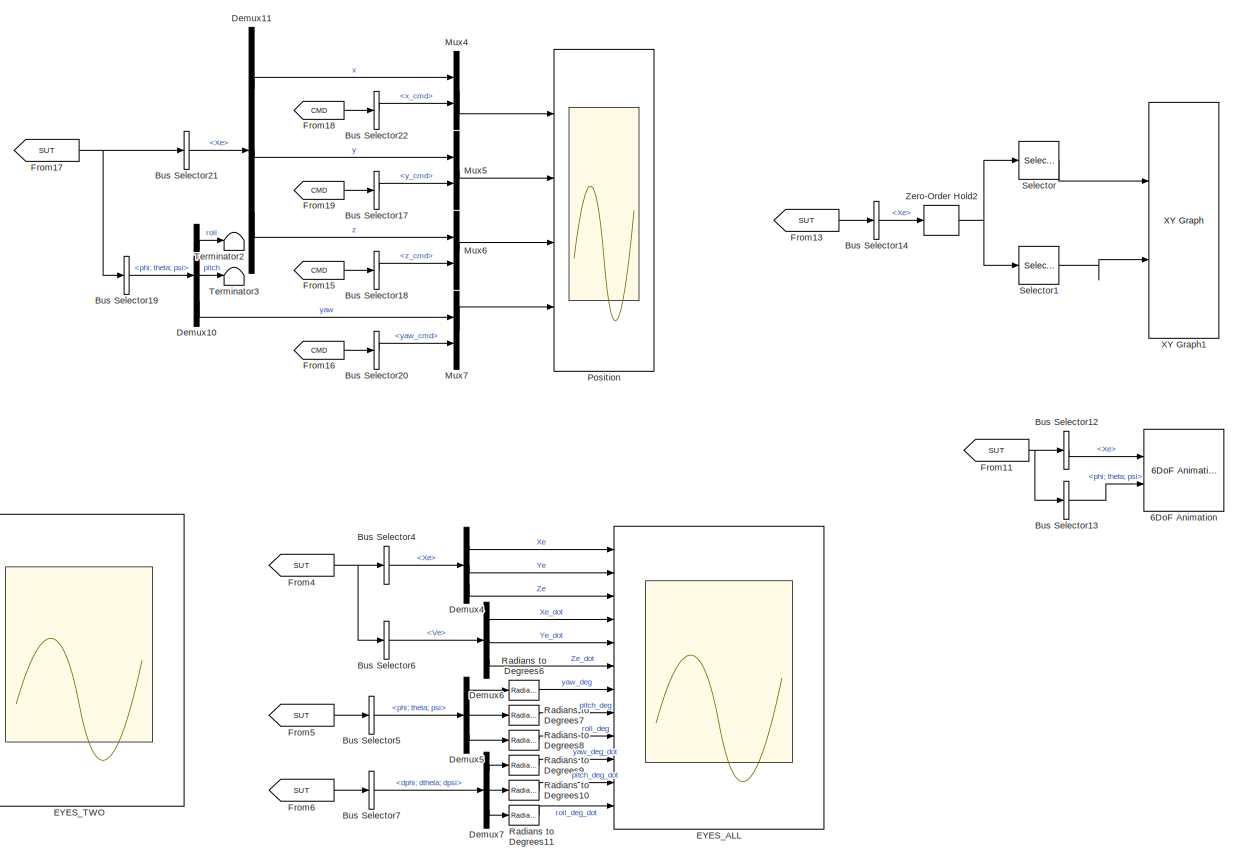
[diagram: Visualize X,V,Attitude - part 1/2, right side, full height]
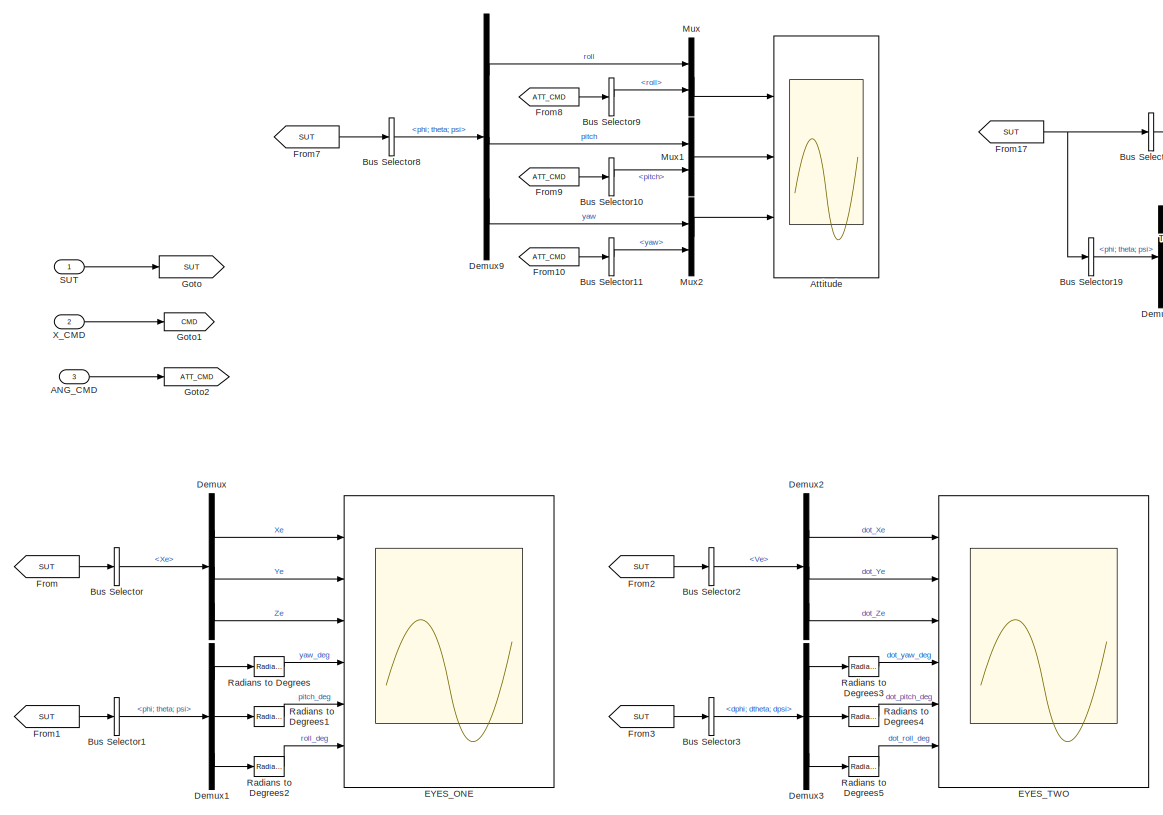
[diagram: Visualize X,V,Attitude - part 2/2, left side, full height]
BLOCK [SubSystem] Visualize X,V,Attitude
  NameLocation = top
  Ports = [3]
  RequestExecContextInheritance = off
BLOCK [Reference] Visualize X,V,Attitude/6DoF Animation  REF=aerolibanim/6DoF Animation
  Commented = on
  Ports = [2]
  SourceBlock = aerolibanim/6DoF Animation
  SourceProductBaseCode = AE
  SourceType = 6DoF_Animation
BLOCK [Inport] Visualize X,V,Attitude/ANG_CMD
  Port = 3
BLOCK [Scope] Visualize X,V,Attitude/Attitude 
  Floating = off
  NumInputPorts = 3
  Ports = [3]
  ScopeSpecificationString = Simulink.scopes.TimeScopeBlockCfg('CurrentConfiguration', extmgr.ConfigurationSet(extmgr.Configuration('Core','General UI',true),extmgr.Configuration('Core','Source UI',true),extmgr.Configuration('Sources','WiredSimulink',true,'DataLoggingVariableName','ScopeData1'),extmgr.Configuration('Visuals','Time Domain',true,'SerializedDisplays',{struct('MinYLimReal','-0.6545','MaxYLimReal','0.6545','YLabel...<+2828ch>
BLOCK [BusSelector] Visualize X,V,Attitude/Bus Selector
  OutputSignals = Xe
  Ports = [1, 1]
BLOCK [BusSelector] Visualize X,V,Attitude/Bus Selector1
  OutputSignals = phi; theta; psi
  Ports = [1, 1]
BLOCK [BusSelector] Visualize X,V,Attitude/Bus Selector10
  OutputSignals = pitch
  Ports = [1, 1]
BLOCK [BusSelector] Visualize X,V,Attitude/Bus Selector11
  OutputSignals = yaw
  Ports = [1, 1]
BLOCK [BusSelector] Visualize X,V,Attitude/Bus Selector12
  Commented = on
  OutputSignals = Xe
  Ports = [1, 1]
BLOCK [BusSelector] Visualize X,V,Attitude/Bus Selector13
  Commented = on
  OutputSignals = phi; theta; psi
  Ports = [1, 1]
BLOCK [BusSelector] Visualize X,V,Attitude/Bus Selector14
  OutputSignals = Xe
  Ports = [1, 1]
BLOCK [BusSelector] Visualize X,V,Attitude/Bus Selector17
  OutputSignals = y_cmd
  Ports = [1, 1]
BLOCK [BusSelector] Visualize X,V,Attitude/Bus Selector18
  OutputSignals = z_cmd
  Ports = [1, 1]
BLOCK [BusSelector] Visualize X,V,Attitude/Bus Selector19
  OutputSignals = phi; theta; psi
  Ports = [1, 1]
BLOCK [BusSelector] Visualize X,V,Attitude/Bus Selector2
  OutputSignals = Ve
  Ports = [1, 1]
BLOCK [BusSelector] Visualize X,V,Attitude/Bus Selector20
  OutputSignals = yaw_cmd
  Ports = [1, 1]
BLOCK [BusSelector] Visualize X,V,Attitude/Bus Selector21
  OutputSignals = Xe
  Ports = [1, 1]
BLOCK [BusSelector] Visualize X,V,Attitude/Bus Selector22
  OutputSignals = x_cmd
  Ports = [1, 1]
BLOCK [BusSelector] Visualize X,V,Attitude/Bus Selector3
  OutputSignals = dphi; dtheta; dpsi
  Ports = [1, 1]
BLOCK [BusSelector] Visualize X,V,Attitude/Bus Selector4
  OutputSignals = Xe
  Ports = [1, 1]
BLOCK [BusSelector] Visualize X,V,Attitude/Bus Selector5
  OutputSignals = phi; theta; psi
  Ports = [1, 1]
BLOCK [BusSelector] Visualize X,V,Attitude/Bus Selector6
  OutputSignals = Ve
  Ports = [1, 1]
BLOCK [BusSelector] Visualize X,V,Attitude/Bus Selector7
  OutputSignals = dphi; dtheta; dpsi
  Ports = [1, 1]
BLOCK [BusSelector] Visualize X,V,Attitude/Bus Selector8
  OutputSignals = phi; theta; psi
  Ports = [1, 1]
BLOCK [BusSelector] Visualize X,V,Attitude/Bus Selector9
  OutputSignals = roll
  Ports = [1, 1]
BLOCK [Demux] Visualize X,V,Attitude/Demux
  Outputs = 3
  Ports = [1, 3]
BLOCK [Demux] Visualize X,V,Attitude/Demux1
  Outputs = 3
  Ports = [1, 3]
BLOCK [Demux] Visualize X,V,Attitude/Demux10
  Outputs = 3
  Ports = [1, 3]
BLOCK [Demux] Visualize X,V,Attitude/Demux11
  Outputs = 3
  Ports = [1, 3]
BLOCK [Demux] Visualize X,V,Attitude/Demux2
  Outputs = 3
  Ports = [1, 3]
BLOCK [Demux] Visualize X,V,Attitude/Demux3
  Outputs = 3
  Ports = [1, 3]
BLOCK [Demux] Visualize X,V,Attitude/Demux4
  Outputs = 3
  Ports = [1, 3]
BLOCK [Demux] Visualize X,V,Attitude/Demux5
  Outputs = 3
  Ports = [1, 3]
BLOCK [Demux] Visualize X,V,Attitude/Demux6
  Outputs = 3
  Ports = [1, 3]
BLOCK [Demux] Visualize X,V,Attitude/Demux7
  Outputs = 3
  Ports = [1, 3]
BLOCK [Demux] Visualize X,V,Attitude/Demux9
  Outputs = 3
  Ports = [1, 3]
BLOCK [Scope] Visualize X,V,Attitude/EYES_ALL
  Floating = off
  NumInputPorts = 12
  Ports = [12]
  ScopeSpecificationString = Simulink.scopes.TimeScopeBlockCfg('CurrentConfiguration', extmgr.ConfigurationSet(extmgr.Configuration('Core','General UI',true),extmgr.Configuration('Core','Source UI',true),extmgr.Configuration('Sources','WiredSimulink',true,'DataLoggingVariableName','ScopeData1'),extmgr.Configuration('Visuals','Time Domain',true,'SerializedDisplays',{struct('MinYLimReal','-0.13271','MaxYLimReal','1.13272','YLab...<+9506ch>
BLOCK [Scope] Visualize X,V,Attitude/EYES_ONE
  Floating = off
  NumInputPorts = 6
  Ports = [6]
  ScopeSpecificationString = Simulink.scopes.TimeScopeBlockCfg('CurrentConfiguration', extmgr.ConfigurationSet(extmgr.Configuration('Core','General UI',true),extmgr.Configuration('Core','Source UI',true),extmgr.Configuration('Sources','WiredSimulink',true),extmgr.Configuration('Visuals','Time Domain',true,'SerializedDisplays',{struct('MinYLimReal','-0.13271','MaxYLimReal','1.13272','YLabelReal','','MinYLimMag','0.00000','MaxY...<+5184ch>
BLOCK [Scope] Visualize X,V,Attitude/EYES_TWO
  Floating = off
  NumInputPorts = 6
  Ports = [6]
  ScopeSpecificationString = Simulink.scopes.TimeScopeBlockCfg('CurrentConfiguration', extmgr.ConfigurationSet(extmgr.Configuration('Core','General UI',true),extmgr.Configuration('Core','Source UI',true),extmgr.Configuration('Sources','WiredSimulink',true,'DataLoggingVariableName','ScopeData1'),extmgr.Configuration('Visuals','Time Domain',true,'SerializedDisplays',{struct('MinYLimReal','-1.41803','MaxYLimReal','1.41802','YLab...<+5248ch>
BLOCK [From] Visualize X,V,Attitude/From
  GotoTag = SUT
BLOCK [From] Visualize X,V,Attitude/From1
  GotoTag = SUT
BLOCK [From] Visualize X,V,Attitude/From10
  GotoTag = ATT_CMD
BLOCK [From] Visualize X,V,Attitude/From11
  Commented = on
  GotoTag = SUT
BLOCK [From] Visualize X,V,Attitude/From13
  GotoTag = SUT
BLOCK [From] Visualize X,V,Attitude/From15
  GotoTag = CMD
BLOCK [From] Visualize X,V,Attitude/From16
  GotoTag = CMD
BLOCK [From] Visualize X,V,Attitude/From17
  GotoTag = SUT
BLOCK [From] Visualize X,V,Attitude/From18
  GotoTag = CMD
BLOCK [From] Visualize X,V,Attitude/From19
  GotoTag = CMD
BLOCK [From] Visualize X,V,Attitude/From2
  GotoTag = SUT
BLOCK [From] Visualize X,V,Attitude/From3
  GotoTag = SUT
BLOCK [From] Visualize X,V,Attitude/From4
  GotoTag = SUT
BLOCK [From] Visualize X,V,Attitude/From5
  GotoTag = SUT
BLOCK [From] Visualize X,V,Attitude/From6
  GotoTag = SUT
BLOCK [From] Visualize X,V,Attitude/From7
  GotoTag = SUT
BLOCK [From] Visualize X,V,Attitude/From8
  GotoTag = ATT_CMD
BLOCK [From] Visualize X,V,Attitude/From9
  GotoTag = ATT_CMD
  IconDisplay = Signal name
BLOCK [Goto] Visualize X,V,Attitude/Goto
  GotoTag = SUT
BLOCK [Goto] Visualize X,V,Attitude/Goto1
  GotoTag = CMD
BLOCK [Goto] Visualize X,V,Attitude/Goto2
  GotoTag = ATT_CMD
BLOCK [Mux] Visualize X,V,Attitude/Mux
  DisplayOption = bar
  Inputs = 2
  Ports = [2, 1]
BLOCK [Mux] Visualize X,V,Attitude/Mux1
  DisplayOption = bar
  Inputs = 2
  Ports = [2, 1]
BLOCK [Mux] Visualize X,V,Attitude/Mux2
  DisplayOption = bar
  Inputs = 2
  Ports = [2, 1]
BLOCK [Mux] Visualize X,V,Attitude/Mux4
  DisplayOption = bar
  Inputs = 2
  Ports = [2, 1]
BLOCK [Mux] Visualize X,V,Attitude/Mux5
  DisplayOption = bar
  Inputs = 2
  Ports = [2, 1]
BLOCK [Mux] Visualize X,V,Attitude/Mux6
  DisplayOption = bar
  Inputs = 2
  Ports = [2, 1]
BLOCK [Mux] Visualize X,V,Attitude/Mux7
  DisplayOption = bar
  Inputs = 2
  Ports = [2, 1]
BLOCK [Scope] Visualize X,V,Attitude/Position
  Floating = off
  NumInputPorts = 4
  Ports = [4]
  ScopeSpecificationString = Simulink.scopes.TimeScopeBlockCfg('CurrentConfiguration', extmgr.ConfigurationSet(extmgr.Configuration('Core','General UI',true),extmgr.Configuration('Core','Source UI',true),extmgr.Configuration('Sources','WiredSimulink',true,'DataLoggingVariableName','ScopeData5'),extmgr.Configuration('Visuals','Time Domain',true,'SerializedDisplays',{struct('MinYLimReal','-3.85543','MaxYLimReal','33.89466','YLa...<+3601ch>
BLOCK [Reference] Visualize X,V,Attitude/Radians to Degrees  REF=simulink_extras/Transformations/Radians
to Degrees
  Ports = [1, 1]
  SourceBlock = simulink_extras/Transformations/Radians\nto Degrees
  SourceProductBaseCode = SL
  SourceType = RadiansToDegrees
BLOCK [Reference] Visualize X,V,Attitude/Radians to Degrees1  REF=simulink_extras/Transformations/Radians
to Degrees
  Ports = [1, 1]
  SourceBlock = simulink_extras/Transformations/Radians\nto Degrees
  SourceProductBaseCode = SL
  SourceType = RadiansToDegrees
BLOCK [Reference] Visualize X,V,Attitude/Radians to Degrees10  REF=simulink_extras/Transformations/Radians
to Degrees
  Ports = [1, 1]
  SourceBlock = simulink_extras/Transformations/Radians\nto Degrees
  SourceProductBaseCode = SL
  SourceType = RadiansToDegrees
BLOCK [Reference] Visualize X,V,Attitude/Radians to Degrees11  REF=simulink_extras/Transformations/Radians
to Degrees
  Ports = [1, 1]
  SourceBlock = simulink_extras/Transformations/Radians\nto Degrees
  SourceProductBaseCode = SL
  SourceType = RadiansToDegrees
BLOCK [Reference] Visualize X,V,Attitude/Radians to Degrees2  REF=simulink_extras/Transformations/Radians
to Degrees
  Ports = [1, 1]
  SourceBlock = simulink_extras/Transformations/Radians\nto Degrees
  SourceProductBaseCode = SL
  SourceType = RadiansToDegrees
BLOCK [Reference] Visualize X,V,Attitude/Radians to Degrees3  REF=simulink_extras/Transformations/Radians
to Degrees
  Ports = [1, 1]
  SourceBlock = simulink_extras/Transformations/Radians\nto Degrees
  SourceProductBaseCode = SL
  SourceType = RadiansToDegrees
BLOCK [Reference] Visualize X,V,Attitude/Radians to Degrees4  REF=simulink_extras/Transformations/Radians
to Degrees
  Ports = [1, 1]
  SourceBlock = simulink_extras/Transformations/Radians\nto Degrees
  SourceProductBaseCode = SL
  SourceType = RadiansToDegrees
BLOCK [Reference] Visualize X,V,Attitude/Radians to Degrees5  REF=simulink_extras/Transformations/Radians
to Degrees
  Ports = [1, 1]
  SourceBlock = simulink_extras/Transformations/Radians\nto Degrees
  SourceProductBaseCode = SL
  SourceType = RadiansToDegrees
BLOCK [Reference] Visualize X,V,Attitude/Radians to Degrees6  REF=simulink_extras/Transformations/Radians
to Degrees
  Ports = [1, 1]
  SourceBlock = simulink_extras/Transformations/Radians\nto Degrees
  SourceProductBaseCode = SL
  SourceType = RadiansToDegrees
BLOCK [Reference] Visualize X,V,Attitude/Radians to Degrees7  REF=simulink_extras/Transformations/Radians
to Degrees
  Ports = [1, 1]
  SourceBlock = simulink_extras/Transformations/Radians\nto Degrees
  SourceProductBaseCode = SL
  SourceType = RadiansToDegrees
BLOCK [Reference] Visualize X,V,Attitude/Radians to Degrees8  REF=simulink_extras/Transformations/Radians
to Degrees
  Ports = [1, 1]
  SourceBlock = simulink_extras/Transformations/Radians\nto Degrees
  SourceProductBaseCode = SL
  SourceType = RadiansToDegrees
BLOCK [Reference] Visualize X,V,Attitude/Radians to Degrees9  REF=simulink_extras/Transformations/Radians
to Degrees
  Ports = [1, 1]
  SourceBlock = simulink_extras/Transformations/Radians\nto Degrees
  SourceProductBaseCode = SL
  SourceType = RadiansToDegrees
BLOCK [Inport] Visualize X,V,Attitude/SUT
BLOCK [Selector] Visualize X,V,Attitude/Selector
  IndexOptions = Index vector (dialog)
  Indices = 1
  InputPortWidth = 3
  OutputSizes = 1
  Ports = [1, 1]
BLOCK [Selector] Visualize X,V,Attitude/Selector1
  IndexOptions = Index vector (dialog)
  Indices = 2
  InputPortWidth = 3
  OutputSizes = 1
  Ports = [1, 1]
BLOCK [Terminator] Visualize X,V,Attitude/Terminator2
BLOCK [Terminator] Visualize X,V,Attitude/Terminator3
BLOCK [Reference] Visualize X,V,Attitude/XY Graph1  REF=simulink/Sinks/XY Graph
  Ports = [2]
  SourceBlock = simulink/Sinks/XY Graph
  SourceProductBaseCode = SL
  SourceType = XY scope.
BLOCK [Inport] Visualize X,V,Attitude/X_CMD
  Port = 2
BLOCK [ZeroOrderHold] Visualize X,V,Attitude/Zero-Order Hold2
  SampleTime = 0.1
BLOCK [SubSystem] Visualize in Simscape no-rot
  Commented = on
  Ports = [2]
  RequestExecContextInheritance = off
BLOCK [Reference] Visualize in Simscape no-rot/6-DOF Joint1  REF=sm_lib/Joints/6-DOF Joint
  AttributesFormatString = %<PxPositionTargetValue> %<PyPositionTargetValue> %<PzPositionTargetValue>\n%<PxVelocityTargetValue> %<PyVelocityTargetValue> %<PzVelocityTargetValue>\n%<SphPositionTargetRotationSequenceAngles>\n%<SphPositionTargetRotationSequence>\n%<SphVelocityTargetValue>
  Ports = [0, 0, 0, 0, 0, 5, 1]
  SourceBlock = sm_lib/Joints/6-DOF Joint
  SourceProductBaseCode = MS
  SourceType = 6-DOF Joint
BLOCK [BusSelector] Visualize in Simscape no-rot/Bus Selector
  OutputSignals = Xe
  Ports = [1, 1]
BLOCK [Demux] Visualize in Simscape no-rot/Demux
  Outputs = 3
  Ports = [1, 3]
BLOCK [Reference] Visualize in Simscape no-rot/Extruded Solid  REF=sm_lib/Body Elements/Extruded Solid
  NameLocation = top
  Ports = [0, 0, 0, 0, 0, 0, 1]
  SourceBlock = sm_lib/Body Elements/Extruded Solid
  SourceProductBaseCode = MS
  SourceType = Extruded Solid
BLOCK [Inport] Visualize in Simscape no-rot/In1
BLOCK [Inport] Visualize in Simscape no-rot/In2
  Port = 2
BLOCK [Reference] Visualize in Simscape no-rot/Mechanism Configuration  REF=sm_lib/Utilities/Mechanism
Configuration
  Ports = [0, 0, 0, 0, 0, 0, 1]
  SourceBlock = sm_lib/Utilities/Mechanism\nConfiguration
  SourceProductBaseCode = MS
  SourceType = Mechanism\nConfiguration
BLOCK [Selector] Visualize in Simscape no-rot/Selector
  IndexOptions = Index vector (dialog)
  Indices = [2:4]
  InputPortWidth = 4
  OutputSizes = 1
  Ports = [1, 1]
BLOCK [Reference] Visualize in Simscape no-rot/Simulink-PS Converter  REF=nesl_utility/Simulink-PS
Converter
  Ports = [1, 0, 0, 0, 0, 0, 1]
  SourceBlock = nesl_utility/Simulink-PS\nConverter
  SourceProductBaseCode = PW,SS
  SourceType = Simulink-PS\nConverter
BLOCK [Reference] Visualize in Simscape no-rot/Simulink-PS Converter1  REF=nesl_utility/Simulink-PS
Converter
  Ports = [1, 0, 0, 0, 0, 0, 1]
  SourceBlock = nesl_utility/Simulink-PS\nConverter
  SourceProductBaseCode = PW,SS
  SourceType = Simulink-PS\nConverter
BLOCK [Reference] Visualize in Simscape no-rot/Simulink-PS Converter2  REF=nesl_utility/Simulink-PS
Converter
  Ports = [1, 0, 0, 0, 0, 0, 1]
  SourceBlock = nesl_utility/Simulink-PS\nConverter
  SourceProductBaseCode = PW,SS
  SourceType = Simulink-PS\nConverter
BLOCK [Reference] Visualize in Simscape no-rot/Simulink-PS Converter3  REF=nesl_utility/Simulink-PS
Converter
  Ports = [1, 0, 0, 0, 0, 0, 1]
  SourceBlock = nesl_utility/Simulink-PS\nConverter
  SourceProductBaseCode = PW,SS
  SourceType = Simulink-PS\nConverter
BLOCK [Reference] Visualize in Simscape no-rot/Solver Configuration  REF=nesl_utility/Solver
Configuration
  Ports = [0, 0, 0, 0, 0, 0, 1]
  SourceBlock = nesl_utility/Solver\nConfiguration
  SourceProductBaseCode = SS
  SourceType = Solver\nConfiguration
BLOCK [Reference] Visualize in Simscape no-rot/World Frame1  REF=sm_lib/Frames and
Transforms/World Frame
  Ports = [0, 0, 0, 0, 0, 0, 1]
  SourceBlock = sm_lib/Frames and\nTransforms/World Frame
  SourceProductBaseCode = MS
  SourceType = World Frame
ANNOTATION (root): Visualization
ANNOTATION Attitude control: Attitude Error Calculation
ANNOTATION Attitude control: Attitude control (full attitude control, i.e. yaw+thrust)
ANNOTATION Control allocation and motor control: 1) Add Subsystem or Model blocks as valid variant choices. 2) You cannot connect blocks at this level. At simulation, connectivity is automatically determined, based on the active variant and port name matching.
ANNOTATION Control allocation and motor control/Ideal Actuators with allocation/Control allocation: $C^{-1} = \left(\begin{array}{cccc} \frac{1}{4\,\mathrm{kt}} & 0 & \frac{1}{2\,L\,\mathrm{kt}} & -\frac{1}{4\,\mathrm{km}}\\ \frac{1}{4\,\mathrm{kt}} & -\frac{1}{2\,L\,\mathrm{kt}} & 0 & \frac{1}{4\,\mathrm{km}}\\ \frac{1}{4\,\mathrm{kt}} & 0 & -\frac{1}{2\,L\,\mathrm{kt}} & -\frac{1}{4\,\mathrm{km}}\\ \frac{1}{4\,\mathrm{kt}} & \frac{1}{2\,L\,\mathrm{kt}} & 0 & \frac{1}{4\,\mathrm{km}} \end{array...<+9ch>
ANNOTATION Control allocation and motor control/Ideal Actuators with allocation/Control allocation: THRUST = k_t . \omega^2 TORQUE = k_m . \omega^2
ANNOTATION Position+Velocity Control: Position P controller
ANNOTATION Position+Velocity Control: Velocity PID controller
ANNOTATION Quad_EOM: F_b = m.(V_b' + \omega \times V_b) V_{b}^{'} = (F_b/m) - (\omega \times V_b)
ANNOTATION Quad_EOM: I . \omega^' = Mb - (\omega \times (I.\omega)) \omega^' = inv(I) * (Mb - (w \times (I.\omega)))
ANNOTATION Quad_EOM: Step 2: linear motion (froce) - body frame
ANNOTATION Quad_EOM: Step 3: rotational motion (moment) - body frame
ANNOTATION Quad_EOM: Step 4&5: quaternion calculations
ANNOTATION Quad_EOM: Step 6: calc pos and vel in wolrd frame
ANNOTATION Quad_EOM/Gravity_G_to_B: F_B = ^BR_G * F_G
ANNOTATION Quad_EOM/Integrate_quaternion: nomenclature gRb implies: gv = gRb * bv bRg implies: bv = bRg * gv wb = angular velocity expressed in components of the B-frame gwb = angular velocity expressed in components of the G-frame
ANNOTATION Quad_EOM/Integrate_quaternion: Attitude representation and propagation
ANNOTATION Quad_EOM/Integrate_quaternion: NORMALISE q
ANNOTATION Quad_EOM/Integrate_quaternion/NORMLIZE_occasionally: One strategy for NORMALIZING the quaternion
ANNOTATION Quad_EOM/Integrate_quaternion/NORMLIZE_occasionally: eg: every 10 seconds normalize
ANNOTATION Quad_EOM/Integrate_quaternion/NORMLIZE_occasionally/Adjust_to_UNITY: Every 10 seconds normalize the quaternion to ensure it is a UNIT quaternion
ANNOTATION Quad_EOM/Subsystem: I . w^' = Mb - (\omega \times (I.w)) w^' = inv(I) * (Mb - (w \times (I.w)))
ANNOTATION Rate controller: Rate controller
ANNOTATION Thrust to attitude: Thrust vector and Yaw to Attitude and total Thrust
ANNOTATION Thrust to attitude/Subsystem: Acceleration control
ANNOTATION Thrust to attitude/Subsystem: thrust to attitude setpoint
LINE Attitude control/Bus Selector3:1 -> Attitude control/Quaternion Inverse:1
LINE Attitude control/From2:1 -> Attitude control/Bus Selector3:1
LINE Attitude control/K_attitude:1 -> Attitude control/rates_cmd:1
LINE Attitude control/MATLAB Function1:1 -> Attitude control/Product:1
LINE Attitude control/Product:1 -> Attitude control/k:1
LINE Attitude control/Quaternion Inverse:1 -> Attitude control/Quaternion multiply:1
NET Attitude control/Quaternion multiply:1 -> Attitude control/Selector1:1, Attitude control/Selector2:1
LINE Attitude control/SUT_BUS:1 -> Attitude control/Goto:1
LINE Attitude control/Selector1:1 -> Attitude control/MATLAB Function1:1
LINE Attitude control/Selector2:1 -> Attitude control/Product:2
LINE Attitude control/k:1 -> Attitude control/K_attitude:1
LINE Attitude control/q_cmd:1 -> Attitude control/Quaternion multiply:2
LINE Attitude control:1 -> Rate controller:1
LINE Bus Creator:1 -> To Workspace1:1
LINE Control allocation and motor control/Ideal Actuators with allocation/Control allocation/Constant1:1 -> Control allocation and motor control/Ideal Actuators with allocation/Control allocation/FM_to_w2:3
LINE Control allocation and motor control/Ideal Actuators with allocation/Control allocation/Constant2:1 -> Control allocation and motor control/Ideal Actuators with allocation/Control allocation/FM_to_w2:1
LINE Control allocation and motor control/Ideal Actuators with allocation/Control allocation/Constant:1 -> Control allocation and motor control/Ideal Actuators with allocation/Control allocation/FM_to_w2:2
LINE Control allocation and motor control/Ideal Actuators with allocation/Control allocation/Demux1:1 -> Control allocation and motor control/Ideal Actuators with allocation/Control allocation/FM_to_w2:4
LINE Control allocation and motor control/Ideal Actuators with allocation/Control allocation/Demux1:2 -> Control allocation and motor control/Ideal Actuators with allocation/Control allocation/FM_to_w2:5
LINE Control allocation and motor control/Ideal Actuators with allocation/Control allocation/Demux1:3 -> Control allocation and motor control/Ideal Actuators with allocation/Control allocation/FM_to_w2:6
LINE Control allocation and motor control/Ideal Actuators with allocation/Control allocation/Demux1:4 -> Control allocation and motor control/Ideal Actuators with allocation/Control allocation/FM_to_w2:7
LINE Control allocation and motor control/Ideal Actuators with allocation/Control allocation/Demux2:1 -> Control allocation and motor control/Ideal Actuators with allocation/Control allocation/CMD F_and_M and wRPS:1
LINE Control allocation and motor control/Ideal Actuators with allocation/Control allocation/Demux2:2 -> Control allocation and motor control/Ideal Actuators with allocation/Control allocation/CMD F_and_M and wRPS:2
LINE Control allocation and motor control/Ideal Actuators with allocation/Control allocation/Demux2:3 -> Control allocation and motor control/Ideal Actuators with allocation/Control allocation/CMD F_and_M and wRPS:3
LINE Control allocation and motor control/Ideal Actuators with allocation/Control allocation/Demux2:4 -> Control allocation and motor control/Ideal Actuators with allocation/Control allocation/CMD F_and_M and wRPS:4
LINE Control allocation and motor control/Ideal Actuators with allocation/Control allocation/Demux3:1 -> Control allocation and motor control/Ideal Actuators with allocation/Control allocation/CMD F_and_M and wRPS:5
LINE Control allocation and motor control/Ideal Actuators with allocation/Control allocation/Demux3:2 -> Control allocation and motor control/Ideal Actuators with allocation/Control allocation/CMD F_and_M and wRPS:6
LINE Control allocation and motor control/Ideal Actuators with allocation/Control allocation/Demux3:3 -> Control allocation and motor control/Ideal Actuators with allocation/Control allocation/CMD F_and_M and wRPS:7
LINE Control allocation and motor control/Ideal Actuators with allocation/Control allocation/Demux3:4 -> Control allocation and motor control/Ideal Actuators with allocation/Control allocation/CMD F_and_M and wRPS:8
NET Control allocation and motor control/Ideal Actuators with allocation/Control allocation/FM_to_w2:1 -> Control allocation and motor control/Ideal Actuators with allocation/Control allocation/Scope:1, Control allocation and motor control/Ideal Actuators with allocation/Control allocation/W2_checker:1
LINE Control allocation and motor control/Ideal Actuators with allocation/Control allocation/From1:1 -> Control allocation and motor control/Ideal Actuators with allocation/Control allocation/Demux2:1
LINE Control allocation and motor control/Ideal Actuators with allocation/Control allocation/From2:1 -> Control allocation and motor control/Ideal Actuators with allocation/Control allocation/Subsystem:1
LINE Control allocation and motor control/Ideal Actuators with allocation/Control allocation/From3:1 -> Control allocation and motor control/Ideal Actuators with allocation/Control allocation/Demux1:1
LINE Control allocation and motor control/Ideal Actuators with allocation/Control allocation/Mux:1 -> Control allocation and motor control/Ideal Actuators with allocation/Control allocation/Goto:1
NET Control allocation and motor control/Ideal Actuators with allocation/Control allocation/Sqrt:1 -> Control allocation and motor control/Ideal Actuators with allocation/Control allocation/Goto1:1, Control allocation and motor control/Ideal Actuators with allocation/Control allocation/w_command:1
LINE Control allocation and motor control/Ideal Actuators with allocation/Control allocation/Subsystem/Constant3:1 -> Control allocation and motor control/Ideal Actuators with allocation/Control allocation/Subsystem/Gain1:1
LINE Control allocation and motor control/Ideal Actuators with allocation/Control allocation/Subsystem/Gain1:1 -> Control allocation and motor control/Ideal Actuators with allocation/Control allocation/Subsystem/Product:2
LINE Control allocation and motor control/Ideal Actuators with allocation/Control allocation/Subsystem/Product:1 -> Control allocation and motor control/Ideal Actuators with allocation/Control allocation/Subsystem/RPS:1
LINE Control allocation and motor control/Ideal Actuators with allocation/Control allocation/Subsystem/w_per_sec:1 -> Control allocation and motor control/Ideal Actuators with allocation/Control allocation/Subsystem/Product:1
LINE Control allocation and motor control/Ideal Actuators with allocation/Control allocation/Subsystem:1 -> Control allocation and motor control/Ideal Actuators with allocation/Control allocation/Demux3:1
LINE Control allocation and motor control/Ideal Actuators with allocation/Control allocation/THRUST_CMD:1 -> Control allocation and motor control/Ideal Actuators with allocation/Control allocation/Mux:1
LINE Control allocation and motor control/Ideal Actuators with allocation/Control allocation/TQ_Pitch_CMD:1 -> Control allocation and motor control/Ideal Actuators with allocation/Control allocation/Mux:3
LINE Control allocation and motor control/Ideal Actuators with allocation/Control allocation/TQ_Roll_CMD:1 -> Control allocation and motor control/Ideal Actuators with allocation/Control allocation/Mux:2
LINE Control allocation and motor control/Ideal Actuators with allocation/Control allocation/TQ_Yaw_CMD:1 -> Control allocation and motor control/Ideal Actuators with allocation/Control allocation/Mux:4
LINE Control allocation and motor control/Ideal Actuators with allocation/Control allocation/W2_checker/Compare To Constant:1 -> Control allocation and motor control/Ideal Actuators with allocation/Control allocation/W2_checker/Demux:1
LINE Control allocation and motor control/Ideal Actuators with allocation/Control allocation/W2_checker/Demux:1 -> Control allocation and motor control/Ideal Actuators with allocation/Control allocation/W2_checker/Assertion:1
LINE Control allocation and motor control/Ideal Actuators with allocation/Control allocation/W2_checker/Demux:2 -> Control allocation and motor control/Ideal Actuators with allocation/Control allocation/W2_checker/Assertion1:1
LINE Control allocation and motor control/Ideal Actuators with allocation/Control allocation/W2_checker/Demux:3 -> Control allocation and motor control/Ideal Actuators with allocation/Control allocation/W2_checker/Assertion2:1
LINE Control allocation and motor control/Ideal Actuators with allocation/Control allocation/W2_checker/Demux:4 -> Control allocation and motor control/Ideal Actuators with allocation/Control allocation/W2_checker/Assertion3:1
NET Control allocation and motor control/Ideal Actuators with allocation/Control allocation/W2_checker/w2_CMD:1 -> Control allocation and motor control/Ideal Actuators with allocation/Control allocation/W2_checker/Compare To Constant:1, Control allocation and motor control/Ideal Actuators with allocation/Control allocation/W2_checker/w2:1
LINE Control allocation and motor control/Ideal Actuators with allocation/Control allocation/W2_checker:1 -> Control allocation and motor control/Ideal Actuators with allocation/Control allocation/Sqrt:1
LINE Control allocation and motor control/Ideal Actuators with allocation/Control allocation:1 -> Control allocation and motor control/Ideal Actuators with allocation/Perfect actuators:1
LINE Control allocation and motor control/Ideal Actuators with allocation/Perfect actuators/Allocation matrix (motor speed to twist):1 -> Control allocation and motor control/Ideal Actuators with allocation/Perfect actuators/Mux1:1
LINE Control allocation and motor control/Ideal Actuators with allocation/Perfect actuators/Allocation matrix (motor speed to twist):2 -> Control allocation and motor control/Ideal Actuators with allocation/Perfect actuators/Mux1:2
LINE Control allocation and motor control/Ideal Actuators with allocation/Perfect actuators/Allocation matrix (motor speed to twist):3 -> Control allocation and motor control/Ideal Actuators with allocation/Perfect actuators/Mux1:3
LINE Control allocation and motor control/Ideal Actuators with allocation/Perfect actuators/Allocation matrix (motor speed to twist):4 -> Control allocation and motor control/Ideal Actuators with allocation/Perfect actuators/Mux1:4
LINE Control allocation and motor control/Ideal Actuators with allocation/Perfect actuators/Constant3:1 -> Control allocation and motor control/Ideal Actuators with allocation/Perfect actuators/Allocation matrix (motor speed to twist):2
LINE Control allocation and motor control/Ideal Actuators with allocation/Perfect actuators/Constant4:1 -> Control allocation and motor control/Ideal Actuators with allocation/Perfect actuators/Allocation matrix (motor speed to twist):3
LINE Control allocation and motor control/Ideal Actuators with allocation/Perfect actuators/Constant5:1 -> Control allocation and motor control/Ideal Actuators with allocation/Perfect actuators/Allocation matrix (motor speed to twist):1
LINE Control allocation and motor control/Ideal Actuators with allocation/Perfect actuators/Demux:1 -> Control allocation and motor control/Ideal Actuators with allocation/Perfect actuators/Thrust:1
LINE Control allocation and motor control/Ideal Actuators with allocation/Perfect actuators/Demux:2 -> Control allocation and motor control/Ideal Actuators with allocation/Perfect actuators/Mx:1
LINE Control allocation and motor control/Ideal Actuators with allocation/Perfect actuators/Demux:3 -> Control allocation and motor control/Ideal Actuators with allocation/Perfect actuators/My:1
LINE Control allocation and motor control/Ideal Actuators with allocation/Perfect actuators/Demux:4 -> Control allocation and motor control/Ideal Actuators with allocation/Perfect actuators/Mz:1
LINE Control allocation and motor control/Ideal Actuators with allocation/Perfect actuators/From4:1 -> Control allocation and motor control/Ideal Actuators with allocation/Perfect actuators/T_actual:1
LINE Control allocation and motor control/Ideal Actuators with allocation/Perfect actuators/From5:1 -> Control allocation and motor control/Ideal Actuators with allocation/Perfect actuators/Demux:1
LINE Control allocation and motor control/Ideal Actuators with allocation/Perfect actuators/Math Function1:1 -> Control allocation and motor control/Ideal Actuators with allocation/Perfect actuators/Allocation matrix (motor speed to twist):4
LINE Control allocation and motor control/Ideal Actuators with allocation/Perfect actuators/Motor Control/Demux:1 -> Control allocation and motor control/Ideal Actuators with allocation/Perfect actuators/Motor Control/Mux:1
LINE Control allocation and motor control/Ideal Actuators with allocation/Perfect actuators/Motor Control/Demux:2 -> Control allocation and motor control/Ideal Actuators with allocation/Perfect actuators/Motor Control/Mux:2
LINE Control allocation and motor control/Ideal Actuators with allocation/Perfect actuators/Motor Control/Demux:3 -> Control allocation and motor control/Ideal Actuators with allocation/Perfect actuators/Motor Control/Mux:3
LINE Control allocation and motor control/Ideal Actuators with allocation/Perfect actuators/Motor Control/Demux:4 -> Control allocation and motor control/Ideal Actuators with allocation/Perfect actuators/Motor Control/Mux:4
LINE Control allocation and motor control/Ideal Actuators with allocation/Perfect actuators/Motor Control/From1:1 -> Control allocation and motor control/Ideal Actuators with allocation/Perfect actuators/Motor Control/w_MUX:1
NET Control allocation and motor control/Ideal Actuators with allocation/Perfect actuators/Motor Control/Mux:1 -> Control allocation and motor control/Ideal Actuators with allocation/Perfect actuators/Motor Control/w:1, Control allocation and motor control/Ideal Actuators with allocation/Perfect actuators/Motor Control/w_MUX:2
NET Control allocation and motor control/Ideal Actuators with allocation/Perfect actuators/Motor Control/w_CMD:1 -> Control allocation and motor control/Ideal Actuators with allocation/Perfect actuators/Motor Control/Demux:1, Control allocation and motor control/Ideal Actuators with allocation/Perfect actuators/Motor Control/Goto:1
LINE Control allocation and motor control/Ideal Actuators with allocation/Perfect actuators/Motor Control/w_MUX/Demux1:1 -> Control allocation and motor control/Ideal Actuators with allocation/Perfect actuators/Motor Control/w_MUX/Mux:2
LINE Control allocation and motor control/Ideal Actuators with allocation/Perfect actuators/Motor Control/w_MUX/Demux1:2 -> Control allocation and motor control/Ideal Actuators with allocation/Perfect actuators/Motor Control/w_MUX/Mux1:2
LINE Control allocation and motor control/Ideal Actuators with allocation/Perfect actuators/Motor Control/w_MUX/Demux1:3 -> Control allocation and motor control/Ideal Actuators with allocation/Perfect actuators/Motor Control/w_MUX/Mux2:2
LINE Control allocation and motor control/Ideal Actuators with allocation/Perfect actuators/Motor Control/w_MUX/Demux1:4 -> Control allocation and motor control/Ideal Actuators with allocation/Perfect actuators/Motor Control/w_MUX/Mux3:2
LINE Control allocation and motor control/Ideal Actuators with allocation/Perfect actuators/Motor Control/w_MUX/Demux2:1 -> Control allocation and motor control/Ideal Actuators with allocation/Perfect actuators/Motor Control/w_MUX/Mux:1
LINE Control allocation and motor control/Ideal Actuators with allocation/Perfect actuators/Motor Control/w_MUX/Demux2:2 -> Control allocation and motor control/Ideal Actuators with allocation/Perfect actuators/Motor Control/w_MUX/Mux1:1
LINE Control allocation and motor control/Ideal Actuators with allocation/Perfect actuators/Motor Control/w_MUX/Demux2:3 -> Control allocation and motor control/Ideal Actuators with allocation/Perfect actuators/Motor Control/w_MUX/Mux2:1
LINE Control allocation and motor control/Ideal Actuators with allocation/Perfect actuators/Motor Control/w_MUX/Demux2:4 -> Control allocation and motor control/Ideal Actuators with allocation/Perfect actuators/Motor Control/w_MUX/Mux3:1
LINE Control allocation and motor control/Ideal Actuators with allocation/Perfect actuators/Motor Control/w_MUX/Mux1:1 -> Control allocation and motor control/Ideal Actuators with allocation/Perfect actuators/Motor Control/w_MUX/w2:1
LINE Control allocation and motor control/Ideal Actuators with allocation/Perfect actuators/Motor Control/w_MUX/Mux2:1 -> Control allocation and motor control/Ideal Actuators with allocation/Perfect actuators/Motor Control/w_MUX/w3:1
LINE Control allocation and motor control/Ideal Actuators with allocation/Perfect actuators/Motor Control/w_MUX/Mux3:1 -> Control allocation and motor control/Ideal Actuators with allocation/Perfect actuators/Motor Control/w_MUX/w4:1
LINE Control allocation and motor control/Ideal Actuators with allocation/Perfect actuators/Motor Control/w_MUX/Mux:1 -> Control allocation and motor control/Ideal Actuators with allocation/Perfect actuators/Motor Control/w_MUX/w1:1
LINE Control allocation and motor control/Ideal Actuators with allocation/Perfect actuators/Motor Control/w_MUX/W:1 -> Control allocation and motor control/Ideal Actuators with allocation/Perfect actuators/Motor Control/w_MUX/Demux1:1
LINE Control allocation and motor control/Ideal Actuators with allocation/Perfect actuators/Motor Control/w_MUX/W_CMD:1 -> Control allocation and motor control/Ideal Actuators with allocation/Perfect actuators/Motor Control/w_MUX/Demux2:1
LINE Control allocation and motor control/Ideal Actuators with allocation/Perfect actuators/Motor Control/w_MUX:1 -> Control allocation and motor control/Ideal Actuators with allocation/Perfect actuators/Motor Control/w CMD vs Actual:1
LINE Control allocation and motor control/Ideal Actuators with allocation/Perfect actuators/Motor Control/w_MUX:2 -> Control allocation and motor control/Ideal Actuators with allocation/Perfect actuators/Motor Control/w CMD vs Actual:2
LINE Control allocation and motor control/Ideal Actuators with allocation/Perfect actuators/Motor Control/w_MUX:3 -> Control allocation and motor control/Ideal Actuators with allocation/Perfect actuators/Motor Control/w CMD vs Actual:3
LINE Control allocation and motor control/Ideal Actuators with allocation/Perfect actuators/Motor Control/w_MUX:4 -> Control allocation and motor control/Ideal Actuators with allocation/Perfect actuators/Motor Control/w CMD vs Actual:4
NET Control allocation and motor control/Ideal Actuators with allocation/Perfect actuators/Motor Control:1 -> Control allocation and motor control/Ideal Actuators with allocation/Perfect actuators/Reshape1:1, Control allocation and motor control/Ideal Actuators with allocation/Perfect actuators/w_mot_actual:1
LINE Control allocation and motor control/Ideal Actuators with allocation/Perfect actuators/Mux1:1 -> Control allocation and motor control/Ideal Actuators with allocation/Perfect actuators/Goto2:1
LINE Control allocation and motor control/Ideal Actuators with allocation/Perfect actuators/Reshape1:1 -> Control allocation and motor control/Ideal Actuators with allocation/Perfect actuators/Math Function1:1
LINE Control allocation and motor control/Ideal Actuators with allocation/Perfect actuators/w_cmd:1 -> Control allocation and motor control/Ideal Actuators with allocation/Perfect actuators/Motor Control:1
LINE Control allocation and motor control/Ideal Actuators with allocation/Perfect actuators:1 -> Control allocation and motor control/Ideal Actuators with allocation/Thrust:1
LINE Control allocation and motor control/Ideal Actuators with allocation/Perfect actuators:2 -> Control allocation and motor control/Ideal Actuators with allocation/Mx:1
LINE Control allocation and motor control/Ideal Actuators with allocation/Perfect actuators:3 -> Control allocation and motor control/Ideal Actuators with allocation/My:1
LINE Control allocation and motor control/Ideal Actuators with allocation/Perfect actuators:4 -> Control allocation and motor control/Ideal Actuators with allocation/Mz:1
LINE Control allocation and motor control/Ideal Actuators with allocation/Perfect actuators:5 -> Control allocation and motor control/Ideal Actuators with allocation/T_actual:1
LINE Control allocation and motor control/Ideal Actuators with allocation/Perfect actuators:6 -> Control allocation and motor control/Ideal Actuators with allocation/w_mot_actual:1
LINE Control allocation and motor control/Ideal Actuators with allocation/THRUST_CMD:1 -> Control allocation and motor control/Ideal Actuators with allocation/Control allocation:1
LINE Control allocation and motor control/Ideal Actuators with allocation/TQ_Pitch_CMD:1 -> Control allocation and motor control/Ideal Actuators with allocation/Control allocation:3
LINE Control allocation and motor control/Ideal Actuators with allocation/TQ_Roll_CMD:1 -> Control allocation and motor control/Ideal Actuators with allocation/Control allocation:2
LINE Control allocation and motor control/Ideal Actuators with allocation/TQ_Yaw_CMD:1 -> Control allocation and motor control/Ideal Actuators with allocation/Control allocation:4
LINE Control allocation and motor control/Ideal Actuattion (direct transfer)/Mux:1 -> Control allocation and motor control/Ideal Actuattion (direct transfer)/T_actual:1
NET Control allocation and motor control/Ideal Actuattion (direct transfer)/THRUST_CMD:1 -> Control allocation and motor control/Ideal Actuattion (direct transfer)/Mux:1, Control allocation and motor control/Ideal Actuattion (direct transfer)/Thrust:1
NET Control allocation and motor control/Ideal Actuattion (direct transfer)/TQ_Pitch_CMD:1 -> Control allocation and motor control/Ideal Actuattion (direct transfer)/Mux:3, Control allocation and motor control/Ideal Actuattion (direct transfer)/My:1
NET Control allocation and motor control/Ideal Actuattion (direct transfer)/TQ_Roll_CMD:1 -> Control allocation and motor control/Ideal Actuattion (direct transfer)/Mux:2, Control allocation and motor control/Ideal Actuattion (direct transfer)/Mx:1
NET Control allocation and motor control/Ideal Actuattion (direct transfer)/TQ_Yaw_CMD:1 -> Control allocation and motor control/Ideal Actuattion (direct transfer)/Mux:4, Control allocation and motor control/Ideal Actuattion (direct transfer)/Mz:1
LINE Control allocation and motor control/Ideal Actuattion (direct transfer)/Zero:1 -> Control allocation and motor control/Ideal Actuattion (direct transfer)/w_mot_actual:1
LINE Control allocation and motor control:1 -> Quad_EOM:1
LINE Control allocation and motor control:2 -> Quad_EOM:2
LINE Control allocation and motor control:3 -> Quad_EOM:3
LINE Control allocation and motor control:4 -> Quad_EOM:4
LINE Control allocation and motor control:5 -> Goto4:1
LINE Control allocation and motor control:6 -> Goto3:1
LINE Force_torque Limiter/From1:1 -> Force_torque Limiter/Mux:1
LINE Force_torque Limiter/From2:1 -> Force_torque Limiter/Mux:3
LINE Force_torque Limiter/From3:1 -> Force_torque Limiter/Mux:4
LINE Force_torque Limiter/From:1 -> Force_torque Limiter/Mux:2
NET Force_torque Limiter/Mux:1 -> Force_torque Limiter/CMD_VEC:1, Force_torque Limiter/Scope:1
NET Force_torque Limiter/Saturation1:1 -> Force_torque Limiter/Goto3:1, Force_torque Limiter/torque_z:1
NET Force_torque Limiter/Saturation2:1 -> Force_torque Limiter/Goto2:1, Force_torque Limiter/torque_y:1
NET Force_torque Limiter/Saturation3:1 -> Force_torque Limiter/Goto1:1, Force_torque Limiter/torque_x:1
NET Force_torque Limiter/Saturation:1 -> Force_torque Limiter/Goto:1, Force_torque Limiter/thrust:1
LINE Force_torque Limiter/thrust_cmd:1 -> Force_torque Limiter/Saturation:1
LINE Force_torque Limiter/torque_x_cmd:1 -> Force_torque Limiter/Saturation3:1
LINE Force_torque Limiter/torque_y_cmd:1 -> Force_torque Limiter/Saturation2:1
LINE Force_torque Limiter/torque_z_cmd:1 -> Force_torque Limiter/Saturation1:1
LINE Force_torque Limiter:1 -> Control allocation and motor control:1
LINE Force_torque Limiter:2 -> Control allocation and motor control:2
LINE Force_torque Limiter:3 -> Control allocation and motor control:3
LINE Force_torque Limiter:4 -> Control allocation and motor control:4
LINE Force_torque Limiter:5 -> Goto2:1
LINE From10:1 -> Bus Creator:3
LINE From1:1 -> Visualize X,V,Attitude:1
LINE From2:1 -> Visualize X,V,Attitude:3
LINE From3:1 -> Visualize X,V,Attitude:2
LINE From4:1 -> Visualize in Simscape no-rot:1
LINE From5:1 -> Visualize Forces//Torques:1
LINE From6:1 -> Visualize Forces//Torques:2
LINE From7:1 -> Visualize in Simscape no-rot:2
LINE From8:1 -> Bus Creator:2
LINE From9:1 -> Bus Creator:1
LINE Position+Velocity Control/Bus Selector3:1 -> Position+Velocity Control/Goto12:1
LINE Position+Velocity Control/Bus Selector3:2 -> Position+Velocity Control/Goto11:1
LINE Position+Velocity Control/From12:1 -> Position+Velocity Control/Velocity PID Controller:3
LINE Position+Velocity Control/From2:1 -> Position+Velocity Control/Bus Selector3:1
LINE Position+Velocity Control/From3:1 -> Position+Velocity Control/Velocity PID Controller:2
LINE Position+Velocity Control/From7:1 -> Position+Velocity Control/Position P Controller:1
LINE Position+Velocity Control/From8:1 -> Position+Velocity Control/Position P Controller:2
LINE Position+Velocity Control/Mux:1 -> Position+Velocity Control/Goto13:1
LINE Position+Velocity Control/Position P Controller/Demux1:1 -> Position+Velocity Control/Position P Controller/Goto3:1
LINE Position+Velocity Control/Position P Controller/Demux1:2 -> Position+Velocity Control/Position P Controller/Goto4:1
LINE Position+Velocity Control/Position P Controller/Demux1:3 -> Position+Velocity Control/Position P Controller/Goto5:1
LINE Position+Velocity Control/Position P Controller/Demux:1 -> Position+Velocity Control/Position P Controller/Goto:1
LINE Position+Velocity Control/Position P Controller/Demux:2 -> Position+Velocity Control/Position P Controller/Goto1:1
LINE Position+Velocity Control/Position P Controller/Demux:3 -> Position+Velocity Control/Position P Controller/Goto2:1
LINE Position+Velocity Control/Position P Controller/From10:1 -> Position+Velocity Control/Position P Controller/Mux2:1
LINE Position+Velocity Control/Position P Controller/From11:1 -> Position+Velocity Control/Position P Controller/Mux3:1
LINE Position+Velocity Control/Position P Controller/From12:1 -> Position+Velocity Control/Position P Controller/Mux3:2
LINE Position+Velocity Control/Position P Controller/From13:1 -> Position+Velocity Control/Position P Controller/Mux1:2
LINE Position+Velocity Control/Position P Controller/From14:1 -> Position+Velocity Control/Position P Controller/Scope1:2
LINE Position+Velocity Control/Position P Controller/From15:1 -> Position+Velocity Control/Position P Controller/Scope3:2
LINE Position+Velocity Control/Position P Controller/From1:1 -> Position+Velocity Control/Position P Controller/Sum:2
LINE Position+Velocity Control/Position P Controller/From2:1 -> Position+Velocity Control/Position P Controller/Sum:1
LINE Position+Velocity Control/Position P Controller/From3:1 -> Position+Velocity Control/Position P Controller/Mux1:1
LINE Position+Velocity Control/Position P Controller/From4:1 -> Position+Velocity Control/Position P Controller/Sum3:2
LINE Position+Velocity Control/Position P Controller/From5:1 -> Position+Velocity Control/Position P Controller/Sum3:1
LINE Position+Velocity Control/Position P Controller/From6:1 -> Position+Velocity Control/Position P Controller/Sum1:2
LINE Position+Velocity Control/Position P Controller/From7:1 -> Position+Velocity Control/Position P Controller/Sum1:1
LINE Position+Velocity Control/Position P Controller/From8:1 -> Position+Velocity Control/Position P Controller/Mux2:2
LINE Position+Velocity Control/Position P Controller/From9:1 -> Position+Velocity Control/Position P Controller/Scope2:2
LINE Position+Velocity Control/Position P Controller/Kp_x:1 -> Position+Velocity Control/Position P Controller/limit vel x:1
LINE Position+Velocity Control/Position P Controller/Kp_y:1 -> Position+Velocity Control/Position P Controller/limit vel y:1
LINE Position+Velocity Control/Position P Controller/Kp_z:1 -> Position+Velocity Control/Position P Controller/limit vel z:1
LINE Position+Velocity Control/Position P Controller/Mux1:1 -> Position+Velocity Control/Position P Controller/Scope1:1
LINE Position+Velocity Control/Position P Controller/Mux2:1 -> Position+Velocity Control/Position P Controller/Scope2:1
LINE Position+Velocity Control/Position P Controller/Mux3:1 -> Position+Velocity Control/Position P Controller/Scope3:1
LINE Position+Velocity Control/Position P Controller/Mux:1 -> Position+Velocity Control/Position P Controller/V_sp:1
LINE Position+Velocity Control/Position P Controller/Sum1:1 -> Position+Velocity Control/Position P Controller/Kp_y:1
LINE Position+Velocity Control/Position P Controller/Sum3:1 -> Position+Velocity Control/Position P Controller/Kp_z:1
LINE Position+Velocity Control/Position P Controller/Sum:1 -> Position+Velocity Control/Position P Controller/Kp_x:1
NET Position+Velocity Control/Position P Controller/limit vel x:1 -> Position+Velocity Control/Position P Controller/Goto6:1, Position+Velocity Control/Position P Controller/Mux:1
NET Position+Velocity Control/Position P Controller/limit vel y:1 -> Position+Velocity Control/Position P Controller/Goto7:1, Position+Velocity Control/Position P Controller/Mux:2
NET Position+Velocity Control/Position P Controller/limit vel z:1 -> Position+Velocity Control/Position P Controller/Goto8:1, Position+Velocity Control/Position P Controller/Mux:3
LINE Position+Velocity Control/Position P Controller/pos_cmd:1 -> Position+Velocity Control/Position P Controller/Demux:1
LINE Position+Velocity Control/Position P Controller/pos_cur:1 -> Position+Velocity Control/Position P Controller/Demux1:1
LINE Position+Velocity Control/Position P Controller:1 -> Position+Velocity Control/Velocity PID Controller:1
LINE Position+Velocity Control/SUT_BUS:1 -> Position+Velocity Control/Goto:1
LINE Position+Velocity Control/Velocity PID Controller/Demux1:1 -> Position+Velocity Control/Velocity PID Controller/Goto3:1
LINE Position+Velocity Control/Velocity PID Controller/Demux1:2 -> Position+Velocity Control/Velocity PID Controller/Goto4:1
LINE Position+Velocity Control/Velocity PID Controller/Demux1:3 -> Position+Velocity Control/Velocity PID Controller/Goto5:1
LINE Position+Velocity Control/Velocity PID Controller/Demux2:1 -> Position+Velocity Control/Velocity PID Controller/Goto9:1
LINE Position+Velocity Control/Velocity PID Controller/Demux2:2 -> Position+Velocity Control/Velocity PID Controller/Goto10:1
LINE Position+Velocity Control/Velocity PID Controller/Demux2:3 -> Position+Velocity Control/Velocity PID Controller/Goto11:1
LINE Position+Velocity Control/Velocity PID Controller/Demux:1 -> Position+Velocity Control/Velocity PID Controller/Goto:1
LINE Position+Velocity Control/Velocity PID Controller/Demux:2 -> Position+Velocity Control/Velocity PID Controller/Goto1:1
LINE Position+Velocity Control/Velocity PID Controller/Demux:3 -> Position+Velocity Control/Velocity PID Controller/Goto2:1
LINE Position+Velocity Control/Velocity PID Controller/From10:1 -> Position+Velocity Control/Velocity PID Controller/Mux2:1
LINE Position+Velocity Control/Velocity PID Controller/From11:1 -> Position+Velocity Control/Velocity PID Controller/Mux3:1
LINE Position+Velocity Control/Velocity PID Controller/From12:1 -> Position+Velocity Control/Velocity PID Controller/Mux3:2
LINE Position+Velocity Control/Velocity PID Controller/From13:1 -> Position+Velocity Control/Velocity PID Controller/Mux1:2
LINE Position+Velocity Control/Velocity PID Controller/From14:1 -> Position+Velocity Control/Velocity PID Controller/Scope1:2
LINE Position+Velocity Control/Velocity PID Controller/From15:1 -> Position+Velocity Control/Velocity PID Controller/Scope3:2
LINE Position+Velocity Control/Velocity PID Controller/From17:1 -> Position+Velocity Control/Velocity PID Controller/g:1
LINE Position+Velocity Control/Velocity PID Controller/From18:1 -> Position+Velocity Control/Velocity PID Controller/g1:1
LINE Position+Velocity Control/Velocity PID Controller/From1:1 -> Position+Velocity Control/Velocity PID Controller/Sum:2
LINE Position+Velocity Control/Velocity PID Controller/From2:1 -> Position+Velocity Control/Velocity PID Controller/Sum:1
LINE Position+Velocity Control/Velocity PID Controller/From3:1 -> Position+Velocity Control/Velocity PID Controller/Mux1:1
LINE Position+Velocity Control/Velocity PID Controller/From4:1 -> Position+Velocity Control/Velocity PID Controller/Sum3:2
LINE Position+Velocity Control/Velocity PID Controller/From5:1 -> Position+Velocity Control/Velocity PID Controller/Sum3:1
LINE Position+Velocity Control/Velocity PID Controller/From6:1 -> Position+Velocity Control/Velocity PID Controller/Sum1:2
LINE Position+Velocity Control/Velocity PID Controller/From7:1 -> Position+Velocity Control/Velocity PID Controller/Sum1:1
LINE Position+Velocity Control/Velocity PID Controller/From8:1 -> Position+Velocity Control/Velocity PID Controller/Mux2:2
LINE Position+Velocity Control/Velocity PID Controller/From9:1 -> Position+Velocity Control/Velocity PID Controller/Scope2:2
LINE Position+Velocity Control/Velocity PID Controller/From:1 -> Position+Velocity Control/Velocity PID Controller/g2:1
LINE Position+Velocity Control/Velocity PID Controller/Hover thrust:1 -> Position+Velocity Control/Velocity PID Controller/Sum2:3
NET Position+Velocity Control/Velocity PID Controller/MATLAB Function:1 -> Position+Velocity Control/Velocity PID Controller/Goto7:1, Position+Velocity Control/Velocity PID Controller/Mux:1
NET Position+Velocity Control/Velocity PID Controller/MATLAB Function:2 -> Position+Velocity Control/Velocity PID Controller/Goto12:1, Position+Velocity Control/Velocity PID Controller/Mux:2
LINE Position+Velocity Control/Velocity PID Controller/Mux1:1 -> Position+Velocity Control/Velocity PID Controller/Scope1:1
LINE Position+Velocity Control/Velocity PID Controller/Mux2:1 -> Position+Velocity Control/Velocity PID Controller/Scope2:1
LINE Position+Velocity Control/Velocity PID Controller/Mux3:1 -> Position+Velocity Control/Velocity PID Controller/Scope3:1
LINE Position+Velocity Control/Velocity PID Controller/Mux:1 -> Position+Velocity Control/Velocity PID Controller/thrust_sp:1
LINE Position+Velocity Control/Velocity PID Controller/PID Controller1:1 -> Position+Velocity Control/Velocity PID Controller/Sum5:2
LINE Position+Velocity Control/Velocity PID Controller/PID Controller2:1 -> Position+Velocity Control/Velocity PID Controller/Sum2:2
LINE Position+Velocity Control/Velocity PID Controller/PID Controller:1 -> Position+Velocity Control/Velocity PID Controller/Sum6:2
LINE Position+Velocity Control/Velocity PID Controller/Sum1:1 -> Position+Velocity Control/Velocity PID Controller/PID Controller1:1
LINE Position+Velocity Control/Velocity PID Controller/Sum2:1 -> Position+Velocity Control/Velocity PID Controller/limit thrust z:1
LINE Position+Velocity Control/Velocity PID Controller/Sum3:1 -> Position+Velocity Control/Velocity PID Controller/PID Controller2:1
LINE Position+Velocity Control/Velocity PID Controller/Sum5:1 -> Position+Velocity Control/Velocity PID Controller/MATLAB Function:4
LINE Position+Velocity Control/Velocity PID Controller/Sum6:1 -> Position+Velocity Control/Velocity PID Controller/MATLAB Function:3
LINE Position+Velocity Control/Velocity PID Controller/Sum:1 -> Position+Velocity Control/Velocity PID Controller/PID Controller:1
LINE Position+Velocity Control/Velocity PID Controller/acc_ff:1 -> Position+Velocity Control/Velocity PID Controller/Demux2:1
LINE Position+Velocity Control/Velocity PID Controller/g1:1 -> Position+Velocity Control/Velocity PID Controller/Sum5:1
LINE Position+Velocity Control/Velocity PID Controller/g2:1 -> Position+Velocity Control/Velocity PID Controller/Sum6:1
LINE Position+Velocity Control/Velocity PID Controller/g:1 -> Position+Velocity Control/Velocity PID Controller/Sum2:1
NET Position+Velocity Control/Velocity PID Controller/limit thrust z:1 -> Position+Velocity Control/Velocity PID Controller/Goto8:1, Position+Velocity Control/Velocity PID Controller/MATLAB Function:5, Position+Velocity Control/Velocity PID Controller/Mux:3
LINE Position+Velocity Control/Velocity PID Controller/max thrust:1 -> Position+Velocity Control/Velocity PID Controller/MATLAB Function:1
LINE Position+Velocity Control/Velocity PID Controller/max tilt:1 -> Position+Velocity Control/Velocity PID Controller/MATLAB Function:2
LINE Position+Velocity Control/Velocity PID Controller/vel_cmd:1 -> Position+Velocity Control/Velocity PID Controller/Demux:1
LINE Position+Velocity Control/Velocity PID Controller/vel_cur:1 -> Position+Velocity Control/Velocity PID Controller/Demux1:1
NET Position+Velocity Control/Velocity PID Controller:1 -> Position+Velocity Control/To Workspace2:1, Position+Velocity Control/thrust_cmd:1
LINE Position+Velocity Control/X_cmd:1 -> Position+Velocity Control/Mux:1
LINE Position+Velocity Control/Y_cmd:1 -> Position+Velocity Control/Mux:2
LINE Position+Velocity Control/Z_cmd:1 -> Position+Velocity Control/Mux:3
LINE Position+Velocity Control/acc setpoint:1 -> Position+Velocity Control/Goto16:1
LINE Position+Velocity Control:1 -> Thrust to attitude:1
LINE Quad_EOM/Bus Creator:1 -> Quad_EOM/VEH_BUS:1
LINE Quad_EOM/Constant1:1 -> Quad_EOM/Subsystem:2
LINE Quad_EOM/Constant2:1 -> Quad_EOM/Reshape3:1
LINE Quad_EOM/Constant3:1 -> Quad_EOM/Reshape1:1
LINE Quad_EOM/Constant4:1 -> Quad_EOM/Reshape7:1
NET Quad_EOM/Constant6:1 -> Quad_EOM/Mux:1, Quad_EOM/Mux:2
LINE Quad_EOM/Constant:1 -> Quad_EOM/Product:2
LINE Quad_EOM/Derivative:1 -> Quad_EOM/Goto10:1
LINE Quad_EOM/From10:1 -> Quad_EOM/Bus Creator:10
LINE Quad_EOM/From11:1 -> Quad_EOM/Bus Creator:11
LINE Quad_EOM/From12:1 -> Quad_EOM/Transpose:1
LINE Quad_EOM/From1:1 -> Quad_EOM/Bus Creator:2
LINE Quad_EOM/From2:1 -> Quad_EOM/Bus Creator:3
LINE Quad_EOM/From3:1 -> Quad_EOM/Bus Creator:4
LINE Quad_EOM/From4:1 -> Quad_EOM/Bus Creator:5
LINE Quad_EOM/From5:1 -> Quad_EOM/Bus Creator:6
LINE Quad_EOM/From6:1 -> Quad_EOM/Bus Creator:7
LINE Quad_EOM/From7:1 -> Quad_EOM/Bus Creator:8
LINE Quad_EOM/From8:1 -> Quad_EOM/Bus Creator:9
LINE Quad_EOM/From9:1 -> Quad_EOM/Gravity_G_to_B:1
LINE Quad_EOM/From:1 -> Quad_EOM/Bus Creator:1
LINE Quad_EOM/Gravity_G_to_B/Product1:1 -> Quad_EOM/Gravity_G_to_B/Product:2
LINE Quad_EOM/Gravity_G_to_B/Product:1 -> Quad_EOM/Gravity_G_to_B/Fb_gravity:1
LINE Quad_EOM/Gravity_G_to_B/bRg:1 -> Quad_EOM/Gravity_G_to_B/Product:1
LINE Quad_EOM/Gravity_G_to_B/gravity vector in inertial frame:1 -> Quad_EOM/Gravity_G_to_B/Product1:1
LINE Quad_EOM/Gravity_G_to_B/mass:1 -> Quad_EOM/Gravity_G_to_B/Product1:2
LINE Quad_EOM/Gravity_G_to_B:1 -> Quad_EOM/Sum1:1
LINE Quad_EOM/Integrate_quaternion/Calc Euler_rates/Demux1:1 -> Quad_EOM/Integrate_quaternion/Calc Euler_rates/euler_rates:1
LINE Quad_EOM/Integrate_quaternion/Calc Euler_rates/Demux1:2 -> Quad_EOM/Integrate_quaternion/Calc Euler_rates/euler_rates:2
LINE Quad_EOM/Integrate_quaternion/Calc Euler_rates/Demux1:3 -> Quad_EOM/Integrate_quaternion/Calc Euler_rates/Terminator:1
LINE Quad_EOM/Integrate_quaternion/Calc Euler_rates/Demux2:1 -> Quad_EOM/Integrate_quaternion/Calc Euler_rates/Mux1:1
LINE Quad_EOM/Integrate_quaternion/Calc Euler_rates/Demux2:2 -> Quad_EOM/Integrate_quaternion/Calc Euler_rates/Mux1:2
LINE Quad_EOM/Integrate_quaternion/Calc Euler_rates/Demux2:3 -> Quad_EOM/Integrate_quaternion/Calc Euler_rates/Mux1:3
LINE Quad_EOM/Integrate_quaternion/Calc Euler_rates/Demux3:1 -> Quad_EOM/Integrate_quaternion/Calc Euler_rates/euler_rates:3
LINE Quad_EOM/Integrate_quaternion/Calc Euler_rates/Demux3:2 -> Quad_EOM/Integrate_quaternion/Calc Euler_rates/euler_rates:4
LINE Quad_EOM/Integrate_quaternion/Calc Euler_rates/Demux3:3 -> Quad_EOM/Integrate_quaternion/Calc Euler_rates/euler_rates:5
LINE Quad_EOM/Integrate_quaternion/Calc Euler_rates/Euler_angs:1 -> Quad_EOM/Integrate_quaternion/Calc Euler_rates/Demux1:1
LINE Quad_EOM/Integrate_quaternion/Calc Euler_rates/Mux1:1 -> Quad_EOM/Integrate_quaternion/Calc Euler_rates/Reshape2:1
LINE Quad_EOM/Integrate_quaternion/Calc Euler_rates/Reshape1:1 -> Quad_EOM/Integrate_quaternion/Calc Euler_rates/Demux3:1
LINE Quad_EOM/Integrate_quaternion/Calc Euler_rates/Reshape2:1 -> Quad_EOM/Integrate_quaternion/Calc Euler_rates/Euler_rates:1
LINE Quad_EOM/Integrate_quaternion/Calc Euler_rates/euler_rates:1 -> Quad_EOM/Integrate_quaternion/Calc Euler_rates/Demux2:1
LINE Quad_EOM/Integrate_quaternion/Calc Euler_rates/p q r :1 -> Quad_EOM/Integrate_quaternion/Calc Euler_rates/Reshape1:1
LINE Quad_EOM/Integrate_quaternion/Calc Euler_rates:1 -> Quad_EOM/Integrate_quaternion/Euler_rates:1
LINE Quad_EOM/Integrate_quaternion/Constant5:1 -> Quad_EOM/Integrate_quaternion/Reshape3:1
LINE Quad_EOM/Integrate_quaternion/Demux1:1 -> Quad_EOM/Integrate_quaternion/Radians to Degrees:1
LINE Quad_EOM/Integrate_quaternion/Demux1:2 -> Quad_EOM/Integrate_quaternion/Radians to Degrees1:1
LINE Quad_EOM/Integrate_quaternion/Demux1:3 -> Quad_EOM/Integrate_quaternion/Radians to Degrees2:1
LINE Quad_EOM/Integrate_quaternion/Demux2:1 -> Quad_EOM/Integrate_quaternion/EYES_q:1
LINE Quad_EOM/Integrate_quaternion/Demux2:2 -> Quad_EOM/Integrate_quaternion/EYES_q:2
LINE Quad_EOM/Integrate_quaternion/Demux2:3 -> Quad_EOM/Integrate_quaternion/EYES_q:3
LINE Quad_EOM/Integrate_quaternion/Demux2:4 -> Quad_EOM/Integrate_quaternion/EYES_q:4
LINE Quad_EOM/Integrate_quaternion/Dot Product1:1 -> Quad_EOM/Integrate_quaternion/EYES_q:5
LINE Quad_EOM/Integrate_quaternion/Dot Product:1 -> Quad_EOM/Integrate_quaternion/Display:1
LINE Quad_EOM/Integrate_quaternion/From1:1 -> Quad_EOM/Integrate_quaternion/Calc Euler_rates:2
LINE Quad_EOM/Integrate_quaternion/From2:1 -> Quad_EOM/Integrate_quaternion/Demux1:1
LINE Quad_EOM/Integrate_quaternion/From3:1 -> Quad_EOM/Integrate_quaternion/q:1
NET Quad_EOM/Integrate_quaternion/From4:1 -> Quad_EOM/Integrate_quaternion/Dot Product:1, Quad_EOM/Integrate_quaternion/Dot Product:2
LINE Quad_EOM/Integrate_quaternion/From5:1 -> Quad_EOM/Integrate_quaternion/Demux2:1
NET Quad_EOM/Integrate_quaternion/From6:1 -> Quad_EOM/Integrate_quaternion/Dot Product1:1, Quad_EOM/Integrate_quaternion/Dot Product1:2
LINE Quad_EOM/Integrate_quaternion/From:1 -> Quad_EOM/Integrate_quaternion/Calc Euler_rates:1
LINE Quad_EOM/Integrate_quaternion/Integrator1:1 -> Quad_EOM/Integrate_quaternion/Quaternion Normalize:1
LINE Quad_EOM/Integrate_quaternion/MATLAB Function2:1 -> Quad_EOM/Integrate_quaternion/Mux:1
LINE Quad_EOM/Integrate_quaternion/MATLAB Function2:2 -> Quad_EOM/Integrate_quaternion/Mux:2
LINE Quad_EOM/Integrate_quaternion/MATLAB Function2:3 -> Quad_EOM/Integrate_quaternion/Mux:3
LINE Quad_EOM/Integrate_quaternion/Mux:1 -> Quad_EOM/Integrate_quaternion/Reshape1:1
LINE Quad_EOM/Integrate_quaternion/NORMLIZE_occasionally/Adjust_to_UNITY/Data Type Conversion:1 -> Quad_EOM/Integrate_quaternion/NORMLIZE_occasionally/Adjust_to_UNITY/MATLAB Function:1
LINE Quad_EOM/Integrate_quaternion/NORMLIZE_occasionally/Adjust_to_UNITY/Detect Increase:1 -> Quad_EOM/Integrate_quaternion/NORMLIZE_occasionally/Adjust_to_UNITY/Data Type Conversion:1
LINE Quad_EOM/Integrate_quaternion/NORMLIZE_occasionally/Adjust_to_UNITY/MATLAB Function:1 -> Quad_EOM/Integrate_quaternion/NORMLIZE_occasionally/Adjust_to_UNITY/q_unit:1
LINE Quad_EOM/Integrate_quaternion/NORMLIZE_occasionally/Adjust_to_UNITY/MATLAB Function:2 -> Quad_EOM/Integrate_quaternion/NORMLIZE_occasionally/Adjust_to_UNITY/Scope:1
LINE Quad_EOM/Integrate_quaternion/NORMLIZE_occasionally/Adjust_to_UNITY/Pulse Generator:1 -> Quad_EOM/Integrate_quaternion/NORMLIZE_occasionally/Adjust_to_UNITY/Detect Increase:1
LINE Quad_EOM/Integrate_quaternion/NORMLIZE_occasionally/Adjust_to_UNITY/qin:1 -> Quad_EOM/Integrate_quaternion/NORMLIZE_occasionally/Adjust_to_UNITY/MATLAB Function:2
LINE Quad_EOM/Integrate_quaternion/NORMLIZE_occasionally/Adjust_to_UNITY:1 -> Quad_EOM/Integrate_quaternion/NORMLIZE_occasionally/Out1:1
LINE Quad_EOM/Integrate_quaternion/NORMLIZE_occasionally/In1:1 -> Quad_EOM/Integrate_quaternion/NORMLIZE_occasionally/Adjust_to_UNITY:1
NET Quad_EOM/Integrate_quaternion/Quaternion Normalize:1 -> Quad_EOM/Integrate_quaternion/Goto4:1, Quad_EOM/Integrate_quaternion/calc_bRg:1, Quad_EOM/Integrate_quaternion/calc_q_DOT:1
LINE Quad_EOM/Integrate_quaternion/Radians to Degrees1:1 -> Quad_EOM/Integrate_quaternion/EYES_CMD:2
LINE Quad_EOM/Integrate_quaternion/Radians to Degrees2:1 -> Quad_EOM/Integrate_quaternion/EYES_CMD:3
LINE Quad_EOM/Integrate_quaternion/Radians to Degrees:1 -> Quad_EOM/Integrate_quaternion/EYES_CMD:1
NET Quad_EOM/Integrate_quaternion/Reshape1:1 -> Quad_EOM/Integrate_quaternion/Euler:1, Quad_EOM/Integrate_quaternion/Goto1:1
LINE Quad_EOM/Integrate_quaternion/Reshape3:1 -> Quad_EOM/Integrate_quaternion/Integrator1:2
NET Quad_EOM/Integrate_quaternion/calc_bRg:1 -> Quad_EOM/Integrate_quaternion/Goto3:1, Quad_EOM/Integrate_quaternion/MATLAB Function2:1, Quad_EOM/Integrate_quaternion/bRg:1
LINE Quad_EOM/Integrate_quaternion/calc_q_DOT:1 -> Quad_EOM/Integrate_quaternion/Integrator1:1
NET Quad_EOM/Integrate_quaternion/wb:1 -> Quad_EOM/Integrate_quaternion/Goto:1, Quad_EOM/Integrate_quaternion/calc_q_DOT:2
LINE Quad_EOM/Integrate_quaternion:1 -> Quad_EOM/Goto6:1
LINE Quad_EOM/Integrate_quaternion:2 -> Quad_EOM/Goto3:1
LINE Quad_EOM/Integrate_quaternion:3 -> Quad_EOM/Goto2:1
NET Quad_EOM/Integrate_quaternion:4 -> Quad_EOM/Goto9:1, Quad_EOM/Quaternion Inverse:1
LINE Quad_EOM/Moment_x:1 -> Quad_EOM/Mux1:1
LINE Quad_EOM/Moment_y:1 -> Quad_EOM/Mux1:2
LINE Quad_EOM/Moment_z:1 -> Quad_EOM/Mux1:3
LINE Quad_EOM/Mux1:1 -> Quad_EOM/Reshape8:1
LINE Quad_EOM/Mux:1 -> Quad_EOM/Reshape:1
LINE Quad_EOM/Product:1 -> Quad_EOM/Sum:1
LINE Quad_EOM/Quaternion Inverse:1 -> Quad_EOM/Quaternion Rotation (q*v*q^-1):1
NET Quad_EOM/Quaternion Rotation (q*v*q^-1):1 -> Quad_EOM/Goto:1, Quad_EOM/xe,ye,ze:1
LINE Quad_EOM/Reshape1:1 -> Quad_EOM/p,q,r :2
LINE Quad_EOM/Reshape2:1 -> Quad_EOM/Quaternion Rotation (q*v*q^-1):2
LINE Quad_EOM/Reshape3:1 -> Quad_EOM/ub,vb,wb:2
LINE Quad_EOM/Reshape5:1 -> Quad_EOM/Product:1
LINE Quad_EOM/Reshape6:1 -> Quad_EOM/Subsystem:3
LINE Quad_EOM/Reshape7:1 -> Quad_EOM/xe,ye,ze:2
LINE Quad_EOM/Reshape8:1 -> Quad_EOM/Reshape6:1
LINE Quad_EOM/Reshape:1 -> Quad_EOM/Sum1:2
LINE Quad_EOM/Subsystem/From10:1 -> Quad_EOM/Subsystem/Product3:1
LINE Quad_EOM/Subsystem/From9:1 -> Quad_EOM/Subsystem/Product2:1
LINE Quad_EOM/Subsystem/I:1 -> Quad_EOM/Subsystem/Goto9:1
LINE Quad_EOM/Subsystem/Moment:1 -> Quad_EOM/Subsystem/Reshape9:1
NET Quad_EOM/Subsystem/Product2:1 -> Quad_EOM/Subsystem/Scope1:1, Quad_EOM/Subsystem/w_x_(I.w):2
LINE Quad_EOM/Subsystem/Product3:1 -> Quad_EOM/Subsystem/Product4:1
LINE Quad_EOM/Subsystem/Product4:1 -> Quad_EOM/Subsystem/pdot qdot rdot:1
LINE Quad_EOM/Subsystem/Reshape10:1 -> Quad_EOM/Subsystem/Sum2:2
NET Quad_EOM/Subsystem/Reshape8:1 -> Quad_EOM/Subsystem/Product2:2, Quad_EOM/Subsystem/Scope:1, Quad_EOM/Subsystem/w_x_(I.w):1
LINE Quad_EOM/Subsystem/Reshape9:1 -> Quad_EOM/Subsystem/Sum2:1
NET Quad_EOM/Subsystem/Sum2:1 -> Quad_EOM/Subsystem/Product4:2, Quad_EOM/Subsystem/Scope2:1
LINE Quad_EOM/Subsystem/pqr:1 -> Quad_EOM/Subsystem/Reshape8:1
LINE Quad_EOM/Subsystem/w_x_(I.w)/A:1 -> Quad_EOM/Subsystem/w_x_(I.w)/Goto:1
LINE Quad_EOM/Subsystem/w_x_(I.w)/B:1 -> Quad_EOM/Subsystem/w_x_(I.w)/Goto1:1
LINE Quad_EOM/Subsystem/w_x_(I.w)/From10:1 -> Quad_EOM/Subsystem/w_x_(I.w)/Selector14:1
LINE Quad_EOM/Subsystem/w_x_(I.w)/From11:1 -> Quad_EOM/Subsystem/w_x_(I.w)/Selector15:1
LINE Quad_EOM/Subsystem/w_x_(I.w)/From1:1 -> Quad_EOM/Subsystem/w_x_(I.w)/Selector2:1
LINE Quad_EOM/Subsystem/w_x_(I.w)/From2:1 -> Quad_EOM/Subsystem/w_x_(I.w)/Selector6:1
LINE Quad_EOM/Subsystem/w_x_(I.w)/From3:1 -> Quad_EOM/Subsystem/w_x_(I.w)/Selector:1
LINE Quad_EOM/Subsystem/w_x_(I.w)/From4:1 -> Quad_EOM/Subsystem/w_x_(I.w)/Selector8:1
LINE Quad_EOM/Subsystem/w_x_(I.w)/From5:1 -> Quad_EOM/Subsystem/w_x_(I.w)/Selector9:1
LINE Quad_EOM/Subsystem/w_x_(I.w)/From6:1 -> Quad_EOM/Subsystem/w_x_(I.w)/Selector11:1
LINE Quad_EOM/Subsystem/w_x_(I.w)/From7:1 -> Quad_EOM/Subsystem/w_x_(I.w)/Selector12:1
LINE Quad_EOM/Subsystem/w_x_(I.w)/From8:1 -> Quad_EOM/Subsystem/w_x_(I.w)/Selector13:1
LINE Quad_EOM/Subsystem/w_x_(I.w)/From9:1 -> Quad_EOM/Subsystem/w_x_(I.w)/Selector10:1
LINE Quad_EOM/Subsystem/w_x_(I.w)/From:1 -> Quad_EOM/Subsystem/w_x_(I.w)/Selector1:1
LINE Quad_EOM/Subsystem/w_x_(I.w)/Mux1:1 -> Quad_EOM/Subsystem/w_x_(I.w)/Sum1:2
LINE Quad_EOM/Subsystem/w_x_(I.w)/Mux:1 -> Quad_EOM/Subsystem/w_x_(I.w)/Sum1:1
LINE Quad_EOM/Subsystem/w_x_(I.w)/Selector10:1 -> Quad_EOM/Subsystem/w_x_(I.w)/k x i1:2
LINE Quad_EOM/Subsystem/w_x_(I.w)/Selector11:1 -> Quad_EOM/Subsystem/w_x_(I.w)/j x k1:1
LINE Quad_EOM/Subsystem/w_x_(I.w)/Selector12:1 -> Quad_EOM/Subsystem/w_x_(I.w)/j x k1:2
LINE Quad_EOM/Subsystem/w_x_(I.w)/Selector13:1 -> Quad_EOM/Subsystem/w_x_(I.w)/k x i1:1
LINE Quad_EOM/Subsystem/w_x_(I.w)/Selector14:1 -> Quad_EOM/Subsystem/w_x_(I.w)/i x j1:1
LINE Quad_EOM/Subsystem/w_x_(I.w)/Selector15:1 -> Quad_EOM/Subsystem/w_x_(I.w)/i x j1:2
LINE Quad_EOM/Subsystem/w_x_(I.w)/Selector1:1 -> Quad_EOM/Subsystem/w_x_(I.w)/j x k:1
LINE Quad_EOM/Subsystem/w_x_(I.w)/Selector2:1 -> Quad_EOM/Subsystem/w_x_(I.w)/j x k:2
LINE Quad_EOM/Subsystem/w_x_(I.w)/Selector6:1 -> Quad_EOM/Subsystem/w_x_(I.w)/k x i:1
LINE Quad_EOM/Subsystem/w_x_(I.w)/Selector8:1 -> Quad_EOM/Subsystem/w_x_(I.w)/i x j:1
LINE Quad_EOM/Subsystem/w_x_(I.w)/Selector9:1 -> Quad_EOM/Subsystem/w_x_(I.w)/i x j:2
LINE Quad_EOM/Subsystem/w_x_(I.w)/Selector:1 -> Quad_EOM/Subsystem/w_x_(I.w)/k x i:2
LINE Quad_EOM/Subsystem/w_x_(I.w)/Sum1:1 -> Quad_EOM/Subsystem/w_x_(I.w)/C:1
LINE Quad_EOM/Subsystem/w_x_(I.w)/i x j1:1 -> Quad_EOM/Subsystem/w_x_(I.w)/Mux1:3
LINE Quad_EOM/Subsystem/w_x_(I.w)/i x j:1 -> Quad_EOM/Subsystem/w_x_(I.w)/Mux:3
LINE Quad_EOM/Subsystem/w_x_(I.w)/j x k1:1 -> Quad_EOM/Subsystem/w_x_(I.w)/Mux1:1
LINE Quad_EOM/Subsystem/w_x_(I.w)/j x k:1 -> Quad_EOM/Subsystem/w_x_(I.w)/Mux:1
LINE Quad_EOM/Subsystem/w_x_(I.w)/k x i1:1 -> Quad_EOM/Subsystem/w_x_(I.w)/Mux1:2
LINE Quad_EOM/Subsystem/w_x_(I.w)/k x i:1 -> Quad_EOM/Subsystem/w_x_(I.w)/Mux:2
LINE Quad_EOM/Subsystem/w_x_(I.w):1 -> Quad_EOM/Subsystem/Reshape10:1
NET Quad_EOM/Subsystem:1 -> Quad_EOM/Goto8:1, Quad_EOM/p,q,r :1
LINE Quad_EOM/Sum1:1 -> Quad_EOM/Reshape5:1
NET Quad_EOM/Sum:1 -> Quad_EOM/Goto5:1, Quad_EOM/Scope:1, Quad_EOM/ub,vb,wb:1
LINE Quad_EOM/Thrust:1 -> Quad_EOM/Mux:3
LINE Quad_EOM/Transpose:1 -> Quad_EOM/Bus Creator:12
NET Quad_EOM/p,q,r :1 -> Quad_EOM/Goto7:1, Quad_EOM/Integrate_quaternion:1, Quad_EOM/Subsystem:1, Quad_EOM/w_bx_Vb:1
NET Quad_EOM/ub,vb,wb:1 -> Quad_EOM/Goto4:1, Quad_EOM/Reshape2:1, Quad_EOM/w_bx_Vb:2
LINE Quad_EOM/w_bx_Vb/A:1 -> Quad_EOM/w_bx_Vb/Goto:1
LINE Quad_EOM/w_bx_Vb/B:1 -> Quad_EOM/w_bx_Vb/Goto1:1
LINE Quad_EOM/w_bx_Vb/From10:1 -> Quad_EOM/w_bx_Vb/Selector14:1
LINE Quad_EOM/w_bx_Vb/From11:1 -> Quad_EOM/w_bx_Vb/Selector15:1
LINE Quad_EOM/w_bx_Vb/From1:1 -> Quad_EOM/w_bx_Vb/Selector2:1
LINE Quad_EOM/w_bx_Vb/From2:1 -> Quad_EOM/w_bx_Vb/Selector6:1
LINE Quad_EOM/w_bx_Vb/From3:1 -> Quad_EOM/w_bx_Vb/Selector:1
LINE Quad_EOM/w_bx_Vb/From4:1 -> Quad_EOM/w_bx_Vb/Selector8:1
LINE Quad_EOM/w_bx_Vb/From5:1 -> Quad_EOM/w_bx_Vb/Selector9:1
LINE Quad_EOM/w_bx_Vb/From6:1 -> Quad_EOM/w_bx_Vb/Selector11:1
LINE Quad_EOM/w_bx_Vb/From7:1 -> Quad_EOM/w_bx_Vb/Selector12:1
LINE Quad_EOM/w_bx_Vb/From8:1 -> Quad_EOM/w_bx_Vb/Selector13:1
LINE Quad_EOM/w_bx_Vb/From9:1 -> Quad_EOM/w_bx_Vb/Selector10:1
LINE Quad_EOM/w_bx_Vb/From:1 -> Quad_EOM/w_bx_Vb/Selector1:1
LINE Quad_EOM/w_bx_Vb/Mux1:1 -> Quad_EOM/w_bx_Vb/Sum1:2
LINE Quad_EOM/w_bx_Vb/Mux:1 -> Quad_EOM/w_bx_Vb/Sum1:1
LINE Quad_EOM/w_bx_Vb/Selector10:1 -> Quad_EOM/w_bx_Vb/k x i1:2
LINE Quad_EOM/w_bx_Vb/Selector11:1 -> Quad_EOM/w_bx_Vb/j x k1:1
LINE Quad_EOM/w_bx_Vb/Selector12:1 -> Quad_EOM/w_bx_Vb/j x k1:2
LINE Quad_EOM/w_bx_Vb/Selector13:1 -> Quad_EOM/w_bx_Vb/k x i1:1
LINE Quad_EOM/w_bx_Vb/Selector14:1 -> Quad_EOM/w_bx_Vb/i x j1:1
LINE Quad_EOM/w_bx_Vb/Selector15:1 -> Quad_EOM/w_bx_Vb/i x j1:2
LINE Quad_EOM/w_bx_Vb/Selector1:1 -> Quad_EOM/w_bx_Vb/j x k:1
LINE Quad_EOM/w_bx_Vb/Selector2:1 -> Quad_EOM/w_bx_Vb/j x k:2
LINE Quad_EOM/w_bx_Vb/Selector6:1 -> Quad_EOM/w_bx_Vb/k x i:1
LINE Quad_EOM/w_bx_Vb/Selector8:1 -> Quad_EOM/w_bx_Vb/i x j:1
LINE Quad_EOM/w_bx_Vb/Selector9:1 -> Quad_EOM/w_bx_Vb/i x j:2
LINE Quad_EOM/w_bx_Vb/Selector:1 -> Quad_EOM/w_bx_Vb/k x i:2
LINE Quad_EOM/w_bx_Vb/Sum1:1 -> Quad_EOM/w_bx_Vb/C:1
LINE Quad_EOM/w_bx_Vb/i x j1:1 -> Quad_EOM/w_bx_Vb/Mux1:3
LINE Quad_EOM/w_bx_Vb/i x j:1 -> Quad_EOM/w_bx_Vb/Mux:3
LINE Quad_EOM/w_bx_Vb/j x k1:1 -> Quad_EOM/w_bx_Vb/Mux1:1
LINE Quad_EOM/w_bx_Vb/j x k:1 -> Quad_EOM/w_bx_Vb/Mux:1
LINE Quad_EOM/w_bx_Vb/k x i1:1 -> Quad_EOM/w_bx_Vb/Mux1:2
LINE Quad_EOM/w_bx_Vb/k x i:1 -> Quad_EOM/w_bx_Vb/Mux:2
LINE Quad_EOM/w_bx_Vb:1 -> Quad_EOM/Sum:2
NET Quad_EOM/xe,ye,ze:1 -> Quad_EOM/Derivative:1, Quad_EOM/Goto1:1
NET Quad_EOM:1 -> Attitude control:2, Goto:1, Position+Velocity Control:4, Rate controller:2, To Workspace:1
NET Rate controller/Bus Selector1:1 -> Rate controller/Scope:2, Rate controller/Sum1:2
LINE Rate controller/Bus Selector1:2 -> Rate controller/Kd_rates:1
LINE Rate controller/Demux:1 -> Rate controller/limit rate p:1
LINE Rate controller/Demux:2 -> Rate controller/limit rate q:1
LINE Rate controller/Demux:3 -> Rate controller/limit rate r:1
LINE Rate controller/Kd_rates:1 -> Rate controller/Sum:2
LINE Rate controller/Kp_rates:1 -> Rate controller/Sum:1
LINE Rate controller/SUB_BUS:1 -> Rate controller/Bus Selector1:1
LINE Rate controller/Sum1:1 -> Rate controller/Kp_rates:1
LINE Rate controller/Sum:1 -> Rate controller/Demux:1
LINE Rate controller/limit rate p:1 -> Rate controller/torque_x_cmd:1
LINE Rate controller/limit rate q:1 -> Rate controller/torque_y_cmd:1
LINE Rate controller/limit rate r:1 -> Rate controller/torque_z_cmd:1
NET Rate controller/rates_d:1 -> Rate controller/Scope:1, Rate controller/Sum1:1
LINE Rate controller:1 -> Force_torque Limiter:2
LINE Rate controller:2 -> Force_torque Limiter:3
LINE Rate controller:3 -> Force_torque Limiter:4
NET Thrust to attitude/Bus Creator:1 -> Thrust to attitude/Scope2:1, Thrust to attitude/euler_cmd:1
LINE Thrust to attitude/Demux4:1 -> Thrust to attitude/Bus Creator:1
LINE Thrust to attitude/Demux4:2 -> Thrust to attitude/Bus Creator:2
LINE Thrust to attitude/Demux4:3 -> Thrust to attitude/Bus Creator:3
NET Thrust to attitude/Direction Cosine Matrix to Quaternions:1 -> Thrust to attitude/Quaternions to Rotation Angles:1, Thrust to attitude/q_cmd:1
NET Thrust to attitude/MATLAB Function4:1 -> Thrust to attitude/Direction Cosine Matrix to Quaternions:1, Thrust to attitude/To Workspace:1
NET Thrust to attitude/MATLAB Function4:2 -> Thrust to attitude/To Workspace1:1, Thrust to attitude/thrust_mag:1
LINE Thrust to attitude/Quaternions to Rotation Angles:1 -> Thrust to attitude/Demux4:1
LINE Thrust to attitude/Subsystem/Bus Selector4:1 -> Thrust to attitude/Subsystem/Selector1:1
NET Thrust to attitude/Subsystem/Constant2:1 -> Thrust to attitude/Subsystem/MATLAB Function5:3, Thrust to attitude/Subsystem/Mux2:2
LINE Thrust to attitude/Subsystem/Constant3:1 -> Thrust to attitude/Subsystem/MATLAB Function5:4
LINE Thrust to attitude/Subsystem/Demux3:1 -> Thrust to attitude/Subsystem/yaw_cmd:1
LINE Thrust to attitude/Subsystem/Demux3:2 -> Thrust to attitude/Subsystem/roll_cmd:1
LINE Thrust to attitude/Subsystem/Demux3:3 -> Thrust to attitude/Subsystem/pitch_cmd:1
LINE Thrust to attitude/Subsystem/From14:1 -> Thrust to attitude/Subsystem/Bus Selector4:1
LINE Thrust to attitude/Subsystem/From15:1 -> Thrust to attitude/Subsystem/MATLAB Function8:2
LINE Thrust to attitude/Subsystem/From16:1 -> Thrust to attitude/Subsystem/velocity_feedforwad:1
LINE Thrust to attitude/Subsystem/From17:1 -> Thrust to attitude/Subsystem/Selector4:1
LINE Thrust to attitude/Subsystem/Gain1:1 -> Thrust to attitude/Subsystem/Out2:1
LINE Thrust to attitude/Subsystem/Gain:1 -> Thrust to attitude/Subsystem/Out1:1
LINE Thrust to attitude/Subsystem/In1:1 -> Thrust to attitude/Subsystem/Demux3:1
LINE Thrust to attitude/Subsystem/In2:1 -> Thrust to attitude/Subsystem/Goto20:1
NET Thrust to attitude/Subsystem/MATLAB Function1:1 -> Thrust to attitude/Subsystem/Selector3:1, Thrust to attitude/Subsystem/Selector:1
LINE Thrust to attitude/Subsystem/MATLAB Function5:1 -> Thrust to attitude/Subsystem/MATLAB Function8:1
LINE Thrust to attitude/Subsystem/MATLAB Function5:2 -> Thrust to attitude/Subsystem/Goto19:1
LINE Thrust to attitude/Subsystem/MATLAB Function8:1 -> Thrust to attitude/Subsystem/q_sp:1
LINE Thrust to attitude/Subsystem/Mux2:1 -> Thrust to attitude/Subsystem/Normalize Vector1:1
LINE Thrust to attitude/Subsystem/Normalize Vector1:1 -> Thrust to attitude/Subsystem/MATLAB Function5:1
LINE Thrust to attitude/Subsystem/Selector1:1 -> Thrust to attitude/Subsystem/MATLAB Function1:2
LINE Thrust to attitude/Subsystem/Selector2:1 -> Thrust to attitude/Subsystem/Unary Minus1:1
LINE Thrust to attitude/Subsystem/Selector3:1 -> Thrust to attitude/Subsystem/Gain1:1
LINE Thrust to attitude/Subsystem/Selector4:1 -> Thrust to attitude/Subsystem/MATLAB Function1:1
LINE Thrust to attitude/Subsystem/Selector:1 -> Thrust to attitude/Subsystem/Gain:1
LINE Thrust to attitude/Subsystem/Unary Minus1:1 -> Thrust to attitude/Subsystem/Mux2:1
NET Thrust to attitude/Subsystem/acc_b:1 -> Thrust to attitude/Subsystem/MATLAB Function5:2, Thrust to attitude/Subsystem/Selector2:1
NET Thrust to attitude/thrust_sp:1 -> Thrust to attitude/MATLAB Function4:1, Thrust to attitude/Scope1:1
LINE Thrust to attitude/yaw_sp:1 -> Thrust to attitude/MATLAB Function4:2
LINE Thrust to attitude:1 -> Force_torque Limiter:1
NET Thrust to attitude:2 -> Attitude control:1, Goto6:1
LINE Thrust to attitude:3 -> Goto5:1
NET Trajectory command/Altitude/Altitude :1 -> Trajectory command/Altitude/Bus Creator:4, Trajectory command/Altitude/Z:1
NET Trajectory command/Altitude/Altitude :2 -> Trajectory command/Altitude/Bus Creator:3, Trajectory command/Altitude/Y:1
NET Trajectory command/Altitude/Altitude :3 -> Trajectory command/Altitude/Bus Creator:2, Trajectory command/Altitude/X:1
NET Trajectory command/Altitude/Altitude :4 -> Trajectory command/Altitude/Bus Creator:1, Trajectory command/Altitude/Yaw:1
LINE Trajectory command/Altitude/Bus Creator:1 -> Trajectory command/Altitude/CMD_VEC:1
LINE Trajectory command/Ground/Bus Creator:1 -> Trajectory command/Ground/CMD_VEC:1
NET Trajectory command/Ground/Zero1:1 -> Trajectory command/Ground/Bus Creator:2, Trajectory command/Ground/X:1
NET Trajectory command/Ground/Zero2:1 -> Trajectory command/Ground/Bus Creator:3, Trajectory command/Ground/Y:1
NET Trajectory command/Ground/Zero3:1 -> Trajectory command/Ground/Bus Creator:1, Trajectory command/Ground/Yaw:1
NET Trajectory command/Ground/Zero:1 -> Trajectory command/Ground/Bus Creator:4, Trajectory command/Ground/Z:1
LINE Trajectory command/Position Trajectory/Bus Creator:1 -> Trajectory command/Position Trajectory/CMD_VEC:1
NET Trajectory command/Position Trajectory/Degrees to Radians:1 -> Trajectory command/Position Trajectory/Bus Creator:1, Trajectory command/Position Trajectory/Yaw:1
NET Trajectory command/Position Trajectory/multisteps:1 -> Trajectory command/Position Trajectory/Bus Creator:4, Trajectory command/Position Trajectory/Z:1
NET Trajectory command/Position Trajectory/multisteps:2 -> Trajectory command/Position Trajectory/Bus Creator:3, Trajectory command/Position Trajectory/Y:1
NET Trajectory command/Position Trajectory/multisteps:3 -> Trajectory command/Position Trajectory/Bus Creator:2, Trajectory command/Position Trajectory/X:1
LINE Trajectory command/Position Trajectory/multisteps:4 -> Trajectory command/Position Trajectory/Degrees to Radians:1
LINE Trajectory command/Test to visualize thrust dir/Bus Creator:1 -> Trajectory command/Test to visualize thrust dir/CMD_VEC:1
NET Trajectory command/Test to visualize thrust dir/multisteps:1 -> Trajectory command/Test to visualize thrust dir/Bus Creator:4, Trajectory command/Test to visualize thrust dir/Z:1
NET Trajectory command/Test to visualize thrust dir/multisteps:2 -> Trajectory command/Test to visualize thrust dir/Bus Creator:3, Trajectory command/Test to visualize thrust dir/Y:1
NET Trajectory command/Test to visualize thrust dir/multisteps:3 -> Trajectory command/Test to visualize thrust dir/Bus Creator:2, Trajectory command/Test to visualize thrust dir/X:1
NET Trajectory command/Test to visualize thrust dir/multisteps:4 -> Trajectory command/Test to visualize thrust dir/Bus Creator:1, Trajectory command/Test to visualize thrust dir/Yaw:1
LINE Trajectory command/X Sine/Bus Creator:1 -> Trajectory command/X Sine/CMD_VEC:1
NET Trajectory command/X Sine/sine wave on X:1 -> Trajectory command/X Sine/Bus Creator:4, Trajectory command/X Sine/Z:1
NET Trajectory command/X Sine/sine wave on X:2 -> Trajectory command/X Sine/Bus Creator:3, Trajectory command/X Sine/Y:1
NET Trajectory command/X Sine/sine wave on X:3 -> Trajectory command/X Sine/Bus Creator:2, Trajectory command/X Sine/X:1
NET Trajectory command/X Sine/sine wave on X:4 -> Trajectory command/X Sine/Bus Creator:1, Trajectory command/X Sine/Yaw:1
NET Trajectory command/X ramp/ ramp on X:1 -> Trajectory command/X ramp/Bus Creator:4, Trajectory command/X ramp/Z:1
NET Trajectory command/X ramp/ ramp on X:2 -> Trajectory command/X ramp/Bus Creator:3, Trajectory command/X ramp/Y:1
NET Trajectory command/X ramp/ ramp on X:3 -> Trajectory command/X ramp/Bus Creator:2, Trajectory command/X ramp/X:1
NET Trajectory command/X ramp/ ramp on X:4 -> Trajectory command/X ramp/Bus Creator:1, Trajectory command/X ramp/Yaw:1
LINE Trajectory command/X ramp/Bus Creator:1 -> Trajectory command/X ramp/CMD_VEC:1
LINE Trajectory command/X square/Bus Creator:1 -> Trajectory command/X square/CMD_VEC:1
NET Trajectory command/X square/sine wave on X:1 -> Trajectory command/X square/Bus Creator:4, Trajectory command/X square/Z:1
NET Trajectory command/X square/sine wave on X:2 -> Trajectory command/X square/Bus Creator:3, Trajectory command/X square/Y:1
NET Trajectory command/X square/sine wave on X:3 -> Trajectory command/X square/Bus Creator:2, Trajectory command/X square/X:1
NET Trajectory command/X square/sine wave on X:4 -> Trajectory command/X square/Bus Creator:1, Trajectory command/X square/Yaw:1
LINE Trajectory command/Y Sine/Bus Creator:1 -> Trajectory command/Y Sine/CMD_VEC:1
NET Trajectory command/Y Sine/sine wave on Y:1 -> Trajectory command/Y Sine/Bus Creator:4, Trajectory command/Y Sine/Z:1
NET Trajectory command/Y Sine/sine wave on Y:2 -> Trajectory command/Y Sine/Bus Creator:3, Trajectory command/Y Sine/Y:1
NET Trajectory command/Y Sine/sine wave on Y:3 -> Trajectory command/Y Sine/Bus Creator:2, Trajectory command/Y Sine/X:1
NET Trajectory command/Y Sine/sine wave on Y:4 -> Trajectory command/Y Sine/Bus Creator:1, Trajectory command/Y Sine/Yaw:1
LINE Trajectory command/Y ramp/Bus Creator:1 -> Trajectory command/Y ramp/CMD_VEC:1
NET Trajectory command/Y ramp/square on Y:1 -> Trajectory command/Y ramp/Bus Creator:4, Trajectory command/Y ramp/Z:1
NET Trajectory command/Y ramp/square on Y:2 -> Trajectory command/Y ramp/Bus Creator:3, Trajectory command/Y ramp/Y:1
NET Trajectory command/Y ramp/square on Y:3 -> Trajectory command/Y ramp/Bus Creator:2, Trajectory command/Y ramp/X:1
NET Trajectory command/Y ramp/square on Y:4 -> Trajectory command/Y ramp/Bus Creator:1, Trajectory command/Y ramp/Yaw:1
LINE Trajectory command/Yaw Sine/Bus Creator:1 -> Trajectory command/Yaw Sine/CMD_VEC:1
NET Trajectory command/Yaw Sine/yaw:1 -> Trajectory command/Yaw Sine/Bus Creator:4, Trajectory command/Yaw Sine/Z:1
NET Trajectory command/Yaw Sine/yaw:2 -> Trajectory command/Yaw Sine/Bus Creator:3, Trajectory command/Yaw Sine/Y:1
NET Trajectory command/Yaw Sine/yaw:3 -> Trajectory command/Yaw Sine/Bus Creator:2, Trajectory command/Yaw Sine/X:1
NET Trajectory command/Yaw Sine/yaw:4 -> Trajectory command/Yaw Sine/Bus Creator:1, Trajectory command/Yaw Sine/Yaw:1
LINE Trajectory command:1 -> Position+Velocity Control:1
LINE Trajectory command:2 -> Position+Velocity Control:2
LINE Trajectory command:3 -> Position+Velocity Control:3
LINE Trajectory command:4 -> Thrust to attitude:2
LINE Trajectory command:5 -> Goto1:1
LINE Visualize Forces//Torques/FM_ACTUAL:1 -> Visualize Forces//Torques/Goto2:1
LINE Visualize Forces//Torques/FM_CMD:1 -> Visualize Forces//Torques/Goto:1
LINE Visualize Forces//Torques/FM_Mux/Demux1:1 -> Visualize Forces//Torques/FM_Mux/Mux:2
LINE Visualize Forces//Torques/FM_Mux/Demux1:2 -> Visualize Forces//Torques/FM_Mux/Mux1:2
LINE Visualize Forces//Torques/FM_Mux/Demux1:3 -> Visualize Forces//Torques/FM_Mux/Mux2:2
LINE Visualize Forces//Torques/FM_Mux/Demux1:4 -> Visualize Forces//Torques/FM_Mux/Mux3:2
LINE Visualize Forces//Torques/FM_Mux/Demux2:1 -> Visualize Forces//Torques/FM_Mux/Mux:1
LINE Visualize Forces//Torques/FM_Mux/Demux2:2 -> Visualize Forces//Torques/FM_Mux/Mux1:1
LINE Visualize Forces//Torques/FM_Mux/Demux2:3 -> Visualize Forces//Torques/FM_Mux/Mux2:1
LINE Visualize Forces//Torques/FM_Mux/Demux2:4 -> Visualize Forces//Torques/FM_Mux/Mux3:1
NET Visualize Forces//Torques/FM_Mux/FM:1 -> Visualize Forces//Torques/FM_Mux/Demux1:1, Visualize Forces//Torques/FM_Mux/Scope1:1
NET Visualize Forces//Torques/FM_Mux/FM_CMD:1 -> Visualize Forces//Torques/FM_Mux/Demux2:1, Visualize Forces//Torques/FM_Mux/Scope:1
LINE Visualize Forces//Torques/FM_Mux/Mux1:1 -> Visualize Forces//Torques/FM_Mux/Y2:1
LINE Visualize Forces//Torques/FM_Mux/Mux2:1 -> Visualize Forces//Torques/FM_Mux/w3:1
LINE Visualize Forces//Torques/FM_Mux/Mux3:1 -> Visualize Forces//Torques/FM_Mux/Y4:1
LINE Visualize Forces//Torques/FM_Mux/Mux:1 -> Visualize Forces//Torques/FM_Mux/Y1:1
LINE Visualize Forces//Torques/FM_Mux:1 -> Visualize Forces//Torques/FM CMD vs Actual:1
LINE Visualize Forces//Torques/FM_Mux:2 -> Visualize Forces//Torques/FM CMD vs Actual:2
LINE Visualize Forces//Torques/FM_Mux:3 -> Visualize Forces//Torques/FM CMD vs Actual:3
LINE Visualize Forces//Torques/FM_Mux:4 -> Visualize Forces//Torques/FM CMD vs Actual:4
LINE Visualize Forces//Torques/From5:1 -> Visualize Forces//Torques/FM_Mux:1
LINE Visualize Forces//Torques/From6:1 -> Visualize Forces//Torques/FM_Mux:2
LINE Visualize X,V,Attitude/ANG_CMD:1 -> Visualize X,V,Attitude/Goto2:1
LINE Visualize X,V,Attitude/Bus Selector10:1 -> Visualize X,V,Attitude/Mux1:2
LINE Visualize X,V,Attitude/Bus Selector11:1 -> Visualize X,V,Attitude/Mux2:2
LINE Visualize X,V,Attitude/Bus Selector12:1 -> Visualize X,V,Attitude/6DoF Animation:1
LINE Visualize X,V,Attitude/Bus Selector13:1 -> Visualize X,V,Attitude/6DoF Animation:2
LINE Visualize X,V,Attitude/Bus Selector14:1 -> Visualize X,V,Attitude/Zero-Order Hold2:1
LINE Visualize X,V,Attitude/Bus Selector17:1 -> Visualize X,V,Attitude/Mux5:2
LINE Visualize X,V,Attitude/Bus Selector18:1 -> Visualize X,V,Attitude/Mux6:2
LINE Visualize X,V,Attitude/Bus Selector19:1 -> Visualize X,V,Attitude/Demux10:1
LINE Visualize X,V,Attitude/Bus Selector1:1 -> Visualize X,V,Attitude/Demux1:1
LINE Visualize X,V,Attitude/Bus Selector20:1 -> Visualize X,V,Attitude/Mux7:2
LINE Visualize X,V,Attitude/Bus Selector21:1 -> Visualize X,V,Attitude/Demux11:1
LINE Visualize X,V,Attitude/Bus Selector22:1 -> Visualize X,V,Attitude/Mux4:2
LINE Visualize X,V,Attitude/Bus Selector2:1 -> Visualize X,V,Attitude/Demux2:1
LINE Visualize X,V,Attitude/Bus Selector3:1 -> Visualize X,V,Attitude/Demux3:1
LINE Visualize X,V,Attitude/Bus Selector4:1 -> Visualize X,V,Attitude/Demux4:1
LINE Visualize X,V,Attitude/Bus Selector5:1 -> Visualize X,V,Attitude/Demux5:1
LINE Visualize X,V,Attitude/Bus Selector6:1 -> Visualize X,V,Attitude/Demux6:1
LINE Visualize X,V,Attitude/Bus Selector7:1 -> Visualize X,V,Attitude/Demux7:1
LINE Visualize X,V,Attitude/Bus Selector8:1 -> Visualize X,V,Attitude/Demux9:1
LINE Visualize X,V,Attitude/Bus Selector9:1 -> Visualize X,V,Attitude/Mux:2
LINE Visualize X,V,Attitude/Bus Selector:1 -> Visualize X,V,Attitude/Demux:1
LINE Visualize X,V,Attitude/Demux10:1 -> Visualize X,V,Attitude/Terminator2:1
LINE Visualize X,V,Attitude/Demux10:2 -> Visualize X,V,Attitude/Terminator3:1
LINE Visualize X,V,Attitude/Demux10:3 -> Visualize X,V,Attitude/Mux7:1
LINE Visualize X,V,Attitude/Demux11:1 -> Visualize X,V,Attitude/Mux4:1
LINE Visualize X,V,Attitude/Demux11:2 -> Visualize X,V,Attitude/Mux5:1
LINE Visualize X,V,Attitude/Demux11:3 -> Visualize X,V,Attitude/Mux6:1
LINE Visualize X,V,Attitude/Demux1:1 -> Visualize X,V,Attitude/Radians to Degrees:1
LINE Visualize X,V,Attitude/Demux1:2 -> Visualize X,V,Attitude/Radians to Degrees1:1
LINE Visualize X,V,Attitude/Demux1:3 -> Visualize X,V,Attitude/Radians to Degrees2:1
LINE Visualize X,V,Attitude/Demux2:1 -> Visualize X,V,Attitude/EYES_TWO:1
LINE Visualize X,V,Attitude/Demux2:2 -> Visualize X,V,Attitude/EYES_TWO:2
LINE Visualize X,V,Attitude/Demux2:3 -> Visualize X,V,Attitude/EYES_TWO:3
LINE Visualize X,V,Attitude/Demux3:1 -> Visualize X,V,Attitude/Radians to Degrees3:1
LINE Visualize X,V,Attitude/Demux3:2 -> Visualize X,V,Attitude/Radians to Degrees4:1
LINE Visualize X,V,Attitude/Demux3:3 -> Visualize X,V,Attitude/Radians to Degrees5:1
LINE Visualize X,V,Attitude/Demux4:1 -> Visualize X,V,Attitude/EYES_ALL:1
LINE Visualize X,V,Attitude/Demux4:2 -> Visualize X,V,Attitude/EYES_ALL:2
LINE Visualize X,V,Attitude/Demux4:3 -> Visualize X,V,Attitude/EYES_ALL:3
LINE Visualize X,V,Attitude/Demux5:1 -> Visualize X,V,Attitude/Radians to Degrees6:1
LINE Visualize X,V,Attitude/Demux5:2 -> Visualize X,V,Attitude/Radians to Degrees7:1
LINE Visualize X,V,Attitude/Demux5:3 -> Visualize X,V,Attitude/Radians to Degrees8:1
LINE Visualize X,V,Attitude/Demux6:1 -> Visualize X,V,Attitude/EYES_ALL:4
LINE Visualize X,V,Attitude/Demux6:2 -> Visualize X,V,Attitude/EYES_ALL:5
LINE Visualize X,V,Attitude/Demux6:3 -> Visualize X,V,Attitude/EYES_ALL:6
LINE Visualize X,V,Attitude/Demux7:1 -> Visualize X,V,Attitude/Radians to Degrees9:1
LINE Visualize X,V,Attitude/Demux7:2 -> Visualize X,V,Attitude/Radians to Degrees10:1
LINE Visualize X,V,Attitude/Demux7:3 -> Visualize X,V,Attitude/Radians to Degrees11:1
LINE Visualize X,V,Attitude/Demux9:1 -> Visualize X,V,Attitude/Mux:1
LINE Visualize X,V,Attitude/Demux9:2 -> Visualize X,V,Attitude/Mux1:1
LINE Visualize X,V,Attitude/Demux9:3 -> Visualize X,V,Attitude/Mux2:1
LINE Visualize X,V,Attitude/Demux:1 -> Visualize X,V,Attitude/EYES_ONE:1
LINE Visualize X,V,Attitude/Demux:2 -> Visualize X,V,Attitude/EYES_ONE:2
LINE Visualize X,V,Attitude/Demux:3 -> Visualize X,V,Attitude/EYES_ONE:3
LINE Visualize X,V,Attitude/From10:1 -> Visualize X,V,Attitude/Bus Selector11:1
NET Visualize X,V,Attitude/From11:1 -> Visualize X,V,Attitude/Bus Selector12:1, Visualize X,V,Attitude/Bus Selector13:1
LINE Visualize X,V,Attitude/From13:1 -> Visualize X,V,Attitude/Bus Selector14:1
LINE Visualize X,V,Attitude/From15:1 -> Visualize X,V,Attitude/Bus Selector18:1
LINE Visualize X,V,Attitude/From16:1 -> Visualize X,V,Attitude/Bus Selector20:1
NET Visualize X,V,Attitude/From17:1 -> Visualize X,V,Attitude/Bus Selector19:1, Visualize X,V,Attitude/Bus Selector21:1
LINE Visualize X,V,Attitude/From18:1 -> Visualize X,V,Attitude/Bus Selector22:1
LINE Visualize X,V,Attitude/From19:1 -> Visualize X,V,Attitude/Bus Selector17:1
LINE Visualize X,V,Attitude/From1:1 -> Visualize X,V,Attitude/Bus Selector1:1
LINE Visualize X,V,Attitude/From2:1 -> Visualize X,V,Attitude/Bus Selector2:1
LINE Visualize X,V,Attitude/From3:1 -> Visualize X,V,Attitude/Bus Selector3:1
NET Visualize X,V,Attitude/From4:1 -> Visualize X,V,Attitude/Bus Selector4:1, Visualize X,V,Attitude/Bus Selector6:1
LINE Visualize X,V,Attitude/From5:1 -> Visualize X,V,Attitude/Bus Selector5:1
LINE Visualize X,V,Attitude/From6:1 -> Visualize X,V,Attitude/Bus Selector7:1
LINE Visualize X,V,Attitude/From7:1 -> Visualize X,V,Attitude/Bus Selector8:1
LINE Visualize X,V,Attitude/From8:1 -> Visualize X,V,Attitude/Bus Selector9:1
LINE Visualize X,V,Attitude/From9:1 -> Visualize X,V,Attitude/Bus Selector10:1
LINE Visualize X,V,Attitude/From:1 -> Visualize X,V,Attitude/Bus Selector:1
LINE Visualize X,V,Attitude/Mux1:1 -> Visualize X,V,Attitude/Attitude :2
LINE Visualize X,V,Attitude/Mux2:1 -> Visualize X,V,Attitude/Attitude :3
LINE Visualize X,V,Attitude/Mux4:1 -> Visualize X,V,Attitude/Position:1
LINE Visualize X,V,Attitude/Mux5:1 -> Visualize X,V,Attitude/Position:2
LINE Visualize X,V,Attitude/Mux6:1 -> Visualize X,V,Attitude/Position:3
LINE Visualize X,V,Attitude/Mux7:1 -> Visualize X,V,Attitude/Position:4
LINE Visualize X,V,Attitude/Mux:1 -> Visualize X,V,Attitude/Attitude :1
LINE Visualize X,V,Attitude/Radians to Degrees10:1 -> Visualize X,V,Attitude/EYES_ALL:11
LINE Visualize X,V,Attitude/Radians to Degrees11:1 -> Visualize X,V,Attitude/EYES_ALL:12
LINE Visualize X,V,Attitude/Radians to Degrees1:1 -> Visualize X,V,Attitude/EYES_ONE:5
LINE Visualize X,V,Attitude/Radians to Degrees2:1 -> Visualize X,V,Attitude/EYES_ONE:6
LINE Visualize X,V,Attitude/Radians to Degrees3:1 -> Visualize X,V,Attitude/EYES_TWO:4
LINE Visualize X,V,Attitude/Radians to Degrees4:1 -> Visualize X,V,Attitude/EYES_TWO:5
LINE Visualize X,V,Attitude/Radians to Degrees5:1 -> Visualize X,V,Attitude/EYES_TWO:6
LINE Visualize X,V,Attitude/Radians to Degrees6:1 -> Visualize X,V,Attitude/EYES_ALL:7
LINE Visualize X,V,Attitude/Radians to Degrees7:1 -> Visualize X,V,Attitude/EYES_ALL:8
LINE Visualize X,V,Attitude/Radians to Degrees8:1 -> Visualize X,V,Attitude/EYES_ALL:9
LINE Visualize X,V,Attitude/Radians to Degrees9:1 -> Visualize X,V,Attitude/EYES_ALL:10
LINE Visualize X,V,Attitude/Radians to Degrees:1 -> Visualize X,V,Attitude/EYES_ONE:4
LINE Visualize X,V,Attitude/SUT:1 -> Visualize X,V,Attitude/Goto:1
LINE Visualize X,V,Attitude/Selector1:1 -> Visualize X,V,Attitude/XY Graph1:2
LINE Visualize X,V,Attitude/Selector:1 -> Visualize X,V,Attitude/XY Graph1:1
LINE Visualize X,V,Attitude/X_CMD:1 -> Visualize X,V,Attitude/Goto1:1
NET Visualize X,V,Attitude/Zero-Order Hold2:1 -> Visualize X,V,Attitude/Selector1:1, Visualize X,V,Attitude/Selector:1
LINE Visualize in Simscape no-rot/Bus Selector:1 -> Visualize in Simscape no-rot/Demux:1
LINE Visualize in Simscape no-rot/Demux:1 -> Visualize in Simscape no-rot/Simulink-PS Converter:1
LINE Visualize in Simscape no-rot/Demux:2 -> Visualize in Simscape no-rot/Simulink-PS Converter1:1
LINE Visualize in Simscape no-rot/Demux:3 -> Visualize in Simscape no-rot/Simulink-PS Converter2:1
LINE Visualize in Simscape no-rot/In1:1 -> Visualize in Simscape no-rot/Bus Selector:1
LINE Visualize in Simscape no-rot/In2:1 -> Visualize in Simscape no-rot/Selector:1
LINE Visualize in Simscape no-rot/Selector:1 -> Visualize in Simscape no-rot/Simulink-PS Converter3:1
PNET net1: Visualize in Simscape no-rot/6-DOF Joint1:LConn1 -- Visualize in Simscape no-rot/Mechanism Configuration:RConn1 -- Visualize in Simscape no-rot/Solver Configuration:RConn1 -- Visualize in Simscape no-rot/World Frame1:RConn1
PLINE Visualize in Simscape no-rot/6-DOF Joint1:LConn2 -- Visualize in Simscape no-rot/Simulink-PS Converter:RConn1
PLINE Visualize in Simscape no-rot/6-DOF Joint1:LConn3 -- Visualize in Simscape no-rot/Simulink-PS Converter1:RConn1
PLINE Visualize in Simscape no-rot/6-DOF Joint1:LConn4 -- Visualize in Simscape no-rot/Simulink-PS Converter2:RConn1
PLINE Visualize in Simscape no-rot/6-DOF Joint1:LConn5 -- Visualize in Simscape no-rot/Simulink-PS Converter3:RConn1
PLINE Visualize in Simscape no-rot/6-DOF Joint1:RConn1 -- Visualize in Simscape no-rot/Extruded Solid:RConn1
note: NET lines group one-source signal fan-out (src -> all destinations, sorted); 1:1 wires keep LINE; PNET lines group multi-terminal physical nets as a canonical sorted terminal list (undirected conserving connections); 2-terminal nets keep the pairwise PLINE form
CHART Quad_EOM/Integrate_quaternion/MATLAB Function2 states=1 transitions=1
  STATE_LABEL 'eML_blk_kernel()'
  STATE_LABEL 'SCRIPT:\nfunction [phi,theta,psi] = euler_from_rot(R)\n% Get Euler angles from rotation matrix (wolrd to body rotation matrix)\n%NOTE:  this is bRg ... and NOT gRb\n\nphi   = atan2(R(2,3),R(3,3));\ntheta = -asin(R(1,3));\npsi   = atan2(R(1,2), R(1,1));\nend'
CHART Thrust to attitude/Subsystem/MATLAB Function3 states=1 transitions=1
  STATE_LABEL 'eML_blk_kernel()'
  STATE_LABEL 'SCRIPT:\nfunction [phi_cmd,theta_cmd]= acc2ang(acc_w, g,yaw_cmd)\n    \n    phi_cmd = 1/g*(acc_w(1)*sin(yaw_cmd)-acc_w(2)*cos(yaw_cmd));\n    theta_cmd = 1/g*(acc_w(1)*cos(yaw_cmd)+acc_w(2)*sin(yaw_cmd));\nend'
CHART Control allocation and motor control/Ideal Actuators with allocation/Perfect actuators/Allocation matrix (motor speed to twist) states=1 transitions=1
  STATE_LABEL 'eML_blk_kernel()'
  STATE_LABEL 'SCRIPT:\nfunction [Thrust, M_x, M_y, M_z] = mixer(L, kt, km, w2_col)\n%#codegen\n\n\n\n    % construct the co-efficient matrix:\n    %  T = C * w^2\n    \n%     C = [\n%         kt  ,   kt   ,   kt  ,   kt  ;\n%         0   , -L*kt  ,   0   , L*kt  ;\n%        L*kt ,   0    , -L*kt ,   0   ;\n%         km ,   -km   ,  km  ,   -km  ;\n%     ];\n\n    C = [\n        -kt  ,   -kt  ,   -kt ,   -kt  ;\n        0    , -L...<+333ch>'
CHART Quad_EOM/Integrate_quaternion/calc_bRg states=1 transitions=1
  STATE_LABEL 'eML_blk_kernel()'
  STATE_LABEL 'SCRIPT:\nfunction bRg = quat2dcm(q)\n% convert quaternion to DCM\n% the DCM represent coordinate transformation of a vector in inertial axes\n% into body axes (bRg)\n\n% VERY SLOW in SIMULINK\n\n    q0    = q(1);\n    qx    = q(2);\n    qy    = q(3);\n    qz    = q(4);\n    \n    C_11  = qx^2 + q0^2 - qy^2 - qz^2;\n    C_12  = 2*(qx*qy + qz*q0);\n    C_13  = 2*(qx*qz - qy*q0);\n       \n    C_21  = 2*(qx*qy - qz*q...<+293ch>'
CHART Quad_EOM/Integrate_quaternion/calc_q_DOT states=1 transitions=1
  STATE_LABEL 'eML_blk_kernel()'
  STATE_LABEL 'SCRIPT:\nfunction q_dot = q_dot_from_rates(q, wb)\n% angular rates are related to quaternion derivative by:\n% note: this transformation is in body-fixed frame (body rates and\n% quaternion in body-fixed frame)\n% q_dot  = 0.5 * W^T * wb;\n% \n% W = \n%    [-q1,  q0,  q3, -q2]\n%    [-q2, -q3,  q0,  q1]\n%    [-q3,  q2, -q1,  q0]\n% W_transpose = \n%             [-q1, -q2, -q3]\n%             [ q0, -q3,  q2]\n%...<+337ch>'
CHART Thrust to attitude/Subsystem/MATLAB Function5 states=1 transitions=1
  STATE_LABEL 'eML_blk_kernel()'
  STATE_LABEL "SCRIPT:\nfunction [thr_dir,thr_mag] = project_thrust(body_z,acc_sp,g, hover_thrust)\n    % body_z is normalized acceleration pointing down\n    % hover_thrust = m*g\n    collective_thrust = acc_sp(3) * (hover_thrust/g) - hover_thrust; % T=(m*acc_cmd)-(mg)\n\t% Project thrust to planned body attitude\n    tmp = dot([0,0,1]',body_z);\n\tcollective_thrust = collective_thrust./tmp;\n\tthr_dir = body_z*collective...<+883ch>"
CHART Thrust to attitude/Subsystem/MATLAB Function6 states=1 transitions=1
  STATE_LABEL 'eML_blk_kernel()'
  STATE_LABEL 'SCRIPT:\nfunction u1_thrust = acc2thrust(acc_w, g,m)\n    \n    u1_thrust = m*g+acc_w(3);\nend'
CHART Quad_EOM/Integrate_quaternion/NORMLIZE_occasionally/Adjust_to_UNITY/MATLAB Function states=1 transitions=1
  STATE_LABEL 'eML_blk_kernel()'
  STATE_LABEL 'SCRIPT:\nfunction [q, mag_of_q] = fcn(change_signal, q_in)\n\nif(change_signal > 0.5)\n    q = q_in / norm(q_in);\nelse\n    q = q_in;\nend\n\nmag_of_q = norm(q);\n\nend'
CHART Thrust to attitude/Subsystem/MATLAB Function7 states=1 transitions=1
  STATE_LABEL 'eML_blk_kernel()'
  STATE_LABEL 'SCRIPT:\nfunction [phi_cmd,theta_cmd]= acc2ang(acc_w, g,yaw_cmd)\n    \n    phi_cmd = 1/g*(acc_w(1)*sin(yaw_cmd)-acc_w(2)*cos(yaw_cmd));\n    theta_cmd = 1/g*(acc_w(1)*cos(yaw_cmd)+acc_w(2)*sin(yaw_cmd));\nend'
CHART Thrust to attitude/Subsystem/MATLAB Function8 states=1 transitions=1
  STATE_LABEL 'eML_blk_kernel()'
  STATE_LABEL "SCRIPT:\nfunction q_sp = thrust2quat(thrust_vec,heading_angle)\n% full attitude control using both thrust vector and desired yaw\n    % inputs: thrust_vec, heading_angle\n    % extracted from: ardupilot\n    thrust_vec_unit = [0,0,1]';\n    \n    if norm(thrust_vec)^2<1e-15\n        thrust_vec = thrust_vec_unit;\n    else\n        thrust_vec = unit(thrust_vec);  % or normalize(thrust_vec)\n    end\n    % the ...<+923ch>"
CHART Attitude control/MATLAB Function1 states=1 transitions=1
  STATE_LABEL 'eML_blk_kernel()'
  STATE_LABEL 'SCRIPT:\nfunction y = sign(q0)\nif q0>=0\n    y = 1;\nelse\n    y = -1;\nend\n\n\n'
CHART Control allocation and motor control/Ideal Actuators with allocation/Control allocation/FM_to_w2 states=1 transitions=1
  STATE_LABEL 'eML_blk_kernel()'
  STATE_LABEL 'SCRIPT:\nfunction w2_cmd = control_allocation(L, kt, km, Thrust, M_x, M_y, M_z)\n%#codegen\n\n    % construct the co-efficient matrix:\n    %  F_and_M = C * w^2\n    %\n    % C = [\n    %     kt  ,   kt   ,   kt  ,   kt  ;\n    %     0   , -L*kt  ,   0   , L*kt  ;\n    %    L*kt ,   0    , -L*kt ,   0   ;\n    %     km ,   -km   ,  km  ,   -km  ;\n    % ];\n\n    % used Symbolic toolbox to compute inv(C)\n%     ...<+706ch>'
CHART Position+Velocity Control/Velocity PID Controller/MATLAB Function states=1 transitions=1
  STATE_LABEL 'eML_blk_kernel()'
  STATE_LABEL 'SCRIPT:\nfunction [Tx, Ty] = limit_tilt( Tmax, tilt_max, Tx, Ty, Tz)\n% horizontal thrust magnituide at max tilt angle\nT_hor = abs(Tz)*tan(tilt_max);\n% maximum availble horizontal thrust magnituide \nT_hor_max = sqrt(abs(Tmax^2-Tz^2));\n% limit horizontal thrust magnituide to max available\nT_hor = min(T_hor,T_hor_max);\n\n% saturate horizonal thrust components Tx,Ty if exceed T_hor\nif Tx^2+Ty^2 > T_hor\n...<+110ch>'
CHART Thrust to attitude/MATLAB Function4 states=1 transitions=1
  STATE_LABEL 'eML_blk_kernel()'
  STATE_LABEL "SCRIPT:\nfunction [R_sp,thrust_mag] = thurst2attitude(thrust_sp, yaw_sp)\n% Create Full Desired Quaternion Based on Thrust Setpoint and Desired Yaw Angle\n% from px4\n    % Desired body_z axis direction\n    body_z = -thrust_sp/norm(thrust_sp);\n\n    % Vector of desired Yaw direction in XY plane, rotated by pi/2 (fake body_y axis)\n    y_C = [-sin(yaw_sp), cos(yaw_sp), 0.0].';\n\n    % Desired body_x axis ...<+268ch>"
CHART Thrust to attitude/Subsystem/MATLAB Function states=1 transitions=1
  STATE_LABEL 'eML_blk_kernel()'
  STATE_LABEL 'SCRIPT:\nfunction cur_thrust_z = dur_thrust_dir(dcm)\n\ncur_thrust_z = dcm(:,3);\n'
CHART Quad_EOM/Integrate_quaternion/Calc
Euler_rates/euler_rates states=1 transitions=1
  STATE_LABEL 'eML_blk_kernel()'
  STATE_LABEL 'SCRIPT:\nfunction euler_rates = euler_rates(phi_t,theta_t,p,q,r)\n%#codegen\n\n%    This function was generated by the Symbolic Math Toolbox version 8.7.\n%    04-Nov-2022 08:55:55\n\neuler_rates = [(p.*cos(theta_t)+r.*cos(phi_t).*sin(theta_t)+q.*sin(phi_t).*sin(theta_t))./cos(theta_t);q.*cos(phi_t)-r.*sin(phi_t);(r.*cos(phi_t)+q.*sin(phi_t))./cos(theta_t)];\n'
CHART Thrust to attitude/Subsystem/MATLAB Function1 states=1 transitions=1
  STATE_LABEL 'eML_blk_kernel()'
  STATE_LABEL 'SCRIPT:\nfunction acc_b = fcn(acc_w,yaw)\n    bRg = [  cos(yaw),  sin(yaw);\n            -sin(yaw),  cos(yaw);\n\n          ];  \n\n    acc_b = bRg * acc_w;\n\n'
CHART Thrust to attitude/Subsystem/MATLAB Function2 states=1 transitions=1
  STATE_LABEL 'eML_blk_kernel()'
  STATE_LABEL 'SCRIPT:\nfunction u1_thrust = acc2thrust(acc_w, g,m)\n    \n    u1_thrust = m*g+acc_w(3);\nend'
CHART  states=0 transitions=0
CHART  states=0 transitions=0
CHART  states=0 transitions=0
CHART  states=0 transitions=0
CHART  states=0 transitions=0
CHART  states=0 transitions=0
CHART  states=0 transitions=0
CHART  states=0 transitions=0
CHART  states=0 transitions=0
CHART  states=0 transitions=0
CHART  states=0 transitions=0
CHART  states=0 transitions=0
CHART  states=0 transitions=0
CHART  states=0 transitions=0
CHART  states=0 transitions=0
CHART  states=0 transitions=0
CHART  states=0 transitions=0
CHART  states=0 transitions=0
